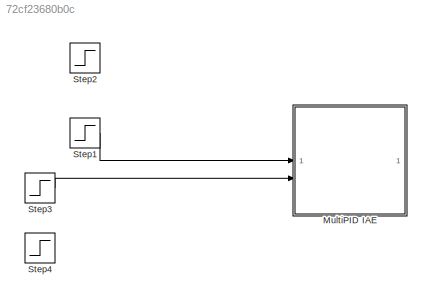
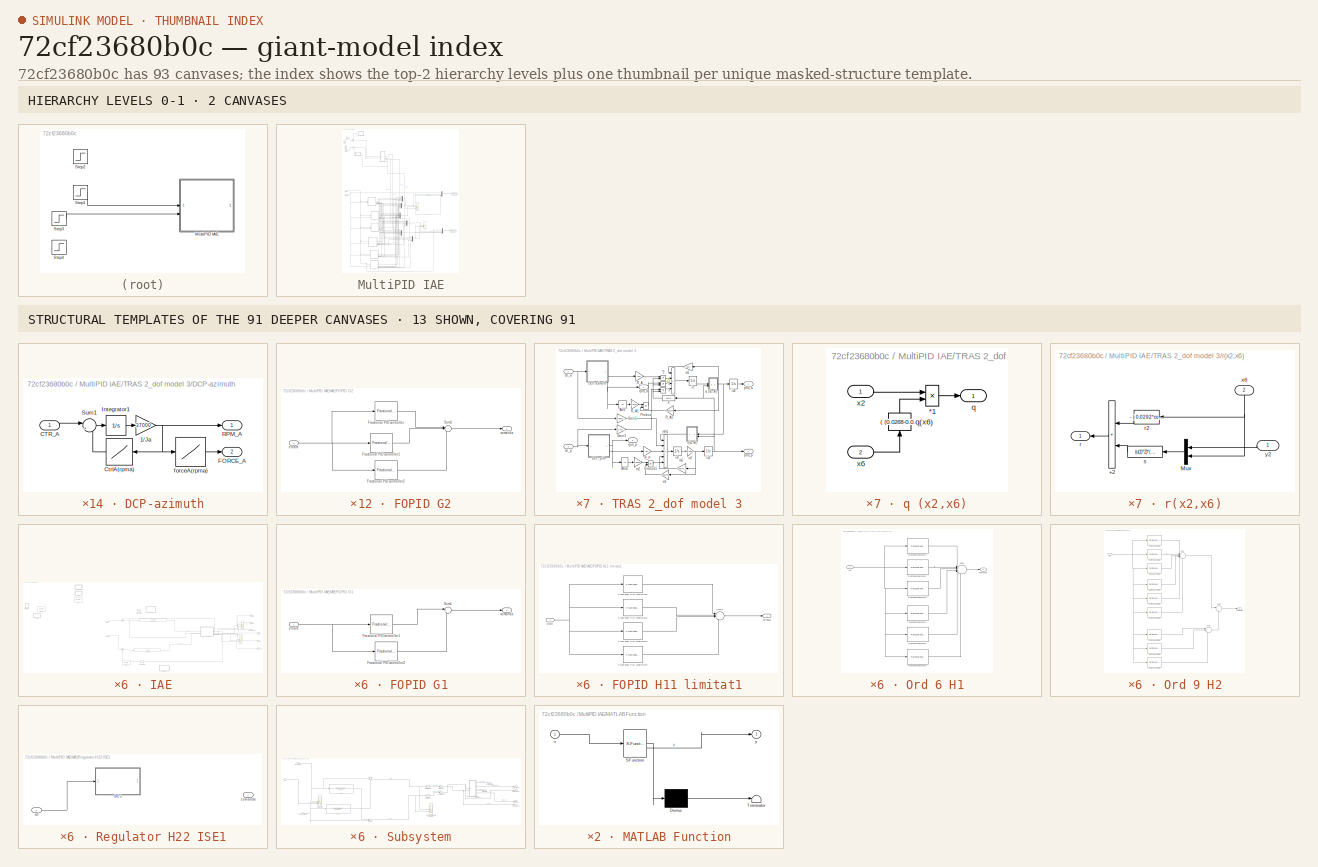
[diagram: thumbnail index - top-2 hierarchy levels (2 canvases) + 13 structural-template representatives of the remaining 91 canvases]
MODEL slx_72cf23680b0c
KIND model
CONFIG AbsTol = auto
CONFIG EnableMultiTasking = off
CONFIG FixedStep = auto
CONFIG MaxStep = auto
CONFIG MinStep = auto
CONFIG RelTol = 1e-3
CONFIG SampleTimeConstraint = Unconstrained
CONFIG SolverName = VariableStepAuto
CONFIG StartTime = 0.0
CONFIG StopTime = 0.9
BLOCK [SubSystem] MultiPID IAE
BLOCK [Scope] MultiPID IAE/AZIMUTH2
  Floating = off
  NumInputPorts = 3
  ScopeSpecificationString = Simulink.scopes.TimeScopeBlockCfg('CurrentConfiguration', extmgr.ConfigurationSet(extmgr.Configuration('Core','General UI',true),extmgr.Configuration('Core','Source UI',true),extmgr.Configuration('Sources','WiredSimulink',true,'DataLoggingSaveFormat','StructureWithTime','DataLoggingDecimation','1','DataLoggingDecimateData',true,'DataLoggingVariableName','ScopeData1'),extmgr.Configuration('Visuals'...<+3592ch>
BLOCK [SubSystem] MultiPID IAE/IAE
BLOCK [Scope] MultiPID IAE/IAE/AZIMUTH2
  Floating = off
  NumInputPorts = 3
  ScopeSpecificationString = Simulink.scopes.TimeScopeBlockCfg('CurrentConfiguration', extmgr.ConfigurationSet(extmgr.Configuration('Core','General UI',true),extmgr.Configuration('Core','Source UI',true),extmgr.Configuration('Sources','WiredSimulink',true,'DataLoggingSaveFormat','StructureWithTime','DataLoggingDecimation','1','DataLoggingDecimateData',true,'DataLoggingVariableName','ScopeData1'),extmgr.Configuration('Visuals'...<+3244ch>
BLOCK [SubSystem] MultiPID IAE/IAE/FOPID G1
  Commented = on
BLOCK [Reference] MultiPID IAE/IAE/FOPID G1/Fractional PID controller1  REF=fod/Fractional PID  (lib defined in slx_5cb2d42c7bef)
controller
  SourceBlock = fod/Fractional PID\ncontroller
  SourceProductName = FOMCON Toolbox
  SourceType = Fractional PID
BLOCK [Reference] MultiPID IAE/IAE/FOPID G1/Fractional PID controller2  REF=fod/Fractional PID  (lib defined in slx_5cb2d42c7bef)
controller
  SourceBlock = fod/Fractional PID\ncontroller
  SourceProductName = FOMCON Toolbox
  SourceType = Fractional PID
BLOCK [Sum] MultiPID IAE/IAE/FOPID G1/Sum1
  Inputs = |++
BLOCK [Outport] MultiPID IAE/IAE/FOPID G1/comanda
BLOCK [Inport] MultiPID IAE/IAE/FOPID G1/eroare
  NameLocation = left
BLOCK [SubSystem] MultiPID IAE/IAE/FOPID G2
  Commented = on
BLOCK [Reference] MultiPID IAE/IAE/FOPID G2/Fractional PID controller  REF=fod/Fractional PID  (lib defined in slx_5cb2d42c7bef)
controller
  SourceBlock = fod/Fractional PID\ncontroller
  SourceProductName = FOMCON Toolbox
  SourceType = Fractional PID
BLOCK [Reference] MultiPID IAE/IAE/FOPID G2/Fractional PID controller1  REF=fod/Fractional PID  (lib defined in slx_5cb2d42c7bef)
controller
  SourceBlock = fod/Fractional PID\ncontroller
  SourceProductName = FOMCON Toolbox
  SourceType = Fractional PID
BLOCK [Reference] MultiPID IAE/IAE/FOPID G2/Fractional PID controller2  REF=fod/Fractional PID  (lib defined in slx_5cb2d42c7bef)
controller
  SourceBlock = fod/Fractional PID\ncontroller
  SourceProductName = FOMCON Toolbox
  SourceType = Fractional PID
BLOCK [Sum] MultiPID IAE/IAE/FOPID G2/Sum1
  Inputs = |+++
BLOCK [Outport] MultiPID IAE/IAE/FOPID G2/comanda
BLOCK [Inport] MultiPID IAE/IAE/FOPID G2/eroare
  NameLocation = left
BLOCK [SubSystem] MultiPID IAE/IAE/FOPID H11 limitat1
  Commented = on
BLOCK [Reference] MultiPID IAE/IAE/FOPID H11 limitat1/Fractional PID controller1  REF=fod/Fractional PID  (lib defined in slx_5cb2d42c7bef)
controller
  SourceBlock = fod/Fractional PID\ncontroller
  SourceProductName = FOMCON Toolbox
  SourceType = Fractional PID
BLOCK [Reference] MultiPID IAE/IAE/FOPID H11 limitat1/Fractional PID controller2  REF=fod/Fractional PID  (lib defined in slx_5cb2d42c7bef)
controller
  SourceBlock = fod/Fractional PID\ncontroller
  SourceProductName = FOMCON Toolbox
  SourceType = Fractional PID
BLOCK [Reference] MultiPID IAE/IAE/FOPID H11 limitat1/Fractional PID controller3  REF=fod/Fractional PID  (lib defined in slx_5cb2d42c7bef)
controller
  SourceBlock = fod/Fractional PID\ncontroller
  SourceProductName = FOMCON Toolbox
  SourceType = Fractional PID
BLOCK [Reference] MultiPID IAE/IAE/FOPID H11 limitat1/Fractional PID controller4  REF=fod/Fractional PID  (lib defined in slx_5cb2d42c7bef)
controller
  SourceBlock = fod/Fractional PID\ncontroller
  SourceProductName = FOMCON Toolbox
  SourceType = Fractional PID
BLOCK [Sum] MultiPID IAE/IAE/FOPID H11 limitat1/Sum1
  Inputs = |++++
BLOCK [Outport] MultiPID IAE/IAE/FOPID H11 limitat1/comanda
BLOCK [Inport] MultiPID IAE/IAE/FOPID H11 limitat1/eroare
  NameLocation = left
BLOCK [Reference] MultiPID IAE/IAE/Fractional PID H1  REF=fod/Fractional PID  (lib defined in slx_5cb2d42c7bef)
controller
  SourceBlock = fod/Fractional PID\ncontroller
  SourceProductName = FOMCON Toolbox
  SourceType = Fractional PID
BLOCK [Reference] MultiPID IAE/IAE/Fractional PID H2  REF=fod/Fractional PID  (lib defined in slx_5cb2d42c7bef)
controller
  SourceBlock = fod/Fractional PID\ncontroller
  SourceProductName = FOMCON Toolbox
  SourceType = Fractional PID
BLOCK [Reference] MultiPID IAE/IAE/LTI System1  REF=cstblocks/LTI System
  SourceBlock = cstblocks/LTI System
  SourceType = LTI Block
BLOCK [Reference] MultiPID IAE/IAE/LTI System3  REF=cstblocks/LTI System
  SourceBlock = cstblocks/LTI System
  SourceType = LTI Block
BLOCK [SubSystem] MultiPID IAE/IAE/Ord 6 H1
  Commented = on
BLOCK [Reference] MultiPID IAE/IAE/Ord 6 H1/Fractional operator1  REF=fod/Fractional  (lib defined in slx_5cb2d42c7bef)
operator
  SourceBlock = fod/Fractional\noperator
  SourceProductName = FOMCON Toolbox
  SourceType = Fractional operator
  Tag = Fractional operator
BLOCK [Reference] MultiPID IAE/IAE/Ord 6 H1/Fractional operator2  REF=fod/Fractional  (lib defined in slx_5cb2d42c7bef)
operator
  SourceBlock = fod/Fractional\noperator
  SourceProductName = FOMCON Toolbox
  SourceType = Fractional operator
  Tag = Fractional operator
BLOCK [Reference] MultiPID IAE/IAE/Ord 6 H1/Fractional operator3  REF=fod/Fractional  (lib defined in slx_5cb2d42c7bef)
operator
  SourceBlock = fod/Fractional\noperator
  SourceProductName = FOMCON Toolbox
  SourceType = Fractional operator
  Tag = Fractional operator
BLOCK [Reference] MultiPID IAE/IAE/Ord 6 H1/Fractional operator4  REF=fod/Fractional  (lib defined in slx_5cb2d42c7bef)
operator
  SourceBlock = fod/Fractional\noperator
  SourceProductName = FOMCON Toolbox
  SourceType = Fractional operator
  Tag = Fractional operator
BLOCK [Reference] MultiPID IAE/IAE/Ord 6 H1/Fractional operator5  REF=fod/Fractional  (lib defined in slx_5cb2d42c7bef)
operator
  SourceBlock = fod/Fractional\noperator
  SourceProductName = FOMCON Toolbox
  SourceType = Fractional operator
  Tag = Fractional operator
BLOCK [Reference] MultiPID IAE/IAE/Ord 6 H1/Fractional operator6  REF=fod/Fractional  (lib defined in slx_5cb2d42c7bef)
operator
  SourceBlock = fod/Fractional\noperator
  SourceProductName = FOMCON Toolbox
  SourceType = Fractional operator
  Tag = Fractional operator
BLOCK [Sum] MultiPID IAE/IAE/Ord 6 H1/Sum
  Inputs = |++++++
BLOCK [Outport] MultiPID IAE/IAE/Ord 6 H1/comanda
BLOCK [Inport] MultiPID IAE/IAE/Ord 6 H1/ref
BLOCK [SubSystem] MultiPID IAE/IAE/Ord 9 H2
  Commented = on
BLOCK [Reference] MultiPID IAE/IAE/Ord 9 H2/Fractional operator1  REF=fod/Fractional  (lib defined in slx_5cb2d42c7bef)
operator
  SourceBlock = fod/Fractional\noperator
  SourceProductName = FOMCON Toolbox
  SourceType = Fractional operator
  Tag = Fractional operator
BLOCK [Reference] MultiPID IAE/IAE/Ord 9 H2/Fractional operator2  REF=fod/Fractional  (lib defined in slx_5cb2d42c7bef)
operator
  SourceBlock = fod/Fractional\noperator
  SourceProductName = FOMCON Toolbox
  SourceType = Fractional operator
  Tag = Fractional operator
BLOCK [Reference] MultiPID IAE/IAE/Ord 9 H2/Fractional operator3  REF=fod/Fractional  (lib defined in slx_5cb2d42c7bef)
operator
  SourceBlock = fod/Fractional\noperator
  SourceProductName = FOMCON Toolbox
  SourceType = Fractional operator
  Tag = Fractional operator
BLOCK [Reference] MultiPID IAE/IAE/Ord 9 H2/Fractional operator4  REF=fod/Fractional  (lib defined in slx_5cb2d42c7bef)
operator
  SourceBlock = fod/Fractional\noperator
  SourceProductName = FOMCON Toolbox
  SourceType = Fractional operator
  Tag = Fractional operator
BLOCK [Reference] MultiPID IAE/IAE/Ord 9 H2/Fractional operator5  REF=fod/Fractional  (lib defined in slx_5cb2d42c7bef)
operator
  SourceBlock = fod/Fractional\noperator
  SourceProductName = FOMCON Toolbox
  SourceType = Fractional operator
  Tag = Fractional operator
BLOCK [Reference] MultiPID IAE/IAE/Ord 9 H2/Fractional operator6  REF=fod/Fractional  (lib defined in slx_5cb2d42c7bef)
operator
  SourceBlock = fod/Fractional\noperator
  SourceProductName = FOMCON Toolbox
  SourceType = Fractional operator
  Tag = Fractional operator
BLOCK [Reference] MultiPID IAE/IAE/Ord 9 H2/Fractional operator7  REF=fod/Fractional  (lib defined in slx_5cb2d42c7bef)
operator
  SourceBlock = fod/Fractional\noperator
  SourceProductName = FOMCON Toolbox
  SourceType = Fractional operator
  Tag = Fractional operator
BLOCK [Reference] MultiPID IAE/IAE/Ord 9 H2/Fractional operator8  REF=fod/Fractional  (lib defined in slx_5cb2d42c7bef)
operator
  SourceBlock = fod/Fractional\noperator
  SourceProductName = FOMCON Toolbox
  SourceType = Fractional operator
  Tag = Fractional operator
BLOCK [Reference] MultiPID IAE/IAE/Ord 9 H2/Fractional operator9  REF=fod/Fractional  (lib defined in slx_5cb2d42c7bef)
operator
  SourceBlock = fod/Fractional\noperator
  SourceProductName = FOMCON Toolbox
  SourceType = Fractional operator
  Tag = Fractional operator
BLOCK [Sum] MultiPID IAE/IAE/Ord 9 H2/Sum
  Inputs = |++++++
BLOCK [Sum] MultiPID IAE/IAE/Ord 9 H2/Sum1
  Inputs = |+++
BLOCK [Sum] MultiPID IAE/IAE/Ord 9 H2/Sum2
  Inputs = |++
BLOCK [Outport] MultiPID IAE/IAE/Ord 9 H2/comanda
BLOCK [Inport] MultiPID IAE/IAE/Ord 9 H2/ref
BLOCK [Reference] MultiPID IAE/IAE/PID H1  REF=slpidlib/PID Controller
  Commented = on
  LibrarySourceBlock = simulink/Continuous/PID Controller
  SourceBlock = slpidlib/PID Controller
  SourceType = PID 1dof
BLOCK [Reference] MultiPID IAE/IAE/PID H2  REF=slpidlib/PID Controller
  Commented = on
  LibrarySourceBlock = simulink/Continuous/PID Controller
  SourceBlock = slpidlib/PID Controller
  SourceType = PID 1dof
BLOCK [Reference] MultiPID IAE/IAE/PID H3  REF=slpidlib/PID Controller
  Commented = on
  LibrarySourceBlock = simulink/Continuous/PID Controller
  SourceBlock = slpidlib/PID Controller
  SourceType = PID 1dof
BLOCK [Scope] MultiPID IAE/IAE/PITCH2
  Floating = off
  NumInputPorts = 3
  ScopeSpecificationString = Simulink.scopes.TimeScopeBlockCfg('CurrentConfiguration', extmgr.ConfigurationSet(extmgr.Configuration('Core','General UI',true),extmgr.Configuration('Core','Source UI',true),extmgr.Configuration('Sources','WiredSimulink',true,'DataLoggingVariableName','ScopeData2','DataLoggingSaveFormat','StructureWithTime','DataLoggingDecimation','1','DataLoggingDecimateData',true),extmgr.Configuration('Visuals'...<+3250ch>
BLOCK [SubSystem] MultiPID IAE/IAE/Regulator H22 ISE1
  Commented = on
BLOCK [SubSystem] MultiPID IAE/IAE/Regulator H22 ISE1/Ord 3
BLOCK [Reference] MultiPID IAE/IAE/Regulator H22 ISE1/Ord 3/Fractional operator1  REF=fod/Fractional  (lib defined in slx_5cb2d42c7bef)
operator
  SourceBlock = fod/Fractional\noperator
  SourceProductName = FOMCON Toolbox
  SourceType = Fractional operator
  Tag = Fractional operator
BLOCK [Reference] MultiPID IAE/IAE/Regulator H22 ISE1/Ord 3/Fractional operator2  REF=fod/Fractional  (lib defined in slx_5cb2d42c7bef)
operator
  SourceBlock = fod/Fractional\noperator
  SourceProductName = FOMCON Toolbox
  SourceType = Fractional operator
  Tag = Fractional operator
BLOCK [Reference] MultiPID IAE/IAE/Regulator H22 ISE1/Ord 3/Fractional operator3  REF=fod/Fractional  (lib defined in slx_5cb2d42c7bef)
operator
  SourceBlock = fod/Fractional\noperator
  SourceProductName = FOMCON Toolbox
  SourceType = Fractional operator
  Tag = Fractional operator
BLOCK [Sum] MultiPID IAE/IAE/Regulator H22 ISE1/Ord 3/Sum
  Inputs = +|++
BLOCK [Outport] MultiPID IAE/IAE/Regulator H22 ISE1/Ord 3/comanda
BLOCK [Inport] MultiPID IAE/IAE/Regulator H22 ISE1/Ord 3/ref
BLOCK [Outport] MultiPID IAE/IAE/Regulator H22 ISE1/comanda
BLOCK [Inport] MultiPID IAE/IAE/Regulator H22 ISE1/ref
BLOCK [SubSystem] MultiPID IAE/IAE/Subsystem
BLOCK [Gain] MultiPID IAE/IAE/Subsystem/Azimuth H22
BLOCK [Scope] MultiPID IAE/IAE/Subsystem/Comanda
  Floating = off
  NumInputPorts = 3
  ScopeSpecificationString = Simulink.scopes.TimeScopeBlockCfg('CurrentConfiguration', extmgr.ConfigurationSet(extmgr.Configuration('Core','General UI',true),extmgr.Configuration('Core','Source UI',true),extmgr.Configuration('Sources','WiredSimulink',true,'DataLoggingSaveFormat','StructureWithTime','DataLoggingLimitDataPoints',true,'DataLoggingDecimation','1','DataLoggingDecimateData',true,'DataLoggingVariableName','ScopeData...<+3394ch>  <repeated x6 — deduplicated; at blocks: Comanda>
BLOCK [Scope] MultiPID IAE/IAE/Subsystem/Comanda Iesire regulator
  Floating = off
  NumInputPorts = 2
  ScopeSpecificationString = Simulink.scopes.TimeScopeBlockCfg('CurrentConfiguration', extmgr.ConfigurationSet(extmgr.Configuration('Core','General UI',true),extmgr.Configuration('Core','Source UI',true),extmgr.Configuration('Sources','WiredSimulink',true,'DataLoggingSaveFormat','StructureWithTime','DataLoggingLimitDataPoints',true,'DataLoggingDecimation','1','DataLoggingDecimateData',true,'DataLoggingVariableName','ScopeData...<+3298ch>  <repeated x6 — deduplicated; at blocks: Comanda Iesire regulator>
BLOCK [Outport] MultiPID IAE/IAE/Subsystem/Comanda1
  Port = 4
BLOCK [Outport] MultiPID IAE/IAE/Subsystem/Comanda2
  Port = 6
BLOCK [TransferFcn] MultiPID IAE/IAE/Subsystem/D12
  Denominator = [1 1.322]
  Numerator = [0.0019343*1 0.0019343*1.287]
BLOCK [TransferFcn] MultiPID IAE/IAE/Subsystem/D21
  Denominator = [1 5.675]
  Numerator = [0.0014712*1    0.0014712*3.527]
BLOCK [Inport] MultiPID IAE/IAE/Subsystem/In2
  Port = 2
BLOCK [Gain] MultiPID IAE/IAE/Subsystem/Pitch H11
BLOCK [Inport] MultiPID IAE/IAE/Subsystem/Reg_azimuth
  Port = 3
BLOCK [Inport] MultiPID IAE/IAE/Subsystem/Reg_pitch
BLOCK [Saturate] MultiPID IAE/IAE/Subsystem/Saturation5
  LowerLimit = -1
  RndMeth = Ceiling
  UpperLimit = 1
BLOCK [Saturate] MultiPID IAE/IAE/Subsystem/Saturation6
  LowerLimit = -1
  RndMeth = Ceiling
  UpperLimit = 1
BLOCK [Sum] MultiPID IAE/IAE/Subsystem/Sum14
  Inputs = |++
BLOCK [Sum] MultiPID IAE/IAE/Subsystem/Sum16
  Inputs = |++
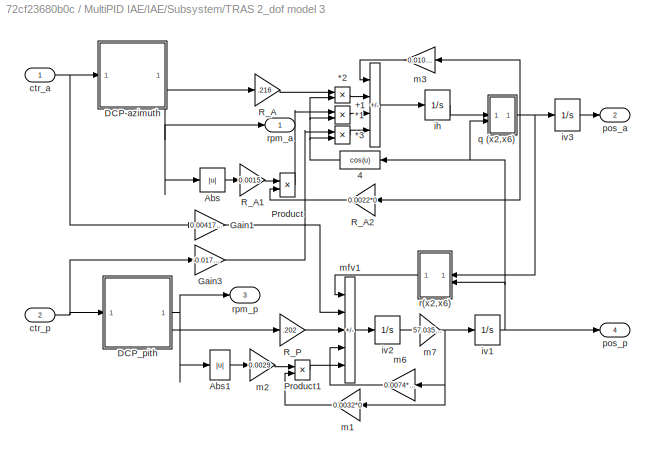
BLOCK [SubSystem] MultiPID IAE/IAE/Subsystem/TRAS 2_dof model 3
  NameLocation = top
BLOCK [Product] MultiPID IAE/IAE/Subsystem/TRAS 2_dof model 3/*1
  InputSameDT = on
  OutDataTypeStr = Inherit: Same as first input
  SaturateOnIntegerOverflow = on
BLOCK [Product] MultiPID IAE/IAE/Subsystem/TRAS 2_dof model 3/*2
  InputSameDT = on
  OutDataTypeStr = Inherit: Same as first input
  SaturateOnIntegerOverflow = on
BLOCK [Product] MultiPID IAE/IAE/Subsystem/TRAS 2_dof model 3/*3
  InputSameDT = on
  OutDataTypeStr = Inherit: Same as first input
  SaturateOnIntegerOverflow = on
BLOCK [Sum] MultiPID IAE/IAE/Subsystem/TRAS 2_dof model 3/+1
  IconShape = rectangular
  InputSameDT = on
  Inputs = -+--
  NameLocation = top
  OutDataTypeStr = Inherit: Same as first input
  SaturateOnIntegerOverflow = on
BLOCK [Fcn] MultiPID IAE/IAE/Subsystem/TRAS 2_dof model 3/4
  Expr = cos(u)
  NameLocation = top
BLOCK [Abs] MultiPID IAE/IAE/Subsystem/TRAS 2_dof model 3/Abs
BLOCK [Abs] MultiPID IAE/IAE/Subsystem/TRAS 2_dof model 3/Abs1
BLOCK [SubSystem] MultiPID IAE/IAE/Subsystem/TRAS 2_dof model 3/DCP-azimuth
  NameLocation = top
BLOCK [Gain] MultiPID IAE/IAE/Subsystem/TRAS 2_dof model 3/DCP-azimuth/1//Ja
  Gain = 37000
  OutDataTypeStr = Inherit: Same as input
  ParamDataTypeStr = Inherit: Same as input
  SaturateOnIntegerOverflow = on
BLOCK [Inport] MultiPID IAE/IAE/Subsystem/TRAS 2_dof model 3/DCP-azimuth/CTR_A
BLOCK [Lookup] MultiPID IAE/IAE/Subsystem/TRAS 2_dof model 3/DCP-azimuth/CtrlA(rpma)
  InputValues = rpm_a
  Table = control_a
BLOCK [Outport] MultiPID IAE/IAE/Subsystem/TRAS 2_dof model 3/DCP-azimuth/FORCE_A
  Port = 2
BLOCK [Integrator] MultiPID IAE/IAE/Subsystem/TRAS 2_dof model 3/DCP-azimuth/Integrator1
BLOCK [Outport] MultiPID IAE/IAE/Subsystem/TRAS 2_dof model 3/DCP-azimuth/RPM_A
BLOCK [Sum] MultiPID IAE/IAE/Subsystem/TRAS 2_dof model 3/DCP-azimuth/Sum1
  InputSameDT = on
  Inputs = |+-
  OutDataTypeStr = Inherit: Same as first input
  SaturateOnIntegerOverflow = on
BLOCK [Lookup] MultiPID IAE/IAE/Subsystem/TRAS 2_dof model 3/DCP-azimuth/forceA(rpma)
  InputValues = rpm_a
  NameLocation = top
  Table = force_a
BLOCK [SubSystem] MultiPID IAE/IAE/Subsystem/TRAS 2_dof model 3/DCP_pith
BLOCK [Gain] MultiPID IAE/IAE/Subsystem/TRAS 2_dof model 3/DCP_pith/1//Jp1
  Gain = 6100
  OutDataTypeStr = Inherit: Same as input
  ParamDataTypeStr = Inherit: Same as input
BLOCK [Inport] MultiPID IAE/IAE/Subsystem/TRAS 2_dof model 3/DCP_pith/CTR_P
BLOCK [Lookup] MultiPID IAE/IAE/Subsystem/TRAS 2_dof model 3/DCP_pith/CtrlP(rpmp)
  InputValues = rpm_p
  Table = control_p
BLOCK [Outport] MultiPID IAE/IAE/Subsystem/TRAS 2_dof model 3/DCP_pith/FORCE_P
  Port = 2
BLOCK [Integrator] MultiPID IAE/IAE/Subsystem/TRAS 2_dof model 3/DCP_pith/Integrator
BLOCK [Outport] MultiPID IAE/IAE/Subsystem/TRAS 2_dof model 3/DCP_pith/RPM_P
BLOCK [Sum] MultiPID IAE/IAE/Subsystem/TRAS 2_dof model 3/DCP_pith/Sum
  InputSameDT = on
  Inputs = |+-
  OutDataTypeStr = Inherit: Same as first input
  SaturateOnIntegerOverflow = on
BLOCK [Lookup] MultiPID IAE/IAE/Subsystem/TRAS 2_dof model 3/DCP_pith/force(rpmp)
  InputValues = rpm_p
  NameLocation = top
  Table = force_p
BLOCK [Gain] MultiPID IAE/IAE/Subsystem/TRAS 2_dof model 3/Gain1
  Gain = 0.00417495398545
  NameLocation = top
  OutDataTypeStr = Inherit: Same as input
  ParamDataTypeStr = Inherit: Same as input
  SaturateOnIntegerOverflow = on
BLOCK [Gain] MultiPID IAE/IAE/Subsystem/TRAS 2_dof model 3/Gain3
  Gain = -0.01782003784180
  NameLocation = top
  OutDataTypeStr = Inherit: Same as input
  ParamDataTypeStr = Inherit: Same as input
  SaturateOnIntegerOverflow = on
BLOCK [Product] MultiPID IAE/IAE/Subsystem/TRAS 2_dof model 3/Product
  InputSameDT = on
  OutDataTypeStr = Inherit: Same as first input
  SaturateOnIntegerOverflow = on
BLOCK [Product] MultiPID IAE/IAE/Subsystem/TRAS 2_dof model 3/Product1
  OutDataTypeStr = Inherit: Same as first input
  SaturateOnIntegerOverflow = on
BLOCK [Gain] MultiPID IAE/IAE/Subsystem/TRAS 2_dof model 3/R_A
  Gain = .216
  NameLocation = top
  OutDataTypeStr = Inherit: Same as input
  ParamDataTypeStr = Inherit: Same as input
BLOCK [Gain] MultiPID IAE/IAE/Subsystem/TRAS 2_dof model 3/R_A1
  Gain = 0.0015
  NameLocation = top
  OutDataTypeStr = Inherit: Same as input
  ParamDataTypeStr = Inherit: Same as input
BLOCK [Gain] MultiPID IAE/IAE/Subsystem/TRAS 2_dof model 3/R_A2
  Gain = 0.0022*0
  NameLocation = top
  OutDataTypeStr = Inherit: Same as input
  ParamDataTypeStr = Inherit: Same as input
BLOCK [Gain] MultiPID IAE/IAE/Subsystem/TRAS 2_dof model 3/R_P
  Gain = .202
  OutDataTypeStr = Inherit: Same as input
  ParamDataTypeStr = Inherit: Same as input
BLOCK [Inport] MultiPID IAE/IAE/Subsystem/TRAS 2_dof model 3/ctr_a
BLOCK [Inport] MultiPID IAE/IAE/Subsystem/TRAS 2_dof model 3/ctr_p
  Port = 2
BLOCK [Integrator] MultiPID IAE/IAE/Subsystem/TRAS 2_dof model 3/ih
  LowerSaturationLimit = -10
  UpperSaturationLimit = 10
BLOCK [Integrator] MultiPID IAE/IAE/Subsystem/TRAS 2_dof model 3/iv1
  LimitOutput = on
  LowerSaturationLimit = -pi/2
  NameLocation = top
  UpperSaturationLimit = pi/2
BLOCK [Integrator] MultiPID IAE/IAE/Subsystem/TRAS 2_dof model 3/iv2
  LowerSaturationLimit = -pi
  NameLocation = top
  UpperSaturationLimit = pi
BLOCK [Integrator] MultiPID IAE/IAE/Subsystem/TRAS 2_dof model 3/iv3
  LimitOutput = on
  LowerSaturationLimit = -6
  NameLocation = top
  UpperSaturationLimit = 6
BLOCK [Gain] MultiPID IAE/IAE/Subsystem/TRAS 2_dof model 3/m1
  Gain = 0.0032*0
  NameLocation = top
  OutDataTypeStr = Inherit: Same as input
  ParamDataTypeStr = Inherit: Same as input
  SaturateOnIntegerOverflow = on
BLOCK [Gain] MultiPID IAE/IAE/Subsystem/TRAS 2_dof model 3/m2
  Gain = 0.0029
  NameLocation = top
  OutDataTypeStr = Inherit: Same as input
  ParamDataTypeStr = Inherit: Same as input
  SaturateOnIntegerOverflow = on
BLOCK [Gain] MultiPID IAE/IAE/Subsystem/TRAS 2_dof model 3/m3
  Gain = 0.0108*0.4935*1.1051
  NameLocation = top
  OutDataTypeStr = Inherit: Same as input
  ParamDataTypeStr = Inherit: Same as input
BLOCK [Gain] MultiPID IAE/IAE/Subsystem/TRAS 2_dof model 3/m6
  Gain = 0.0074*1.7175
  OutDataTypeStr = Inherit: Same as input
  ParamDataTypeStr = Inherit: Same as input
BLOCK [Gain] MultiPID IAE/IAE/Subsystem/TRAS 2_dof model 3/m7
  Gain = 57.0357*0.5833
  NameLocation = top
  OutDataTypeStr = Inherit: Same as input
  ParamDataTypeStr = Inherit: Same as input
  SaturateOnIntegerOverflow = on
BLOCK [Sum] MultiPID IAE/IAE/Subsystem/TRAS 2_dof model 3/mfv1
  IconShape = rectangular
  InputSameDT = on
  Inputs = +++--
  NameLocation = top
  OutDataTypeStr = Inherit: Same as first input
  SaturateOnIntegerOverflow = on
BLOCK [Outport] MultiPID IAE/IAE/Subsystem/TRAS 2_dof model 3/pos_a
  Port = 2
BLOCK [Outport] MultiPID IAE/IAE/Subsystem/TRAS 2_dof model 3/pos_p
  Port = 4
BLOCK [SubSystem] MultiPID IAE/IAE/Subsystem/TRAS 2_dof model 3/q (x2,x6)
BLOCK [Fcn] MultiPID IAE/IAE/Subsystem/TRAS 2_dof model 3/q (x2,x6)/ q(x6)
  Expr = ( (0.0268-0.00300962066650)*cos(u)^2) +0.00300962066650
  NameLocation = left
BLOCK [Product] MultiPID IAE/IAE/Subsystem/TRAS 2_dof model 3/q (x2,x6)/*1
  InputSameDT = on
  Inputs = */
  OutDataTypeStr = Inherit: Same as first input
  SaturateOnIntegerOverflow = on
BLOCK [Outport] MultiPID IAE/IAE/Subsystem/TRAS 2_dof model 3/q (x2,x6)/q
BLOCK [Inport] MultiPID IAE/IAE/Subsystem/TRAS 2_dof model 3/q (x2,x6)/x2
BLOCK [Inport] MultiPID IAE/IAE/Subsystem/TRAS 2_dof model 3/q (x2,x6)/x6
  Port = 2
BLOCK [SubSystem] MultiPID IAE/IAE/Subsystem/TRAS 2_dof model 3/r(x2,x6)
BLOCK [Sum] MultiPID IAE/IAE/Subsystem/TRAS 2_dof model 3/r(x2,x6)/+2
  IconShape = rectangular
  InputSameDT = on
  OutDataTypeStr = Inherit: Same as first input
  SaturateOnIntegerOverflow = on
BLOCK [Mux] MultiPID IAE/IAE/Subsystem/TRAS 2_dof model 3/r(x2,x6)/Mux
  DisplayOption = bar
  Inputs = 2
  NameLocation = top
BLOCK [Outport] MultiPID IAE/IAE/Subsystem/TRAS 2_dof model 3/r(x2,x6)/r
BLOCK [Fcn] MultiPID IAE/IAE/Subsystem/TRAS 2_dof model 3/r(x2,x6)/r2
  Expr = - ( 0.0292*cos(u)+ 0.0546*sin(u))*1.7143
BLOCK [Fcn] MultiPID IAE/IAE/Subsystem/TRAS 2_dof model 3/r(x2,x6)/s
  Expr = (u(1)^2)*(     -0.07389953104162*  0.28753198180218*sin(u(2))*cos(u(2)))
BLOCK [Inport] MultiPID IAE/IAE/Subsystem/TRAS 2_dof model 3/r(x2,x6)/x6
  NameLocation = right
  Port = 2
BLOCK [Inport] MultiPID IAE/IAE/Subsystem/TRAS 2_dof model 3/r(x2,x6)/y2
BLOCK [Outport] MultiPID IAE/IAE/Subsystem/TRAS 2_dof model 3/rpm_a
BLOCK [Outport] MultiPID IAE/IAE/Subsystem/TRAS 2_dof model 3/rpm_p
  Port = 3
BLOCK [Outport] MultiPID IAE/IAE/Subsystem/azimuth pos
  Port = 2
BLOCK [Outport] MultiPID IAE/IAE/Subsystem/azimuth rpm
BLOCK [Outport] MultiPID IAE/IAE/Subsystem/pitch pos
  Port = 5
BLOCK [Outport] MultiPID IAE/IAE/Subsystem/pitch rpm
  Port = 3
BLOCK [Sum] MultiPID IAE/IAE/Sum15
  Inputs = |+-
BLOCK [Sum] MultiPID IAE/IAE/Sum17
  Inputs = -+|
BLOCK [Outport] MultiPID IAE/IAE/azimuth pos
  Port = 2
BLOCK [Outport] MultiPID IAE/IAE/azimuth rpm
BLOCK [Outport] MultiPID IAE/IAE/comanda azimuth
  Port = 3
BLOCK [Outport] MultiPID IAE/IAE/comanda pitch
  Port = 6
BLOCK [Outport] MultiPID IAE/IAE/pitch pos
  Port = 5
BLOCK [Outport] MultiPID IAE/IAE/pitch rpm
  Port = 4
BLOCK [Inport] MultiPID IAE/IAE/ref azimuth
  Port = 2
BLOCK [Inport] MultiPID IAE/IAE/ref pitch
BLOCK [SubSystem] MultiPID IAE/IAE1
BLOCK [Scope] MultiPID IAE/IAE1/AZIMUTH2
  Floating = off
  NumInputPorts = 3
  ScopeSpecificationString = Simulink.scopes.TimeScopeBlockCfg('CurrentConfiguration', extmgr.ConfigurationSet(extmgr.Configuration('Core','General UI',true),extmgr.Configuration('Core','Source UI',true),extmgr.Configuration('Sources','WiredSimulink',true,'DataLoggingSaveFormat','StructureWithTime','DataLoggingDecimation','1','DataLoggingDecimateData',true,'DataLoggingVariableName','ScopeData1'),extmgr.Configuration('Visuals'...<+3258ch>
BLOCK [SubSystem] MultiPID IAE/IAE1/FOPID G1
  Commented = on
BLOCK [Reference] MultiPID IAE/IAE1/FOPID G1/Fractional PID controller1  REF=fod/Fractional PID  (lib defined in slx_5cb2d42c7bef)
controller
  SourceBlock = fod/Fractional PID\ncontroller
  SourceProductName = FOMCON Toolbox
  SourceType = Fractional PID
BLOCK [Reference] MultiPID IAE/IAE1/FOPID G1/Fractional PID controller2  REF=fod/Fractional PID  (lib defined in slx_5cb2d42c7bef)
controller
  SourceBlock = fod/Fractional PID\ncontroller
  SourceProductName = FOMCON Toolbox
  SourceType = Fractional PID
BLOCK [Sum] MultiPID IAE/IAE1/FOPID G1/Sum1
  Inputs = |++
BLOCK [Outport] MultiPID IAE/IAE1/FOPID G1/comanda
BLOCK [Inport] MultiPID IAE/IAE1/FOPID G1/eroare
  NameLocation = left
BLOCK [SubSystem] MultiPID IAE/IAE1/FOPID G2
  Commented = on
BLOCK [Reference] MultiPID IAE/IAE1/FOPID G2/Fractional PID controller  REF=fod/Fractional PID  (lib defined in slx_5cb2d42c7bef)
controller
  SourceBlock = fod/Fractional PID\ncontroller
  SourceProductName = FOMCON Toolbox
  SourceType = Fractional PID
BLOCK [Reference] MultiPID IAE/IAE1/FOPID G2/Fractional PID controller1  REF=fod/Fractional PID  (lib defined in slx_5cb2d42c7bef)
controller
  SourceBlock = fod/Fractional PID\ncontroller
  SourceProductName = FOMCON Toolbox
  SourceType = Fractional PID
BLOCK [Reference] MultiPID IAE/IAE1/FOPID G2/Fractional PID controller2  REF=fod/Fractional PID  (lib defined in slx_5cb2d42c7bef)
controller
  SourceBlock = fod/Fractional PID\ncontroller
  SourceProductName = FOMCON Toolbox
  SourceType = Fractional PID
BLOCK [Sum] MultiPID IAE/IAE1/FOPID G2/Sum1
  Inputs = |+++
BLOCK [Outport] MultiPID IAE/IAE1/FOPID G2/comanda
BLOCK [Inport] MultiPID IAE/IAE1/FOPID G2/eroare
  NameLocation = left
BLOCK [SubSystem] MultiPID IAE/IAE1/FOPID H11 limitat1
  Commented = on
BLOCK [Reference] MultiPID IAE/IAE1/FOPID H11 limitat1/Fractional PID controller1  REF=fod/Fractional PID  (lib defined in slx_5cb2d42c7bef)
controller
  SourceBlock = fod/Fractional PID\ncontroller
  SourceProductName = FOMCON Toolbox
  SourceType = Fractional PID
BLOCK [Reference] MultiPID IAE/IAE1/FOPID H11 limitat1/Fractional PID controller2  REF=fod/Fractional PID  (lib defined in slx_5cb2d42c7bef)
controller
  SourceBlock = fod/Fractional PID\ncontroller
  SourceProductName = FOMCON Toolbox
  SourceType = Fractional PID
BLOCK [Reference] MultiPID IAE/IAE1/FOPID H11 limitat1/Fractional PID controller3  REF=fod/Fractional PID  (lib defined in slx_5cb2d42c7bef)
controller
  SourceBlock = fod/Fractional PID\ncontroller
  SourceProductName = FOMCON Toolbox
  SourceType = Fractional PID
BLOCK [Reference] MultiPID IAE/IAE1/FOPID H11 limitat1/Fractional PID controller4  REF=fod/Fractional PID  (lib defined in slx_5cb2d42c7bef)
controller
  SourceBlock = fod/Fractional PID\ncontroller
  SourceProductName = FOMCON Toolbox
  SourceType = Fractional PID
BLOCK [Sum] MultiPID IAE/IAE1/FOPID H11 limitat1/Sum1
  Inputs = |++++
BLOCK [Outport] MultiPID IAE/IAE1/FOPID H11 limitat1/comanda
BLOCK [Inport] MultiPID IAE/IAE1/FOPID H11 limitat1/eroare
  NameLocation = left
BLOCK [Reference] MultiPID IAE/IAE1/Fractional PID H1  REF=fod/Fractional PID  (lib defined in slx_5cb2d42c7bef)
controller
  SourceBlock = fod/Fractional PID\ncontroller
  SourceProductName = FOMCON Toolbox
  SourceType = Fractional PID
BLOCK [Reference] MultiPID IAE/IAE1/Fractional PID H2  REF=fod/Fractional PID  (lib defined in slx_5cb2d42c7bef)
controller
  SourceBlock = fod/Fractional PID\ncontroller
  SourceProductName = FOMCON Toolbox
  SourceType = Fractional PID
BLOCK [Reference] MultiPID IAE/IAE1/LTI System1  REF=cstblocks/LTI System
  SourceBlock = cstblocks/LTI System
  SourceType = LTI Block
BLOCK [Reference] MultiPID IAE/IAE1/LTI System3  REF=cstblocks/LTI System
  SourceBlock = cstblocks/LTI System
  SourceType = LTI Block
BLOCK [SubSystem] MultiPID IAE/IAE1/Ord 6 H1
  Commented = on
BLOCK [Reference] MultiPID IAE/IAE1/Ord 6 H1/Fractional operator1  REF=fod/Fractional  (lib defined in slx_5cb2d42c7bef)
operator
  SourceBlock = fod/Fractional\noperator
  SourceProductName = FOMCON Toolbox
  SourceType = Fractional operator
  Tag = Fractional operator
BLOCK [Reference] MultiPID IAE/IAE1/Ord 6 H1/Fractional operator2  REF=fod/Fractional  (lib defined in slx_5cb2d42c7bef)
operator
  SourceBlock = fod/Fractional\noperator
  SourceProductName = FOMCON Toolbox
  SourceType = Fractional operator
  Tag = Fractional operator
BLOCK [Reference] MultiPID IAE/IAE1/Ord 6 H1/Fractional operator3  REF=fod/Fractional  (lib defined in slx_5cb2d42c7bef)
operator
  SourceBlock = fod/Fractional\noperator
  SourceProductName = FOMCON Toolbox
  SourceType = Fractional operator
  Tag = Fractional operator
BLOCK [Reference] MultiPID IAE/IAE1/Ord 6 H1/Fractional operator4  REF=fod/Fractional  (lib defined in slx_5cb2d42c7bef)
operator
  SourceBlock = fod/Fractional\noperator
  SourceProductName = FOMCON Toolbox
  SourceType = Fractional operator
  Tag = Fractional operator
BLOCK [Reference] MultiPID IAE/IAE1/Ord 6 H1/Fractional operator5  REF=fod/Fractional  (lib defined in slx_5cb2d42c7bef)
operator
  SourceBlock = fod/Fractional\noperator
  SourceProductName = FOMCON Toolbox
  SourceType = Fractional operator
  Tag = Fractional operator
BLOCK [Reference] MultiPID IAE/IAE1/Ord 6 H1/Fractional operator6  REF=fod/Fractional  (lib defined in slx_5cb2d42c7bef)
operator
  SourceBlock = fod/Fractional\noperator
  SourceProductName = FOMCON Toolbox
  SourceType = Fractional operator
  Tag = Fractional operator
BLOCK [Sum] MultiPID IAE/IAE1/Ord 6 H1/Sum
  Inputs = |++++++
BLOCK [Outport] MultiPID IAE/IAE1/Ord 6 H1/comanda
BLOCK [Inport] MultiPID IAE/IAE1/Ord 6 H1/ref
BLOCK [SubSystem] MultiPID IAE/IAE1/Ord 9 H2
  Commented = on
BLOCK [Reference] MultiPID IAE/IAE1/Ord 9 H2/Fractional operator1  REF=fod/Fractional  (lib defined in slx_5cb2d42c7bef)
operator
  SourceBlock = fod/Fractional\noperator
  SourceProductName = FOMCON Toolbox
  SourceType = Fractional operator
  Tag = Fractional operator
BLOCK [Reference] MultiPID IAE/IAE1/Ord 9 H2/Fractional operator2  REF=fod/Fractional  (lib defined in slx_5cb2d42c7bef)
operator
  SourceBlock = fod/Fractional\noperator
  SourceProductName = FOMCON Toolbox
  SourceType = Fractional operator
  Tag = Fractional operator
BLOCK [Reference] MultiPID IAE/IAE1/Ord 9 H2/Fractional operator3  REF=fod/Fractional  (lib defined in slx_5cb2d42c7bef)
operator
  SourceBlock = fod/Fractional\noperator
  SourceProductName = FOMCON Toolbox
  SourceType = Fractional operator
  Tag = Fractional operator
BLOCK [Reference] MultiPID IAE/IAE1/Ord 9 H2/Fractional operator4  REF=fod/Fractional  (lib defined in slx_5cb2d42c7bef)
operator
  SourceBlock = fod/Fractional\noperator
  SourceProductName = FOMCON Toolbox
  SourceType = Fractional operator
  Tag = Fractional operator
BLOCK [Reference] MultiPID IAE/IAE1/Ord 9 H2/Fractional operator5  REF=fod/Fractional  (lib defined in slx_5cb2d42c7bef)
operator
  SourceBlock = fod/Fractional\noperator
  SourceProductName = FOMCON Toolbox
  SourceType = Fractional operator
  Tag = Fractional operator
BLOCK [Reference] MultiPID IAE/IAE1/Ord 9 H2/Fractional operator6  REF=fod/Fractional  (lib defined in slx_5cb2d42c7bef)
operator
  SourceBlock = fod/Fractional\noperator
  SourceProductName = FOMCON Toolbox
  SourceType = Fractional operator
  Tag = Fractional operator
BLOCK [Reference] MultiPID IAE/IAE1/Ord 9 H2/Fractional operator7  REF=fod/Fractional  (lib defined in slx_5cb2d42c7bef)
operator
  SourceBlock = fod/Fractional\noperator
  SourceProductName = FOMCON Toolbox
  SourceType = Fractional operator
  Tag = Fractional operator
BLOCK [Reference] MultiPID IAE/IAE1/Ord 9 H2/Fractional operator8  REF=fod/Fractional  (lib defined in slx_5cb2d42c7bef)
operator
  SourceBlock = fod/Fractional\noperator
  SourceProductName = FOMCON Toolbox
  SourceType = Fractional operator
  Tag = Fractional operator
BLOCK [Reference] MultiPID IAE/IAE1/Ord 9 H2/Fractional operator9  REF=fod/Fractional  (lib defined in slx_5cb2d42c7bef)
operator
  SourceBlock = fod/Fractional\noperator
  SourceProductName = FOMCON Toolbox
  SourceType = Fractional operator
  Tag = Fractional operator
BLOCK [Sum] MultiPID IAE/IAE1/Ord 9 H2/Sum
  Inputs = |++++++
BLOCK [Sum] MultiPID IAE/IAE1/Ord 9 H2/Sum1
  Inputs = |+++
BLOCK [Sum] MultiPID IAE/IAE1/Ord 9 H2/Sum2
  Inputs = |++
BLOCK [Outport] MultiPID IAE/IAE1/Ord 9 H2/comanda
BLOCK [Inport] MultiPID IAE/IAE1/Ord 9 H2/ref
BLOCK [Reference] MultiPID IAE/IAE1/PID H1  REF=slpidlib/PID Controller
  Commented = on
  LibrarySourceBlock = simulink/Continuous/PID Controller
  SourceBlock = slpidlib/PID Controller
  SourceType = PID 1dof
BLOCK [Reference] MultiPID IAE/IAE1/PID H2  REF=slpidlib/PID Controller
  Commented = on
  LibrarySourceBlock = simulink/Continuous/PID Controller
  SourceBlock = slpidlib/PID Controller
  SourceType = PID 1dof
BLOCK [Reference] MultiPID IAE/IAE1/PID H3  REF=slpidlib/PID Controller
  Commented = on
  LibrarySourceBlock = simulink/Continuous/PID Controller
  SourceBlock = slpidlib/PID Controller
  SourceType = PID 1dof
BLOCK [Scope] MultiPID IAE/IAE1/PITCH2
  Floating = off
  NumInputPorts = 3
  ScopeSpecificationString = Simulink.scopes.TimeScopeBlockCfg('CurrentConfiguration', extmgr.ConfigurationSet(extmgr.Configuration('Core','General UI',true),extmgr.Configuration('Core','Source UI',true),extmgr.Configuration('Sources','WiredSimulink',true,'DataLoggingVariableName','ScopeData2','DataLoggingSaveFormat','StructureWithTime','DataLoggingDecimation','1','DataLoggingDecimateData',true),extmgr.Configuration('Visuals'...<+3249ch>
BLOCK [SubSystem] MultiPID IAE/IAE1/Regulator H22 ISE1
  Commented = on
BLOCK [SubSystem] MultiPID IAE/IAE1/Regulator H22 ISE1/Ord 3
BLOCK [Reference] MultiPID IAE/IAE1/Regulator H22 ISE1/Ord 3/Fractional operator1  REF=fod/Fractional  (lib defined in slx_5cb2d42c7bef)
operator
  SourceBlock = fod/Fractional\noperator
  SourceProductName = FOMCON Toolbox
  SourceType = Fractional operator
  Tag = Fractional operator
BLOCK [Reference] MultiPID IAE/IAE1/Regulator H22 ISE1/Ord 3/Fractional operator2  REF=fod/Fractional  (lib defined in slx_5cb2d42c7bef)
operator
  SourceBlock = fod/Fractional\noperator
  SourceProductName = FOMCON Toolbox
  SourceType = Fractional operator
  Tag = Fractional operator
BLOCK [Reference] MultiPID IAE/IAE1/Regulator H22 ISE1/Ord 3/Fractional operator3  REF=fod/Fractional  (lib defined in slx_5cb2d42c7bef)
operator
  SourceBlock = fod/Fractional\noperator
  SourceProductName = FOMCON Toolbox
  SourceType = Fractional operator
  Tag = Fractional operator
BLOCK [Sum] MultiPID IAE/IAE1/Regulator H22 ISE1/Ord 3/Sum
  Inputs = +|++
BLOCK [Outport] MultiPID IAE/IAE1/Regulator H22 ISE1/Ord 3/comanda
BLOCK [Inport] MultiPID IAE/IAE1/Regulator H22 ISE1/Ord 3/ref
BLOCK [Outport] MultiPID IAE/IAE1/Regulator H22 ISE1/comanda
BLOCK [Inport] MultiPID IAE/IAE1/Regulator H22 ISE1/ref
BLOCK [SubSystem] MultiPID IAE/IAE1/Subsystem
BLOCK [Gain] MultiPID IAE/IAE1/Subsystem/Azimuth H22
BLOCK [Scope] MultiPID IAE/IAE1/Subsystem/Comanda
  Floating = off
  NumInputPorts = 3
BLOCK [Scope] MultiPID IAE/IAE1/Subsystem/Comanda Iesire regulator
  Floating = off
  NumInputPorts = 2
BLOCK [Outport] MultiPID IAE/IAE1/Subsystem/Comanda1
  Port = 4
BLOCK [Outport] MultiPID IAE/IAE1/Subsystem/Comanda2
  Port = 6
BLOCK [TransferFcn] MultiPID IAE/IAE1/Subsystem/D12
  Denominator = [1 1.322]
  Numerator = [0.0019343*1 0.0019343*1.287]
BLOCK [TransferFcn] MultiPID IAE/IAE1/Subsystem/D21
  Denominator = [1 5.675]
  Numerator = [0.0014712*1    0.0014712*3.527]
BLOCK [Inport] MultiPID IAE/IAE1/Subsystem/In2
  Port = 2
BLOCK [Gain] MultiPID IAE/IAE1/Subsystem/Pitch H11
BLOCK [Inport] MultiPID IAE/IAE1/Subsystem/Reg_azimuth
  Port = 3
BLOCK [Inport] MultiPID IAE/IAE1/Subsystem/Reg_pitch
BLOCK [Saturate] MultiPID IAE/IAE1/Subsystem/Saturation5
  LowerLimit = -1
  RndMeth = Ceiling
  UpperLimit = 1
BLOCK [Saturate] MultiPID IAE/IAE1/Subsystem/Saturation6
  LowerLimit = -1
  RndMeth = Ceiling
  UpperLimit = 1
BLOCK [Sum] MultiPID IAE/IAE1/Subsystem/Sum14
  Inputs = |++
BLOCK [Sum] MultiPID IAE/IAE1/Subsystem/Sum16
  Inputs = |++
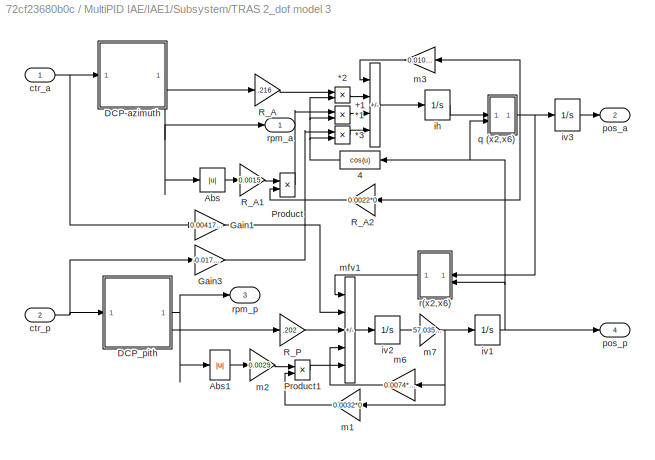
BLOCK [SubSystem] MultiPID IAE/IAE1/Subsystem/TRAS 2_dof model 3
  NameLocation = top
BLOCK [Product] MultiPID IAE/IAE1/Subsystem/TRAS 2_dof model 3/*1
  InputSameDT = on
  OutDataTypeStr = Inherit: Same as first input
  SaturateOnIntegerOverflow = on
BLOCK [Product] MultiPID IAE/IAE1/Subsystem/TRAS 2_dof model 3/*2
  InputSameDT = on
  OutDataTypeStr = Inherit: Same as first input
  SaturateOnIntegerOverflow = on
BLOCK [Product] MultiPID IAE/IAE1/Subsystem/TRAS 2_dof model 3/*3
  InputSameDT = on
  OutDataTypeStr = Inherit: Same as first input
  SaturateOnIntegerOverflow = on
BLOCK [Sum] MultiPID IAE/IAE1/Subsystem/TRAS 2_dof model 3/+1
  IconShape = rectangular
  InputSameDT = on
  Inputs = -+--
  NameLocation = top
  OutDataTypeStr = Inherit: Same as first input
  SaturateOnIntegerOverflow = on
BLOCK [Fcn] MultiPID IAE/IAE1/Subsystem/TRAS 2_dof model 3/4
  Expr = cos(u)
  NameLocation = top
BLOCK [Abs] MultiPID IAE/IAE1/Subsystem/TRAS 2_dof model 3/Abs
BLOCK [Abs] MultiPID IAE/IAE1/Subsystem/TRAS 2_dof model 3/Abs1
BLOCK [SubSystem] MultiPID IAE/IAE1/Subsystem/TRAS 2_dof model 3/DCP-azimuth
  NameLocation = top
BLOCK [Gain] MultiPID IAE/IAE1/Subsystem/TRAS 2_dof model 3/DCP-azimuth/1//Ja
  Gain = 37000
  OutDataTypeStr = Inherit: Same as input
  ParamDataTypeStr = Inherit: Same as input
  SaturateOnIntegerOverflow = on
BLOCK [Inport] MultiPID IAE/IAE1/Subsystem/TRAS 2_dof model 3/DCP-azimuth/CTR_A
BLOCK [Lookup] MultiPID IAE/IAE1/Subsystem/TRAS 2_dof model 3/DCP-azimuth/CtrlA(rpma)
  InputValues = rpm_a
  Table = control_a
BLOCK [Outport] MultiPID IAE/IAE1/Subsystem/TRAS 2_dof model 3/DCP-azimuth/FORCE_A
  Port = 2
BLOCK [Integrator] MultiPID IAE/IAE1/Subsystem/TRAS 2_dof model 3/DCP-azimuth/Integrator1
BLOCK [Outport] MultiPID IAE/IAE1/Subsystem/TRAS 2_dof model 3/DCP-azimuth/RPM_A
BLOCK [Sum] MultiPID IAE/IAE1/Subsystem/TRAS 2_dof model 3/DCP-azimuth/Sum1
  InputSameDT = on
  Inputs = |+-
  OutDataTypeStr = Inherit: Same as first input
  SaturateOnIntegerOverflow = on
BLOCK [Lookup] MultiPID IAE/IAE1/Subsystem/TRAS 2_dof model 3/DCP-azimuth/forceA(rpma)
  InputValues = rpm_a
  NameLocation = top
  Table = force_a
BLOCK [SubSystem] MultiPID IAE/IAE1/Subsystem/TRAS 2_dof model 3/DCP_pith
BLOCK [Gain] MultiPID IAE/IAE1/Subsystem/TRAS 2_dof model 3/DCP_pith/1//Jp1
  Gain = 6100
  OutDataTypeStr = Inherit: Same as input
  ParamDataTypeStr = Inherit: Same as input
BLOCK [Inport] MultiPID IAE/IAE1/Subsystem/TRAS 2_dof model 3/DCP_pith/CTR_P
BLOCK [Lookup] MultiPID IAE/IAE1/Subsystem/TRAS 2_dof model 3/DCP_pith/CtrlP(rpmp)
  InputValues = rpm_p
  Table = control_p
BLOCK [Outport] MultiPID IAE/IAE1/Subsystem/TRAS 2_dof model 3/DCP_pith/FORCE_P
  Port = 2
BLOCK [Integrator] MultiPID IAE/IAE1/Subsystem/TRAS 2_dof model 3/DCP_pith/Integrator
BLOCK [Outport] MultiPID IAE/IAE1/Subsystem/TRAS 2_dof model 3/DCP_pith/RPM_P
BLOCK [Sum] MultiPID IAE/IAE1/Subsystem/TRAS 2_dof model 3/DCP_pith/Sum
  InputSameDT = on
  Inputs = |+-
  OutDataTypeStr = Inherit: Same as first input
  SaturateOnIntegerOverflow = on
BLOCK [Lookup] MultiPID IAE/IAE1/Subsystem/TRAS 2_dof model 3/DCP_pith/force(rpmp)
  InputValues = rpm_p
  NameLocation = top
  Table = force_p
BLOCK [Gain] MultiPID IAE/IAE1/Subsystem/TRAS 2_dof model 3/Gain1
  Gain = 0.00417495398545
  NameLocation = top
  OutDataTypeStr = Inherit: Same as input
  ParamDataTypeStr = Inherit: Same as input
  SaturateOnIntegerOverflow = on
BLOCK [Gain] MultiPID IAE/IAE1/Subsystem/TRAS 2_dof model 3/Gain3
  Gain = -0.01782003784180
  NameLocation = top
  OutDataTypeStr = Inherit: Same as input
  ParamDataTypeStr = Inherit: Same as input
  SaturateOnIntegerOverflow = on
BLOCK [Product] MultiPID IAE/IAE1/Subsystem/TRAS 2_dof model 3/Product
  InputSameDT = on
  OutDataTypeStr = Inherit: Same as first input
  SaturateOnIntegerOverflow = on
BLOCK [Product] MultiPID IAE/IAE1/Subsystem/TRAS 2_dof model 3/Product1
  OutDataTypeStr = Inherit: Same as first input
  SaturateOnIntegerOverflow = on
BLOCK [Gain] MultiPID IAE/IAE1/Subsystem/TRAS 2_dof model 3/R_A
  Gain = .216
  NameLocation = top
  OutDataTypeStr = Inherit: Same as input
  ParamDataTypeStr = Inherit: Same as input
BLOCK [Gain] MultiPID IAE/IAE1/Subsystem/TRAS 2_dof model 3/R_A1
  Gain = 0.0015
  NameLocation = top
  OutDataTypeStr = Inherit: Same as input
  ParamDataTypeStr = Inherit: Same as input
BLOCK [Gain] MultiPID IAE/IAE1/Subsystem/TRAS 2_dof model 3/R_A2
  Gain = 0.0022*0
  NameLocation = top
  OutDataTypeStr = Inherit: Same as input
  ParamDataTypeStr = Inherit: Same as input
BLOCK [Gain] MultiPID IAE/IAE1/Subsystem/TRAS 2_dof model 3/R_P
  Gain = .202
  OutDataTypeStr = Inherit: Same as input
  ParamDataTypeStr = Inherit: Same as input
BLOCK [Inport] MultiPID IAE/IAE1/Subsystem/TRAS 2_dof model 3/ctr_a
BLOCK [Inport] MultiPID IAE/IAE1/Subsystem/TRAS 2_dof model 3/ctr_p
  Port = 2
BLOCK [Integrator] MultiPID IAE/IAE1/Subsystem/TRAS 2_dof model 3/ih
  LowerSaturationLimit = -10
  UpperSaturationLimit = 10
BLOCK [Integrator] MultiPID IAE/IAE1/Subsystem/TRAS 2_dof model 3/iv1
  LimitOutput = on
  LowerSaturationLimit = -pi/2
  NameLocation = top
  UpperSaturationLimit = pi/2
BLOCK [Integrator] MultiPID IAE/IAE1/Subsystem/TRAS 2_dof model 3/iv2
  LowerSaturationLimit = -pi
  NameLocation = top
  UpperSaturationLimit = pi
BLOCK [Integrator] MultiPID IAE/IAE1/Subsystem/TRAS 2_dof model 3/iv3
  LimitOutput = on
  LowerSaturationLimit = -6
  NameLocation = top
  UpperSaturationLimit = 6
BLOCK [Gain] MultiPID IAE/IAE1/Subsystem/TRAS 2_dof model 3/m1
  Gain = 0.0032*0
  NameLocation = top
  OutDataTypeStr = Inherit: Same as input
  ParamDataTypeStr = Inherit: Same as input
  SaturateOnIntegerOverflow = on
BLOCK [Gain] MultiPID IAE/IAE1/Subsystem/TRAS 2_dof model 3/m2
  Gain = 0.0029
  NameLocation = top
  OutDataTypeStr = Inherit: Same as input
  ParamDataTypeStr = Inherit: Same as input
  SaturateOnIntegerOverflow = on
BLOCK [Gain] MultiPID IAE/IAE1/Subsystem/TRAS 2_dof model 3/m3
  Gain = 0.0108*0.4935*1.1051
  NameLocation = top
  OutDataTypeStr = Inherit: Same as input
  ParamDataTypeStr = Inherit: Same as input
BLOCK [Gain] MultiPID IAE/IAE1/Subsystem/TRAS 2_dof model 3/m6
  Gain = 0.0074*1.7175
  OutDataTypeStr = Inherit: Same as input
  ParamDataTypeStr = Inherit: Same as input
BLOCK [Gain] MultiPID IAE/IAE1/Subsystem/TRAS 2_dof model 3/m7
  Gain = 57.0357*0.5833
  NameLocation = top
  OutDataTypeStr = Inherit: Same as input
  ParamDataTypeStr = Inherit: Same as input
  SaturateOnIntegerOverflow = on
BLOCK [Sum] MultiPID IAE/IAE1/Subsystem/TRAS 2_dof model 3/mfv1
  IconShape = rectangular
  InputSameDT = on
  Inputs = +++--
  NameLocation = top
  OutDataTypeStr = Inherit: Same as first input
  SaturateOnIntegerOverflow = on
BLOCK [Outport] MultiPID IAE/IAE1/Subsystem/TRAS 2_dof model 3/pos_a
  Port = 2
BLOCK [Outport] MultiPID IAE/IAE1/Subsystem/TRAS 2_dof model 3/pos_p
  Port = 4
BLOCK [SubSystem] MultiPID IAE/IAE1/Subsystem/TRAS 2_dof model 3/q (x2,x6)
BLOCK [Fcn] MultiPID IAE/IAE1/Subsystem/TRAS 2_dof model 3/q (x2,x6)/ q(x6)
  Expr = ( (0.0268-0.00300962066650)*cos(u)^2) +0.00300962066650
  NameLocation = left
BLOCK [Product] MultiPID IAE/IAE1/Subsystem/TRAS 2_dof model 3/q (x2,x6)/*1
  InputSameDT = on
  Inputs = */
  OutDataTypeStr = Inherit: Same as first input
  SaturateOnIntegerOverflow = on
BLOCK [Outport] MultiPID IAE/IAE1/Subsystem/TRAS 2_dof model 3/q (x2,x6)/q
BLOCK [Inport] MultiPID IAE/IAE1/Subsystem/TRAS 2_dof model 3/q (x2,x6)/x2
BLOCK [Inport] MultiPID IAE/IAE1/Subsystem/TRAS 2_dof model 3/q (x2,x6)/x6
  Port = 2
BLOCK [SubSystem] MultiPID IAE/IAE1/Subsystem/TRAS 2_dof model 3/r(x2,x6)
BLOCK [Sum] MultiPID IAE/IAE1/Subsystem/TRAS 2_dof model 3/r(x2,x6)/+2
  IconShape = rectangular
  InputSameDT = on
  OutDataTypeStr = Inherit: Same as first input
  SaturateOnIntegerOverflow = on
BLOCK [Mux] MultiPID IAE/IAE1/Subsystem/TRAS 2_dof model 3/r(x2,x6)/Mux
  DisplayOption = bar
  Inputs = 2
  NameLocation = top
BLOCK [Outport] MultiPID IAE/IAE1/Subsystem/TRAS 2_dof model 3/r(x2,x6)/r
BLOCK [Fcn] MultiPID IAE/IAE1/Subsystem/TRAS 2_dof model 3/r(x2,x6)/r2
  Expr = - ( 0.0292*cos(u)+ 0.0546*sin(u))*1.7143
BLOCK [Fcn] MultiPID IAE/IAE1/Subsystem/TRAS 2_dof model 3/r(x2,x6)/s
  Expr = (u(1)^2)*(     -0.07389953104162*  0.28753198180218*sin(u(2))*cos(u(2)))
BLOCK [Inport] MultiPID IAE/IAE1/Subsystem/TRAS 2_dof model 3/r(x2,x6)/x6
  NameLocation = right
  Port = 2
BLOCK [Inport] MultiPID IAE/IAE1/Subsystem/TRAS 2_dof model 3/r(x2,x6)/y2
BLOCK [Outport] MultiPID IAE/IAE1/Subsystem/TRAS 2_dof model 3/rpm_a
BLOCK [Outport] MultiPID IAE/IAE1/Subsystem/TRAS 2_dof model 3/rpm_p
  Port = 3
BLOCK [Outport] MultiPID IAE/IAE1/Subsystem/azimuth pos
  Port = 2
BLOCK [Outport] MultiPID IAE/IAE1/Subsystem/azimuth rpm
BLOCK [Outport] MultiPID IAE/IAE1/Subsystem/pitch pos
  Port = 5
BLOCK [Outport] MultiPID IAE/IAE1/Subsystem/pitch rpm
  Port = 3
BLOCK [Sum] MultiPID IAE/IAE1/Sum15
  Inputs = |+-
BLOCK [Sum] MultiPID IAE/IAE1/Sum17
  Inputs = -+|
BLOCK [Outport] MultiPID IAE/IAE1/azimuth pos
  Port = 2
BLOCK [Outport] MultiPID IAE/IAE1/azimuth rpm
BLOCK [Outport] MultiPID IAE/IAE1/comanda azimuth
  Port = 3
BLOCK [Outport] MultiPID IAE/IAE1/comanda pitch
  Port = 6
BLOCK [Outport] MultiPID IAE/IAE1/pitch pos
  Port = 5
BLOCK [Outport] MultiPID IAE/IAE1/pitch rpm
  Port = 4
BLOCK [Inport] MultiPID IAE/IAE1/ref azimuth
  Port = 2
BLOCK [Inport] MultiPID IAE/IAE1/ref pitch
BLOCK [SubSystem] MultiPID IAE/IAE2
BLOCK [Scope] MultiPID IAE/IAE2/AZIMUTH2
  Floating = off
  NumInputPorts = 3
  ScopeSpecificationString = Simulink.scopes.TimeScopeBlockCfg('CurrentConfiguration', extmgr.ConfigurationSet(extmgr.Configuration('Core','General UI',true),extmgr.Configuration('Core','Source UI',true),extmgr.Configuration('Sources','WiredSimulink',true,'DataLoggingSaveFormat','StructureWithTime','DataLoggingDecimation','1','DataLoggingDecimateData',true,'DataLoggingVariableName','ScopeData1'),extmgr.Configuration('Visuals'...<+3257ch>
BLOCK [SubSystem] MultiPID IAE/IAE2/FOPID G1
  Commented = on
BLOCK [Reference] MultiPID IAE/IAE2/FOPID G1/Fractional PID controller1  REF=fod/Fractional PID  (lib defined in slx_5cb2d42c7bef)
controller
  SourceBlock = fod/Fractional PID\ncontroller
  SourceProductName = FOMCON Toolbox
  SourceType = Fractional PID
BLOCK [Reference] MultiPID IAE/IAE2/FOPID G1/Fractional PID controller2  REF=fod/Fractional PID  (lib defined in slx_5cb2d42c7bef)
controller
  SourceBlock = fod/Fractional PID\ncontroller
  SourceProductName = FOMCON Toolbox
  SourceType = Fractional PID
BLOCK [Sum] MultiPID IAE/IAE2/FOPID G1/Sum1
  Inputs = |++
BLOCK [Outport] MultiPID IAE/IAE2/FOPID G1/comanda
BLOCK [Inport] MultiPID IAE/IAE2/FOPID G1/eroare
  NameLocation = left
BLOCK [SubSystem] MultiPID IAE/IAE2/FOPID G2
  Commented = on
BLOCK [Reference] MultiPID IAE/IAE2/FOPID G2/Fractional PID controller  REF=fod/Fractional PID  (lib defined in slx_5cb2d42c7bef)
controller
  SourceBlock = fod/Fractional PID\ncontroller
  SourceProductName = FOMCON Toolbox
  SourceType = Fractional PID
BLOCK [Reference] MultiPID IAE/IAE2/FOPID G2/Fractional PID controller1  REF=fod/Fractional PID  (lib defined in slx_5cb2d42c7bef)
controller
  SourceBlock = fod/Fractional PID\ncontroller
  SourceProductName = FOMCON Toolbox
  SourceType = Fractional PID
BLOCK [Reference] MultiPID IAE/IAE2/FOPID G2/Fractional PID controller2  REF=fod/Fractional PID  (lib defined in slx_5cb2d42c7bef)
controller
  SourceBlock = fod/Fractional PID\ncontroller
  SourceProductName = FOMCON Toolbox
  SourceType = Fractional PID
BLOCK [Sum] MultiPID IAE/IAE2/FOPID G2/Sum1
  Inputs = |+++
BLOCK [Outport] MultiPID IAE/IAE2/FOPID G2/comanda
BLOCK [Inport] MultiPID IAE/IAE2/FOPID G2/eroare
  NameLocation = left
BLOCK [SubSystem] MultiPID IAE/IAE2/FOPID H11 limitat1
  Commented = on
BLOCK [Reference] MultiPID IAE/IAE2/FOPID H11 limitat1/Fractional PID controller1  REF=fod/Fractional PID  (lib defined in slx_5cb2d42c7bef)
controller
  SourceBlock = fod/Fractional PID\ncontroller
  SourceProductName = FOMCON Toolbox
  SourceType = Fractional PID
BLOCK [Reference] MultiPID IAE/IAE2/FOPID H11 limitat1/Fractional PID controller2  REF=fod/Fractional PID  (lib defined in slx_5cb2d42c7bef)
controller
  SourceBlock = fod/Fractional PID\ncontroller
  SourceProductName = FOMCON Toolbox
  SourceType = Fractional PID
BLOCK [Reference] MultiPID IAE/IAE2/FOPID H11 limitat1/Fractional PID controller3  REF=fod/Fractional PID  (lib defined in slx_5cb2d42c7bef)
controller
  SourceBlock = fod/Fractional PID\ncontroller
  SourceProductName = FOMCON Toolbox
  SourceType = Fractional PID
BLOCK [Reference] MultiPID IAE/IAE2/FOPID H11 limitat1/Fractional PID controller4  REF=fod/Fractional PID  (lib defined in slx_5cb2d42c7bef)
controller
  SourceBlock = fod/Fractional PID\ncontroller
  SourceProductName = FOMCON Toolbox
  SourceType = Fractional PID
BLOCK [Sum] MultiPID IAE/IAE2/FOPID H11 limitat1/Sum1
  Inputs = |++++
BLOCK [Outport] MultiPID IAE/IAE2/FOPID H11 limitat1/comanda
BLOCK [Inport] MultiPID IAE/IAE2/FOPID H11 limitat1/eroare
  NameLocation = left
BLOCK [Reference] MultiPID IAE/IAE2/Fractional PID H1  REF=fod/Fractional PID  (lib defined in slx_5cb2d42c7bef)
controller
  SourceBlock = fod/Fractional PID\ncontroller
  SourceProductName = FOMCON Toolbox
  SourceType = Fractional PID
BLOCK [Reference] MultiPID IAE/IAE2/Fractional PID H2  REF=fod/Fractional PID  (lib defined in slx_5cb2d42c7bef)
controller
  SourceBlock = fod/Fractional PID\ncontroller
  SourceProductName = FOMCON Toolbox
  SourceType = Fractional PID
BLOCK [Reference] MultiPID IAE/IAE2/LTI System1  REF=cstblocks/LTI System
  SourceBlock = cstblocks/LTI System
  SourceType = LTI Block
BLOCK [Reference] MultiPID IAE/IAE2/LTI System3  REF=cstblocks/LTI System
  SourceBlock = cstblocks/LTI System
  SourceType = LTI Block
BLOCK [SubSystem] MultiPID IAE/IAE2/Ord 6 H1
  Commented = on
BLOCK [Reference] MultiPID IAE/IAE2/Ord 6 H1/Fractional operator1  REF=fod/Fractional  (lib defined in slx_5cb2d42c7bef)
operator
  SourceBlock = fod/Fractional\noperator
  SourceProductName = FOMCON Toolbox
  SourceType = Fractional operator
  Tag = Fractional operator
BLOCK [Reference] MultiPID IAE/IAE2/Ord 6 H1/Fractional operator2  REF=fod/Fractional  (lib defined in slx_5cb2d42c7bef)
operator
  SourceBlock = fod/Fractional\noperator
  SourceProductName = FOMCON Toolbox
  SourceType = Fractional operator
  Tag = Fractional operator
BLOCK [Reference] MultiPID IAE/IAE2/Ord 6 H1/Fractional operator3  REF=fod/Fractional  (lib defined in slx_5cb2d42c7bef)
operator
  SourceBlock = fod/Fractional\noperator
  SourceProductName = FOMCON Toolbox
  SourceType = Fractional operator
  Tag = Fractional operator
BLOCK [Reference] MultiPID IAE/IAE2/Ord 6 H1/Fractional operator4  REF=fod/Fractional  (lib defined in slx_5cb2d42c7bef)
operator
  SourceBlock = fod/Fractional\noperator
  SourceProductName = FOMCON Toolbox
  SourceType = Fractional operator
  Tag = Fractional operator
BLOCK [Reference] MultiPID IAE/IAE2/Ord 6 H1/Fractional operator5  REF=fod/Fractional  (lib defined in slx_5cb2d42c7bef)
operator
  SourceBlock = fod/Fractional\noperator
  SourceProductName = FOMCON Toolbox
  SourceType = Fractional operator
  Tag = Fractional operator
BLOCK [Reference] MultiPID IAE/IAE2/Ord 6 H1/Fractional operator6  REF=fod/Fractional  (lib defined in slx_5cb2d42c7bef)
operator
  SourceBlock = fod/Fractional\noperator
  SourceProductName = FOMCON Toolbox
  SourceType = Fractional operator
  Tag = Fractional operator
BLOCK [Sum] MultiPID IAE/IAE2/Ord 6 H1/Sum
  Inputs = |++++++
BLOCK [Outport] MultiPID IAE/IAE2/Ord 6 H1/comanda
BLOCK [Inport] MultiPID IAE/IAE2/Ord 6 H1/ref
BLOCK [SubSystem] MultiPID IAE/IAE2/Ord 9 H2
  Commented = on
BLOCK [Reference] MultiPID IAE/IAE2/Ord 9 H2/Fractional operator1  REF=fod/Fractional  (lib defined in slx_5cb2d42c7bef)
operator
  SourceBlock = fod/Fractional\noperator
  SourceProductName = FOMCON Toolbox
  SourceType = Fractional operator
  Tag = Fractional operator
BLOCK [Reference] MultiPID IAE/IAE2/Ord 9 H2/Fractional operator2  REF=fod/Fractional  (lib defined in slx_5cb2d42c7bef)
operator
  SourceBlock = fod/Fractional\noperator
  SourceProductName = FOMCON Toolbox
  SourceType = Fractional operator
  Tag = Fractional operator
BLOCK [Reference] MultiPID IAE/IAE2/Ord 9 H2/Fractional operator3  REF=fod/Fractional  (lib defined in slx_5cb2d42c7bef)
operator
  SourceBlock = fod/Fractional\noperator
  SourceProductName = FOMCON Toolbox
  SourceType = Fractional operator
  Tag = Fractional operator
BLOCK [Reference] MultiPID IAE/IAE2/Ord 9 H2/Fractional operator4  REF=fod/Fractional  (lib defined in slx_5cb2d42c7bef)
operator
  SourceBlock = fod/Fractional\noperator
  SourceProductName = FOMCON Toolbox
  SourceType = Fractional operator
  Tag = Fractional operator
BLOCK [Reference] MultiPID IAE/IAE2/Ord 9 H2/Fractional operator5  REF=fod/Fractional  (lib defined in slx_5cb2d42c7bef)
operator
  SourceBlock = fod/Fractional\noperator
  SourceProductName = FOMCON Toolbox
  SourceType = Fractional operator
  Tag = Fractional operator
BLOCK [Reference] MultiPID IAE/IAE2/Ord 9 H2/Fractional operator6  REF=fod/Fractional  (lib defined in slx_5cb2d42c7bef)
operator
  SourceBlock = fod/Fractional\noperator
  SourceProductName = FOMCON Toolbox
  SourceType = Fractional operator
  Tag = Fractional operator
BLOCK [Reference] MultiPID IAE/IAE2/Ord 9 H2/Fractional operator7  REF=fod/Fractional  (lib defined in slx_5cb2d42c7bef)
operator
  SourceBlock = fod/Fractional\noperator
  SourceProductName = FOMCON Toolbox
  SourceType = Fractional operator
  Tag = Fractional operator
BLOCK [Reference] MultiPID IAE/IAE2/Ord 9 H2/Fractional operator8  REF=fod/Fractional  (lib defined in slx_5cb2d42c7bef)
operator
  SourceBlock = fod/Fractional\noperator
  SourceProductName = FOMCON Toolbox
  SourceType = Fractional operator
  Tag = Fractional operator
BLOCK [Reference] MultiPID IAE/IAE2/Ord 9 H2/Fractional operator9  REF=fod/Fractional  (lib defined in slx_5cb2d42c7bef)
operator
  SourceBlock = fod/Fractional\noperator
  SourceProductName = FOMCON Toolbox
  SourceType = Fractional operator
  Tag = Fractional operator
BLOCK [Sum] MultiPID IAE/IAE2/Ord 9 H2/Sum
  Inputs = |++++++
BLOCK [Sum] MultiPID IAE/IAE2/Ord 9 H2/Sum1
  Inputs = |+++
BLOCK [Sum] MultiPID IAE/IAE2/Ord 9 H2/Sum2
  Inputs = |++
BLOCK [Outport] MultiPID IAE/IAE2/Ord 9 H2/comanda
BLOCK [Inport] MultiPID IAE/IAE2/Ord 9 H2/ref
BLOCK [Reference] MultiPID IAE/IAE2/PID H1  REF=slpidlib/PID Controller
  Commented = on
  LibrarySourceBlock = simulink/Continuous/PID Controller
  SourceBlock = slpidlib/PID Controller
  SourceType = PID 1dof
BLOCK [Reference] MultiPID IAE/IAE2/PID H2  REF=slpidlib/PID Controller
  Commented = on
  LibrarySourceBlock = simulink/Continuous/PID Controller
  SourceBlock = slpidlib/PID Controller
  SourceType = PID 1dof
BLOCK [Reference] MultiPID IAE/IAE2/PID H3  REF=slpidlib/PID Controller
  Commented = on
  LibrarySourceBlock = simulink/Continuous/PID Controller
  SourceBlock = slpidlib/PID Controller
  SourceType = PID 1dof
BLOCK [Scope] MultiPID IAE/IAE2/PITCH2
  Floating = off
  NumInputPorts = 3
  ScopeSpecificationString = Simulink.scopes.TimeScopeBlockCfg('CurrentConfiguration', extmgr.ConfigurationSet(extmgr.Configuration('Core','General UI',true),extmgr.Configuration('Core','Source UI',true),extmgr.Configuration('Sources','WiredSimulink',true,'DataLoggingVariableName','ScopeData2','DataLoggingSaveFormat','StructureWithTime','DataLoggingDecimation','1','DataLoggingDecimateData',true),extmgr.Configuration('Visuals'...<+3251ch>
BLOCK [SubSystem] MultiPID IAE/IAE2/Regulator H22 ISE1
  Commented = on
BLOCK [SubSystem] MultiPID IAE/IAE2/Regulator H22 ISE1/Ord 3
BLOCK [Reference] MultiPID IAE/IAE2/Regulator H22 ISE1/Ord 3/Fractional operator1  REF=fod/Fractional  (lib defined in slx_5cb2d42c7bef)
operator
  SourceBlock = fod/Fractional\noperator
  SourceProductName = FOMCON Toolbox
  SourceType = Fractional operator
  Tag = Fractional operator
BLOCK [Reference] MultiPID IAE/IAE2/Regulator H22 ISE1/Ord 3/Fractional operator2  REF=fod/Fractional  (lib defined in slx_5cb2d42c7bef)
operator
  SourceBlock = fod/Fractional\noperator
  SourceProductName = FOMCON Toolbox
  SourceType = Fractional operator
  Tag = Fractional operator
BLOCK [Reference] MultiPID IAE/IAE2/Regulator H22 ISE1/Ord 3/Fractional operator3  REF=fod/Fractional  (lib defined in slx_5cb2d42c7bef)
operator
  SourceBlock = fod/Fractional\noperator
  SourceProductName = FOMCON Toolbox
  SourceType = Fractional operator
  Tag = Fractional operator
BLOCK [Sum] MultiPID IAE/IAE2/Regulator H22 ISE1/Ord 3/Sum
  Inputs = +|++
BLOCK [Outport] MultiPID IAE/IAE2/Regulator H22 ISE1/Ord 3/comanda
BLOCK [Inport] MultiPID IAE/IAE2/Regulator H22 ISE1/Ord 3/ref
BLOCK [Outport] MultiPID IAE/IAE2/Regulator H22 ISE1/comanda
BLOCK [Inport] MultiPID IAE/IAE2/Regulator H22 ISE1/ref
BLOCK [SubSystem] MultiPID IAE/IAE2/Subsystem
BLOCK [Gain] MultiPID IAE/IAE2/Subsystem/Azimuth H22
BLOCK [Scope] MultiPID IAE/IAE2/Subsystem/Comanda
  Floating = off
  NumInputPorts = 3
BLOCK [Scope] MultiPID IAE/IAE2/Subsystem/Comanda Iesire regulator
  Floating = off
  NumInputPorts = 2
BLOCK [Outport] MultiPID IAE/IAE2/Subsystem/Comanda1
  Port = 4
BLOCK [Outport] MultiPID IAE/IAE2/Subsystem/Comanda2
  Port = 6
BLOCK [TransferFcn] MultiPID IAE/IAE2/Subsystem/D12
  Denominator = [1 1.322]
  Numerator = [0.0019343*1 0.0019343*1.287]
BLOCK [TransferFcn] MultiPID IAE/IAE2/Subsystem/D21
  Denominator = [1 5.675]
  Numerator = [0.0014712*1    0.0014712*3.527]
BLOCK [Inport] MultiPID IAE/IAE2/Subsystem/In2
  Port = 2
BLOCK [Gain] MultiPID IAE/IAE2/Subsystem/Pitch H11
BLOCK [Inport] MultiPID IAE/IAE2/Subsystem/Reg_azimuth
  Port = 3
BLOCK [Inport] MultiPID IAE/IAE2/Subsystem/Reg_pitch
BLOCK [Saturate] MultiPID IAE/IAE2/Subsystem/Saturation5
  LowerLimit = -1
  RndMeth = Ceiling
  UpperLimit = 1
BLOCK [Saturate] MultiPID IAE/IAE2/Subsystem/Saturation6
  LowerLimit = -1
  RndMeth = Ceiling
  UpperLimit = 1
BLOCK [Sum] MultiPID IAE/IAE2/Subsystem/Sum14
  Inputs = |++
BLOCK [Sum] MultiPID IAE/IAE2/Subsystem/Sum16
  Inputs = |++
BLOCK [SubSystem] MultiPID IAE/IAE2/Subsystem/TRAS 2_dof model 3
  NameLocation = top
BLOCK [Product] MultiPID IAE/IAE2/Subsystem/TRAS 2_dof model 3/*1
  InputSameDT = on
  OutDataTypeStr = Inherit: Same as first input
  SaturateOnIntegerOverflow = on
BLOCK [Product] MultiPID IAE/IAE2/Subsystem/TRAS 2_dof model 3/*2
  InputSameDT = on
  OutDataTypeStr = Inherit: Same as first input
  SaturateOnIntegerOverflow = on
BLOCK [Product] MultiPID IAE/IAE2/Subsystem/TRAS 2_dof model 3/*3
  InputSameDT = on
  OutDataTypeStr = Inherit: Same as first input
  SaturateOnIntegerOverflow = on
BLOCK [Sum] MultiPID IAE/IAE2/Subsystem/TRAS 2_dof model 3/+1
  IconShape = rectangular
  InputSameDT = on
  Inputs = -+--
  NameLocation = top
  OutDataTypeStr = Inherit: Same as first input
  SaturateOnIntegerOverflow = on
BLOCK [Fcn] MultiPID IAE/IAE2/Subsystem/TRAS 2_dof model 3/4
  Expr = cos(u)
  NameLocation = top
BLOCK [Abs] MultiPID IAE/IAE2/Subsystem/TRAS 2_dof model 3/Abs
BLOCK [Abs] MultiPID IAE/IAE2/Subsystem/TRAS 2_dof model 3/Abs1
BLOCK [SubSystem] MultiPID IAE/IAE2/Subsystem/TRAS 2_dof model 3/DCP-azimuth
  NameLocation = top
BLOCK [Gain] MultiPID IAE/IAE2/Subsystem/TRAS 2_dof model 3/DCP-azimuth/1//Ja
  Gain = 37000
  OutDataTypeStr = Inherit: Same as input
  ParamDataTypeStr = Inherit: Same as input
  SaturateOnIntegerOverflow = on
BLOCK [Inport] MultiPID IAE/IAE2/Subsystem/TRAS 2_dof model 3/DCP-azimuth/CTR_A
BLOCK [Lookup] MultiPID IAE/IAE2/Subsystem/TRAS 2_dof model 3/DCP-azimuth/CtrlA(rpma)
  InputValues = rpm_a
  Table = control_a
BLOCK [Outport] MultiPID IAE/IAE2/Subsystem/TRAS 2_dof model 3/DCP-azimuth/FORCE_A
  Port = 2
BLOCK [Integrator] MultiPID IAE/IAE2/Subsystem/TRAS 2_dof model 3/DCP-azimuth/Integrator1
BLOCK [Outport] MultiPID IAE/IAE2/Subsystem/TRAS 2_dof model 3/DCP-azimuth/RPM_A
BLOCK [Sum] MultiPID IAE/IAE2/Subsystem/TRAS 2_dof model 3/DCP-azimuth/Sum1
  InputSameDT = on
  Inputs = |+-
  OutDataTypeStr = Inherit: Same as first input
  SaturateOnIntegerOverflow = on
BLOCK [Lookup] MultiPID IAE/IAE2/Subsystem/TRAS 2_dof model 3/DCP-azimuth/forceA(rpma)
  InputValues = rpm_a
  NameLocation = top
  Table = force_a
BLOCK [SubSystem] MultiPID IAE/IAE2/Subsystem/TRAS 2_dof model 3/DCP_pith
BLOCK [Gain] MultiPID IAE/IAE2/Subsystem/TRAS 2_dof model 3/DCP_pith/1//Jp1
  Gain = 6100
  OutDataTypeStr = Inherit: Same as input
  ParamDataTypeStr = Inherit: Same as input
BLOCK [Inport] MultiPID IAE/IAE2/Subsystem/TRAS 2_dof model 3/DCP_pith/CTR_P
BLOCK [Lookup] MultiPID IAE/IAE2/Subsystem/TRAS 2_dof model 3/DCP_pith/CtrlP(rpmp)
  InputValues = rpm_p
  Table = control_p
BLOCK [Outport] MultiPID IAE/IAE2/Subsystem/TRAS 2_dof model 3/DCP_pith/FORCE_P
  Port = 2
BLOCK [Integrator] MultiPID IAE/IAE2/Subsystem/TRAS 2_dof model 3/DCP_pith/Integrator
BLOCK [Outport] MultiPID IAE/IAE2/Subsystem/TRAS 2_dof model 3/DCP_pith/RPM_P
BLOCK [Sum] MultiPID IAE/IAE2/Subsystem/TRAS 2_dof model 3/DCP_pith/Sum
  InputSameDT = on
  Inputs = |+-
  OutDataTypeStr = Inherit: Same as first input
  SaturateOnIntegerOverflow = on
BLOCK [Lookup] MultiPID IAE/IAE2/Subsystem/TRAS 2_dof model 3/DCP_pith/force(rpmp)
  InputValues = rpm_p
  NameLocation = top
  Table = force_p
BLOCK [Gain] MultiPID IAE/IAE2/Subsystem/TRAS 2_dof model 3/Gain1
  Gain = 0.00417495398545
  NameLocation = top
  OutDataTypeStr = Inherit: Same as input
  ParamDataTypeStr = Inherit: Same as input
  SaturateOnIntegerOverflow = on
BLOCK [Gain] MultiPID IAE/IAE2/Subsystem/TRAS 2_dof model 3/Gain3
  Gain = -0.01782003784180
  NameLocation = top
  OutDataTypeStr = Inherit: Same as input
  ParamDataTypeStr = Inherit: Same as input
  SaturateOnIntegerOverflow = on
BLOCK [Product] MultiPID IAE/IAE2/Subsystem/TRAS 2_dof model 3/Product
  InputSameDT = on
  OutDataTypeStr = Inherit: Same as first input
  SaturateOnIntegerOverflow = on
BLOCK [Product] MultiPID IAE/IAE2/Subsystem/TRAS 2_dof model 3/Product1
  OutDataTypeStr = Inherit: Same as first input
  SaturateOnIntegerOverflow = on
BLOCK [Gain] MultiPID IAE/IAE2/Subsystem/TRAS 2_dof model 3/R_A
  Gain = .216
  NameLocation = top
  OutDataTypeStr = Inherit: Same as input
  ParamDataTypeStr = Inherit: Same as input
BLOCK [Gain] MultiPID IAE/IAE2/Subsystem/TRAS 2_dof model 3/R_A1
  Gain = 0.0015
  NameLocation = top
  OutDataTypeStr = Inherit: Same as input
  ParamDataTypeStr = Inherit: Same as input
BLOCK [Gain] MultiPID IAE/IAE2/Subsystem/TRAS 2_dof model 3/R_A2
  Gain = 0.0022*0
  NameLocation = top
  OutDataTypeStr = Inherit: Same as input
  ParamDataTypeStr = Inherit: Same as input
BLOCK [Gain] MultiPID IAE/IAE2/Subsystem/TRAS 2_dof model 3/R_P
  Gain = .202
  OutDataTypeStr = Inherit: Same as input
  ParamDataTypeStr = Inherit: Same as input
BLOCK [Inport] MultiPID IAE/IAE2/Subsystem/TRAS 2_dof model 3/ctr_a
BLOCK [Inport] MultiPID IAE/IAE2/Subsystem/TRAS 2_dof model 3/ctr_p
  Port = 2
BLOCK [Integrator] MultiPID IAE/IAE2/Subsystem/TRAS 2_dof model 3/ih
  LowerSaturationLimit = -10
  UpperSaturationLimit = 10
BLOCK [Integrator] MultiPID IAE/IAE2/Subsystem/TRAS 2_dof model 3/iv1
  LimitOutput = on
  LowerSaturationLimit = -pi/2
  NameLocation = top
  UpperSaturationLimit = pi/2
BLOCK [Integrator] MultiPID IAE/IAE2/Subsystem/TRAS 2_dof model 3/iv2
  LowerSaturationLimit = -pi
  NameLocation = top
  UpperSaturationLimit = pi
BLOCK [Integrator] MultiPID IAE/IAE2/Subsystem/TRAS 2_dof model 3/iv3
  LimitOutput = on
  LowerSaturationLimit = -6
  NameLocation = top
  UpperSaturationLimit = 6
BLOCK [Gain] MultiPID IAE/IAE2/Subsystem/TRAS 2_dof model 3/m1
  Gain = 0.0032*0
  NameLocation = top
  OutDataTypeStr = Inherit: Same as input
  ParamDataTypeStr = Inherit: Same as input
  SaturateOnIntegerOverflow = on
BLOCK [Gain] MultiPID IAE/IAE2/Subsystem/TRAS 2_dof model 3/m2
  Gain = 0.0029
  NameLocation = top
  OutDataTypeStr = Inherit: Same as input
  ParamDataTypeStr = Inherit: Same as input
  SaturateOnIntegerOverflow = on
BLOCK [Gain] MultiPID IAE/IAE2/Subsystem/TRAS 2_dof model 3/m3
  Gain = 0.0108*0.4935*1.1051
  NameLocation = top
  OutDataTypeStr = Inherit: Same as input
  ParamDataTypeStr = Inherit: Same as input
BLOCK [Gain] MultiPID IAE/IAE2/Subsystem/TRAS 2_dof model 3/m6
  Gain = 0.0074*1.7175
  OutDataTypeStr = Inherit: Same as input
  ParamDataTypeStr = Inherit: Same as input
BLOCK [Gain] MultiPID IAE/IAE2/Subsystem/TRAS 2_dof model 3/m7
  Gain = 57.0357*0.5833
  NameLocation = top
  OutDataTypeStr = Inherit: Same as input
  ParamDataTypeStr = Inherit: Same as input
  SaturateOnIntegerOverflow = on
BLOCK [Sum] MultiPID IAE/IAE2/Subsystem/TRAS 2_dof model 3/mfv1
  IconShape = rectangular
  InputSameDT = on
  Inputs = +++--
  NameLocation = top
  OutDataTypeStr = Inherit: Same as first input
  SaturateOnIntegerOverflow = on
BLOCK [Outport] MultiPID IAE/IAE2/Subsystem/TRAS 2_dof model 3/pos_a
  Port = 2
BLOCK [Outport] MultiPID IAE/IAE2/Subsystem/TRAS 2_dof model 3/pos_p
  Port = 4
BLOCK [SubSystem] MultiPID IAE/IAE2/Subsystem/TRAS 2_dof model 3/q (x2,x6)
BLOCK [Fcn] MultiPID IAE/IAE2/Subsystem/TRAS 2_dof model 3/q (x2,x6)/ q(x6)
  Expr = ( (0.0268-0.00300962066650)*cos(u)^2) +0.00300962066650
  NameLocation = left
BLOCK [Product] MultiPID IAE/IAE2/Subsystem/TRAS 2_dof model 3/q (x2,x6)/*1
  InputSameDT = on
  Inputs = */
  OutDataTypeStr = Inherit: Same as first input
  SaturateOnIntegerOverflow = on
BLOCK [Outport] MultiPID IAE/IAE2/Subsystem/TRAS 2_dof model 3/q (x2,x6)/q
BLOCK [Inport] MultiPID IAE/IAE2/Subsystem/TRAS 2_dof model 3/q (x2,x6)/x2
BLOCK [Inport] MultiPID IAE/IAE2/Subsystem/TRAS 2_dof model 3/q (x2,x6)/x6
  Port = 2
BLOCK [SubSystem] MultiPID IAE/IAE2/Subsystem/TRAS 2_dof model 3/r(x2,x6)
BLOCK [Sum] MultiPID IAE/IAE2/Subsystem/TRAS 2_dof model 3/r(x2,x6)/+2
  IconShape = rectangular
  InputSameDT = on
  OutDataTypeStr = Inherit: Same as first input
  SaturateOnIntegerOverflow = on
BLOCK [Mux] MultiPID IAE/IAE2/Subsystem/TRAS 2_dof model 3/r(x2,x6)/Mux
  DisplayOption = bar
  Inputs = 2
  NameLocation = top
BLOCK [Outport] MultiPID IAE/IAE2/Subsystem/TRAS 2_dof model 3/r(x2,x6)/r
BLOCK [Fcn] MultiPID IAE/IAE2/Subsystem/TRAS 2_dof model 3/r(x2,x6)/r2
  Expr = - ( 0.0292*cos(u)+ 0.0546*sin(u))*1.7143
BLOCK [Fcn] MultiPID IAE/IAE2/Subsystem/TRAS 2_dof model 3/r(x2,x6)/s
  Expr = (u(1)^2)*(     -0.07389953104162*  0.28753198180218*sin(u(2))*cos(u(2)))
BLOCK [Inport] MultiPID IAE/IAE2/Subsystem/TRAS 2_dof model 3/r(x2,x6)/x6
  NameLocation = right
  Port = 2
BLOCK [Inport] MultiPID IAE/IAE2/Subsystem/TRAS 2_dof model 3/r(x2,x6)/y2
BLOCK [Outport] MultiPID IAE/IAE2/Subsystem/TRAS 2_dof model 3/rpm_a
BLOCK [Outport] MultiPID IAE/IAE2/Subsystem/TRAS 2_dof model 3/rpm_p
  Port = 3
BLOCK [Outport] MultiPID IAE/IAE2/Subsystem/azimuth pos
  Port = 2
BLOCK [Outport] MultiPID IAE/IAE2/Subsystem/azimuth rpm
BLOCK [Outport] MultiPID IAE/IAE2/Subsystem/pitch pos
  Port = 5
BLOCK [Outport] MultiPID IAE/IAE2/Subsystem/pitch rpm
  Port = 3
BLOCK [Sum] MultiPID IAE/IAE2/Sum15
  Inputs = |+-
BLOCK [Sum] MultiPID IAE/IAE2/Sum17
  Inputs = -+|
BLOCK [Outport] MultiPID IAE/IAE2/azimuth pos
  Port = 2
BLOCK [Outport] MultiPID IAE/IAE2/azimuth rpm
BLOCK [Outport] MultiPID IAE/IAE2/comanda azimuth
  Port = 3
BLOCK [Outport] MultiPID IAE/IAE2/comanda pitch
  Port = 6
BLOCK [Outport] MultiPID IAE/IAE2/pitch pos
  Port = 5
BLOCK [Outport] MultiPID IAE/IAE2/pitch rpm
  Port = 4
BLOCK [Inport] MultiPID IAE/IAE2/ref azimuth
  Port = 2
BLOCK [Inport] MultiPID IAE/IAE2/ref pitch
BLOCK [SubSystem] MultiPID IAE/IAE3
BLOCK [Scope] MultiPID IAE/IAE3/AZIMUTH2
  Floating = off
  NumInputPorts = 3
  ScopeSpecificationString = Simulink.scopes.TimeScopeBlockCfg('CurrentConfiguration', extmgr.ConfigurationSet(extmgr.Configuration('Core','General UI',true),extmgr.Configuration('Core','Source UI',true),extmgr.Configuration('Sources','WiredSimulink',true,'DataLoggingSaveFormat','StructureWithTime','DataLoggingDecimation','1','DataLoggingDecimateData',true,'DataLoggingVariableName','ScopeData1'),extmgr.Configuration('Visuals'...<+3259ch>
BLOCK [SubSystem] MultiPID IAE/IAE3/FOPID G1
  Commented = on
BLOCK [Reference] MultiPID IAE/IAE3/FOPID G1/Fractional PID controller1  REF=fod/Fractional PID  (lib defined in slx_5cb2d42c7bef)
controller
  SourceBlock = fod/Fractional PID\ncontroller
  SourceProductName = FOMCON Toolbox
  SourceType = Fractional PID
BLOCK [Reference] MultiPID IAE/IAE3/FOPID G1/Fractional PID controller2  REF=fod/Fractional PID  (lib defined in slx_5cb2d42c7bef)
controller
  SourceBlock = fod/Fractional PID\ncontroller
  SourceProductName = FOMCON Toolbox
  SourceType = Fractional PID
BLOCK [Sum] MultiPID IAE/IAE3/FOPID G1/Sum1
  Inputs = |++
BLOCK [Outport] MultiPID IAE/IAE3/FOPID G1/comanda
BLOCK [Inport] MultiPID IAE/IAE3/FOPID G1/eroare
  NameLocation = left
BLOCK [SubSystem] MultiPID IAE/IAE3/FOPID G2
  Commented = on
BLOCK [Reference] MultiPID IAE/IAE3/FOPID G2/Fractional PID controller  REF=fod/Fractional PID  (lib defined in slx_5cb2d42c7bef)
controller
  SourceBlock = fod/Fractional PID\ncontroller
  SourceProductName = FOMCON Toolbox
  SourceType = Fractional PID
BLOCK [Reference] MultiPID IAE/IAE3/FOPID G2/Fractional PID controller1  REF=fod/Fractional PID  (lib defined in slx_5cb2d42c7bef)
controller
  SourceBlock = fod/Fractional PID\ncontroller
  SourceProductName = FOMCON Toolbox
  SourceType = Fractional PID
BLOCK [Reference] MultiPID IAE/IAE3/FOPID G2/Fractional PID controller2  REF=fod/Fractional PID  (lib defined in slx_5cb2d42c7bef)
controller
  SourceBlock = fod/Fractional PID\ncontroller
  SourceProductName = FOMCON Toolbox
  SourceType = Fractional PID
BLOCK [Sum] MultiPID IAE/IAE3/FOPID G2/Sum1
  Inputs = |+++
BLOCK [Outport] MultiPID IAE/IAE3/FOPID G2/comanda
BLOCK [Inport] MultiPID IAE/IAE3/FOPID G2/eroare
  NameLocation = left
BLOCK [SubSystem] MultiPID IAE/IAE3/FOPID H11 limitat1
  Commented = on
BLOCK [Reference] MultiPID IAE/IAE3/FOPID H11 limitat1/Fractional PID controller1  REF=fod/Fractional PID  (lib defined in slx_5cb2d42c7bef)
controller
  SourceBlock = fod/Fractional PID\ncontroller
  SourceProductName = FOMCON Toolbox
  SourceType = Fractional PID
BLOCK [Reference] MultiPID IAE/IAE3/FOPID H11 limitat1/Fractional PID controller2  REF=fod/Fractional PID  (lib defined in slx_5cb2d42c7bef)
controller
  SourceBlock = fod/Fractional PID\ncontroller
  SourceProductName = FOMCON Toolbox
  SourceType = Fractional PID
BLOCK [Reference] MultiPID IAE/IAE3/FOPID H11 limitat1/Fractional PID controller3  REF=fod/Fractional PID  (lib defined in slx_5cb2d42c7bef)
controller
  SourceBlock = fod/Fractional PID\ncontroller
  SourceProductName = FOMCON Toolbox
  SourceType = Fractional PID
BLOCK [Reference] MultiPID IAE/IAE3/FOPID H11 limitat1/Fractional PID controller4  REF=fod/Fractional PID  (lib defined in slx_5cb2d42c7bef)
controller
  SourceBlock = fod/Fractional PID\ncontroller
  SourceProductName = FOMCON Toolbox
  SourceType = Fractional PID
BLOCK [Sum] MultiPID IAE/IAE3/FOPID H11 limitat1/Sum1
  Inputs = |++++
BLOCK [Outport] MultiPID IAE/IAE3/FOPID H11 limitat1/comanda
BLOCK [Inport] MultiPID IAE/IAE3/FOPID H11 limitat1/eroare
  NameLocation = left
BLOCK [Reference] MultiPID IAE/IAE3/Fractional PID H1  REF=fod/Fractional PID  (lib defined in slx_5cb2d42c7bef)
controller
  SourceBlock = fod/Fractional PID\ncontroller
  SourceProductName = FOMCON Toolbox
  SourceType = Fractional PID
BLOCK [Reference] MultiPID IAE/IAE3/Fractional PID H2  REF=fod/Fractional PID  (lib defined in slx_5cb2d42c7bef)
controller
  SourceBlock = fod/Fractional PID\ncontroller
  SourceProductName = FOMCON Toolbox
  SourceType = Fractional PID
BLOCK [Reference] MultiPID IAE/IAE3/LTI System1  REF=cstblocks/LTI System
  SourceBlock = cstblocks/LTI System
  SourceType = LTI Block
BLOCK [Reference] MultiPID IAE/IAE3/LTI System3  REF=cstblocks/LTI System
  SourceBlock = cstblocks/LTI System
  SourceType = LTI Block
BLOCK [SubSystem] MultiPID IAE/IAE3/Ord 6 H1
  Commented = on
BLOCK [Reference] MultiPID IAE/IAE3/Ord 6 H1/Fractional operator1  REF=fod/Fractional  (lib defined in slx_5cb2d42c7bef)
operator
  SourceBlock = fod/Fractional\noperator
  SourceProductName = FOMCON Toolbox
  SourceType = Fractional operator
  Tag = Fractional operator
BLOCK [Reference] MultiPID IAE/IAE3/Ord 6 H1/Fractional operator2  REF=fod/Fractional  (lib defined in slx_5cb2d42c7bef)
operator
  SourceBlock = fod/Fractional\noperator
  SourceProductName = FOMCON Toolbox
  SourceType = Fractional operator
  Tag = Fractional operator
BLOCK [Reference] MultiPID IAE/IAE3/Ord 6 H1/Fractional operator3  REF=fod/Fractional  (lib defined in slx_5cb2d42c7bef)
operator
  SourceBlock = fod/Fractional\noperator
  SourceProductName = FOMCON Toolbox
  SourceType = Fractional operator
  Tag = Fractional operator
BLOCK [Reference] MultiPID IAE/IAE3/Ord 6 H1/Fractional operator4  REF=fod/Fractional  (lib defined in slx_5cb2d42c7bef)
operator
  SourceBlock = fod/Fractional\noperator
  SourceProductName = FOMCON Toolbox
  SourceType = Fractional operator
  Tag = Fractional operator
BLOCK [Reference] MultiPID IAE/IAE3/Ord 6 H1/Fractional operator5  REF=fod/Fractional  (lib defined in slx_5cb2d42c7bef)
operator
  SourceBlock = fod/Fractional\noperator
  SourceProductName = FOMCON Toolbox
  SourceType = Fractional operator
  Tag = Fractional operator
BLOCK [Reference] MultiPID IAE/IAE3/Ord 6 H1/Fractional operator6  REF=fod/Fractional  (lib defined in slx_5cb2d42c7bef)
operator
  SourceBlock = fod/Fractional\noperator
  SourceProductName = FOMCON Toolbox
  SourceType = Fractional operator
  Tag = Fractional operator
BLOCK [Sum] MultiPID IAE/IAE3/Ord 6 H1/Sum
  Inputs = |++++++
BLOCK [Outport] MultiPID IAE/IAE3/Ord 6 H1/comanda
BLOCK [Inport] MultiPID IAE/IAE3/Ord 6 H1/ref
BLOCK [SubSystem] MultiPID IAE/IAE3/Ord 9 H2
  Commented = on
BLOCK [Reference] MultiPID IAE/IAE3/Ord 9 H2/Fractional operator1  REF=fod/Fractional  (lib defined in slx_5cb2d42c7bef)
operator
  SourceBlock = fod/Fractional\noperator
  SourceProductName = FOMCON Toolbox
  SourceType = Fractional operator
  Tag = Fractional operator
BLOCK [Reference] MultiPID IAE/IAE3/Ord 9 H2/Fractional operator2  REF=fod/Fractional  (lib defined in slx_5cb2d42c7bef)
operator
  SourceBlock = fod/Fractional\noperator
  SourceProductName = FOMCON Toolbox
  SourceType = Fractional operator
  Tag = Fractional operator
BLOCK [Reference] MultiPID IAE/IAE3/Ord 9 H2/Fractional operator3  REF=fod/Fractional  (lib defined in slx_5cb2d42c7bef)
operator
  SourceBlock = fod/Fractional\noperator
  SourceProductName = FOMCON Toolbox
  SourceType = Fractional operator
  Tag = Fractional operator
BLOCK [Reference] MultiPID IAE/IAE3/Ord 9 H2/Fractional operator4  REF=fod/Fractional  (lib defined in slx_5cb2d42c7bef)
operator
  SourceBlock = fod/Fractional\noperator
  SourceProductName = FOMCON Toolbox
  SourceType = Fractional operator
  Tag = Fractional operator
BLOCK [Reference] MultiPID IAE/IAE3/Ord 9 H2/Fractional operator5  REF=fod/Fractional  (lib defined in slx_5cb2d42c7bef)
operator
  SourceBlock = fod/Fractional\noperator
  SourceProductName = FOMCON Toolbox
  SourceType = Fractional operator
  Tag = Fractional operator
BLOCK [Reference] MultiPID IAE/IAE3/Ord 9 H2/Fractional operator6  REF=fod/Fractional  (lib defined in slx_5cb2d42c7bef)
operator
  SourceBlock = fod/Fractional\noperator
  SourceProductName = FOMCON Toolbox
  SourceType = Fractional operator
  Tag = Fractional operator
BLOCK [Reference] MultiPID IAE/IAE3/Ord 9 H2/Fractional operator7  REF=fod/Fractional  (lib defined in slx_5cb2d42c7bef)
operator
  SourceBlock = fod/Fractional\noperator
  SourceProductName = FOMCON Toolbox
  SourceType = Fractional operator
  Tag = Fractional operator
BLOCK [Reference] MultiPID IAE/IAE3/Ord 9 H2/Fractional operator8  REF=fod/Fractional  (lib defined in slx_5cb2d42c7bef)
operator
  SourceBlock = fod/Fractional\noperator
  SourceProductName = FOMCON Toolbox
  SourceType = Fractional operator
  Tag = Fractional operator
BLOCK [Reference] MultiPID IAE/IAE3/Ord 9 H2/Fractional operator9  REF=fod/Fractional  (lib defined in slx_5cb2d42c7bef)
operator
  SourceBlock = fod/Fractional\noperator
  SourceProductName = FOMCON Toolbox
  SourceType = Fractional operator
  Tag = Fractional operator
BLOCK [Sum] MultiPID IAE/IAE3/Ord 9 H2/Sum
  Inputs = |++++++
BLOCK [Sum] MultiPID IAE/IAE3/Ord 9 H2/Sum1
  Inputs = |+++
BLOCK [Sum] MultiPID IAE/IAE3/Ord 9 H2/Sum2
  Inputs = |++
BLOCK [Outport] MultiPID IAE/IAE3/Ord 9 H2/comanda
BLOCK [Inport] MultiPID IAE/IAE3/Ord 9 H2/ref
BLOCK [Reference] MultiPID IAE/IAE3/PID H1  REF=slpidlib/PID Controller
  Commented = on
  LibrarySourceBlock = simulink/Continuous/PID Controller
  SourceBlock = slpidlib/PID Controller
  SourceType = PID 1dof
BLOCK [Reference] MultiPID IAE/IAE3/PID H2  REF=slpidlib/PID Controller
  Commented = on
  LibrarySourceBlock = simulink/Continuous/PID Controller
  SourceBlock = slpidlib/PID Controller
  SourceType = PID 1dof
BLOCK [Reference] MultiPID IAE/IAE3/PID H3  REF=slpidlib/PID Controller
  Commented = on
  LibrarySourceBlock = simulink/Continuous/PID Controller
  SourceBlock = slpidlib/PID Controller
  SourceType = PID 1dof
BLOCK [Scope] MultiPID IAE/IAE3/PITCH2
  Floating = off
  NumInputPorts = 3
  ScopeSpecificationString = Simulink.scopes.TimeScopeBlockCfg('CurrentConfiguration', extmgr.ConfigurationSet(extmgr.Configuration('Core','General UI',true),extmgr.Configuration('Core','Source UI',true),extmgr.Configuration('Sources','WiredSimulink',true,'DataLoggingVariableName','ScopeData2','DataLoggingSaveFormat','StructureWithTime','DataLoggingDecimation','1','DataLoggingDecimateData',true),extmgr.Configuration('Visuals'...<+3251ch>
BLOCK [SubSystem] MultiPID IAE/IAE3/Regulator H22 ISE1
  Commented = on
BLOCK [SubSystem] MultiPID IAE/IAE3/Regulator H22 ISE1/Ord 3
BLOCK [Reference] MultiPID IAE/IAE3/Regulator H22 ISE1/Ord 3/Fractional operator1  REF=fod/Fractional  (lib defined in slx_5cb2d42c7bef)
operator
  SourceBlock = fod/Fractional\noperator
  SourceProductName = FOMCON Toolbox
  SourceType = Fractional operator
  Tag = Fractional operator
BLOCK [Reference] MultiPID IAE/IAE3/Regulator H22 ISE1/Ord 3/Fractional operator2  REF=fod/Fractional  (lib defined in slx_5cb2d42c7bef)
operator
  SourceBlock = fod/Fractional\noperator
  SourceProductName = FOMCON Toolbox
  SourceType = Fractional operator
  Tag = Fractional operator
BLOCK [Reference] MultiPID IAE/IAE3/Regulator H22 ISE1/Ord 3/Fractional operator3  REF=fod/Fractional  (lib defined in slx_5cb2d42c7bef)
operator
  SourceBlock = fod/Fractional\noperator
  SourceProductName = FOMCON Toolbox
  SourceType = Fractional operator
  Tag = Fractional operator
BLOCK [Sum] MultiPID IAE/IAE3/Regulator H22 ISE1/Ord 3/Sum
  Inputs = +|++
BLOCK [Outport] MultiPID IAE/IAE3/Regulator H22 ISE1/Ord 3/comanda
BLOCK [Inport] MultiPID IAE/IAE3/Regulator H22 ISE1/Ord 3/ref
BLOCK [Outport] MultiPID IAE/IAE3/Regulator H22 ISE1/comanda
BLOCK [Inport] MultiPID IAE/IAE3/Regulator H22 ISE1/ref
BLOCK [SubSystem] MultiPID IAE/IAE3/Subsystem
BLOCK [Gain] MultiPID IAE/IAE3/Subsystem/Azimuth H22
BLOCK [Scope] MultiPID IAE/IAE3/Subsystem/Comanda
  Floating = off
  NumInputPorts = 3
BLOCK [Scope] MultiPID IAE/IAE3/Subsystem/Comanda Iesire regulator
  Floating = off
  NumInputPorts = 2
BLOCK [Outport] MultiPID IAE/IAE3/Subsystem/Comanda1
  Port = 4
BLOCK [Outport] MultiPID IAE/IAE3/Subsystem/Comanda2
  Port = 6
BLOCK [TransferFcn] MultiPID IAE/IAE3/Subsystem/D12
  Denominator = [1 1.322]
  Numerator = [0.0019343*1 0.0019343*1.287]
BLOCK [TransferFcn] MultiPID IAE/IAE3/Subsystem/D21
  Denominator = [1 5.675]
  Numerator = [0.0014712*1    0.0014712*3.527]
BLOCK [Inport] MultiPID IAE/IAE3/Subsystem/In2
  Port = 2
BLOCK [Gain] MultiPID IAE/IAE3/Subsystem/Pitch H11
BLOCK [Inport] MultiPID IAE/IAE3/Subsystem/Reg_azimuth
  Port = 3
BLOCK [Inport] MultiPID IAE/IAE3/Subsystem/Reg_pitch
BLOCK [Saturate] MultiPID IAE/IAE3/Subsystem/Saturation5
  LowerLimit = -1
  RndMeth = Ceiling
  UpperLimit = 1
BLOCK [Saturate] MultiPID IAE/IAE3/Subsystem/Saturation6
  LowerLimit = -1
  RndMeth = Ceiling
  UpperLimit = 1
BLOCK [Sum] MultiPID IAE/IAE3/Subsystem/Sum14
  Inputs = |++
BLOCK [Sum] MultiPID IAE/IAE3/Subsystem/Sum16
  Inputs = |++
BLOCK [SubSystem] MultiPID IAE/IAE3/Subsystem/TRAS 2_dof model 3
  NameLocation = top
BLOCK [Product] MultiPID IAE/IAE3/Subsystem/TRAS 2_dof model 3/*1
  InputSameDT = on
  OutDataTypeStr = Inherit: Same as first input
  SaturateOnIntegerOverflow = on
BLOCK [Product] MultiPID IAE/IAE3/Subsystem/TRAS 2_dof model 3/*2
  InputSameDT = on
  OutDataTypeStr = Inherit: Same as first input
  SaturateOnIntegerOverflow = on
BLOCK [Product] MultiPID IAE/IAE3/Subsystem/TRAS 2_dof model 3/*3
  InputSameDT = on
  OutDataTypeStr = Inherit: Same as first input
  SaturateOnIntegerOverflow = on
BLOCK [Sum] MultiPID IAE/IAE3/Subsystem/TRAS 2_dof model 3/+1
  IconShape = rectangular
  InputSameDT = on
  Inputs = -+--
  NameLocation = top
  OutDataTypeStr = Inherit: Same as first input
  SaturateOnIntegerOverflow = on
BLOCK [Fcn] MultiPID IAE/IAE3/Subsystem/TRAS 2_dof model 3/4
  Expr = cos(u)
  NameLocation = top
BLOCK [Abs] MultiPID IAE/IAE3/Subsystem/TRAS 2_dof model 3/Abs
BLOCK [Abs] MultiPID IAE/IAE3/Subsystem/TRAS 2_dof model 3/Abs1
BLOCK [SubSystem] MultiPID IAE/IAE3/Subsystem/TRAS 2_dof model 3/DCP-azimuth
  NameLocation = top
BLOCK [Gain] MultiPID IAE/IAE3/Subsystem/TRAS 2_dof model 3/DCP-azimuth/1//Ja
  Gain = 37000
  OutDataTypeStr = Inherit: Same as input
  ParamDataTypeStr = Inherit: Same as input
  SaturateOnIntegerOverflow = on
BLOCK [Inport] MultiPID IAE/IAE3/Subsystem/TRAS 2_dof model 3/DCP-azimuth/CTR_A
BLOCK [Lookup] MultiPID IAE/IAE3/Subsystem/TRAS 2_dof model 3/DCP-azimuth/CtrlA(rpma)
  InputValues = rpm_a
  Table = control_a
BLOCK [Outport] MultiPID IAE/IAE3/Subsystem/TRAS 2_dof model 3/DCP-azimuth/FORCE_A
  Port = 2
BLOCK [Integrator] MultiPID IAE/IAE3/Subsystem/TRAS 2_dof model 3/DCP-azimuth/Integrator1
BLOCK [Outport] MultiPID IAE/IAE3/Subsystem/TRAS 2_dof model 3/DCP-azimuth/RPM_A
BLOCK [Sum] MultiPID IAE/IAE3/Subsystem/TRAS 2_dof model 3/DCP-azimuth/Sum1
  InputSameDT = on
  Inputs = |+-
  OutDataTypeStr = Inherit: Same as first input
  SaturateOnIntegerOverflow = on
BLOCK [Lookup] MultiPID IAE/IAE3/Subsystem/TRAS 2_dof model 3/DCP-azimuth/forceA(rpma)
  InputValues = rpm_a
  NameLocation = top
  Table = force_a
BLOCK [SubSystem] MultiPID IAE/IAE3/Subsystem/TRAS 2_dof model 3/DCP_pith
BLOCK [Gain] MultiPID IAE/IAE3/Subsystem/TRAS 2_dof model 3/DCP_pith/1//Jp1
  Gain = 6100
  OutDataTypeStr = Inherit: Same as input
  ParamDataTypeStr = Inherit: Same as input
BLOCK [Inport] MultiPID IAE/IAE3/Subsystem/TRAS 2_dof model 3/DCP_pith/CTR_P
BLOCK [Lookup] MultiPID IAE/IAE3/Subsystem/TRAS 2_dof model 3/DCP_pith/CtrlP(rpmp)
  InputValues = rpm_p
  Table = control_p
BLOCK [Outport] MultiPID IAE/IAE3/Subsystem/TRAS 2_dof model 3/DCP_pith/FORCE_P
  Port = 2
BLOCK [Integrator] MultiPID IAE/IAE3/Subsystem/TRAS 2_dof model 3/DCP_pith/Integrator
BLOCK [Outport] MultiPID IAE/IAE3/Subsystem/TRAS 2_dof model 3/DCP_pith/RPM_P
BLOCK [Sum] MultiPID IAE/IAE3/Subsystem/TRAS 2_dof model 3/DCP_pith/Sum
  InputSameDT = on
  Inputs = |+-
  OutDataTypeStr = Inherit: Same as first input
  SaturateOnIntegerOverflow = on
BLOCK [Lookup] MultiPID IAE/IAE3/Subsystem/TRAS 2_dof model 3/DCP_pith/force(rpmp)
  InputValues = rpm_p
  NameLocation = top
  Table = force_p
BLOCK [Gain] MultiPID IAE/IAE3/Subsystem/TRAS 2_dof model 3/Gain1
  Gain = 0.00417495398545
  NameLocation = top
  OutDataTypeStr = Inherit: Same as input
  ParamDataTypeStr = Inherit: Same as input
  SaturateOnIntegerOverflow = on
BLOCK [Gain] MultiPID IAE/IAE3/Subsystem/TRAS 2_dof model 3/Gain3
  Gain = -0.01782003784180
  NameLocation = top
  OutDataTypeStr = Inherit: Same as input
  ParamDataTypeStr = Inherit: Same as input
  SaturateOnIntegerOverflow = on
BLOCK [Product] MultiPID IAE/IAE3/Subsystem/TRAS 2_dof model 3/Product
  InputSameDT = on
  OutDataTypeStr = Inherit: Same as first input
  SaturateOnIntegerOverflow = on
BLOCK [Product] MultiPID IAE/IAE3/Subsystem/TRAS 2_dof model 3/Product1
  OutDataTypeStr = Inherit: Same as first input
  SaturateOnIntegerOverflow = on
BLOCK [Gain] MultiPID IAE/IAE3/Subsystem/TRAS 2_dof model 3/R_A
  Gain = .216
  NameLocation = top
  OutDataTypeStr = Inherit: Same as input
  ParamDataTypeStr = Inherit: Same as input
BLOCK [Gain] MultiPID IAE/IAE3/Subsystem/TRAS 2_dof model 3/R_A1
  Gain = 0.0015
  NameLocation = top
  OutDataTypeStr = Inherit: Same as input
  ParamDataTypeStr = Inherit: Same as input
BLOCK [Gain] MultiPID IAE/IAE3/Subsystem/TRAS 2_dof model 3/R_A2
  Gain = 0.0022*0
  NameLocation = top
  OutDataTypeStr = Inherit: Same as input
  ParamDataTypeStr = Inherit: Same as input
BLOCK [Gain] MultiPID IAE/IAE3/Subsystem/TRAS 2_dof model 3/R_P
  Gain = .202
  OutDataTypeStr = Inherit: Same as input
  ParamDataTypeStr = Inherit: Same as input
BLOCK [Inport] MultiPID IAE/IAE3/Subsystem/TRAS 2_dof model 3/ctr_a
BLOCK [Inport] MultiPID IAE/IAE3/Subsystem/TRAS 2_dof model 3/ctr_p
  Port = 2
BLOCK [Integrator] MultiPID IAE/IAE3/Subsystem/TRAS 2_dof model 3/ih
  LowerSaturationLimit = -10
  UpperSaturationLimit = 10
BLOCK [Integrator] MultiPID IAE/IAE3/Subsystem/TRAS 2_dof model 3/iv1
  LimitOutput = on
  LowerSaturationLimit = -pi/2
  NameLocation = top
  UpperSaturationLimit = pi/2
BLOCK [Integrator] MultiPID IAE/IAE3/Subsystem/TRAS 2_dof model 3/iv2
  LowerSaturationLimit = -pi
  NameLocation = top
  UpperSaturationLimit = pi
BLOCK [Integrator] MultiPID IAE/IAE3/Subsystem/TRAS 2_dof model 3/iv3
  LimitOutput = on
  LowerSaturationLimit = -6
  NameLocation = top
  UpperSaturationLimit = 6
BLOCK [Gain] MultiPID IAE/IAE3/Subsystem/TRAS 2_dof model 3/m1
  Gain = 0.0032*0
  NameLocation = top
  OutDataTypeStr = Inherit: Same as input
  ParamDataTypeStr = Inherit: Same as input
  SaturateOnIntegerOverflow = on
BLOCK [Gain] MultiPID IAE/IAE3/Subsystem/TRAS 2_dof model 3/m2
  Gain = 0.0029
  NameLocation = top
  OutDataTypeStr = Inherit: Same as input
  ParamDataTypeStr = Inherit: Same as input
  SaturateOnIntegerOverflow = on
BLOCK [Gain] MultiPID IAE/IAE3/Subsystem/TRAS 2_dof model 3/m3
  Gain = 0.0108*0.4935*1.1051
  NameLocation = top
  OutDataTypeStr = Inherit: Same as input
  ParamDataTypeStr = Inherit: Same as input
BLOCK [Gain] MultiPID IAE/IAE3/Subsystem/TRAS 2_dof model 3/m6
  Gain = 0.0074*1.7175
  OutDataTypeStr = Inherit: Same as input
  ParamDataTypeStr = Inherit: Same as input
BLOCK [Gain] MultiPID IAE/IAE3/Subsystem/TRAS 2_dof model 3/m7
  Gain = 57.0357*0.5833
  NameLocation = top
  OutDataTypeStr = Inherit: Same as input
  ParamDataTypeStr = Inherit: Same as input
  SaturateOnIntegerOverflow = on
BLOCK [Sum] MultiPID IAE/IAE3/Subsystem/TRAS 2_dof model 3/mfv1
  IconShape = rectangular
  InputSameDT = on
  Inputs = +++--
  NameLocation = top
  OutDataTypeStr = Inherit: Same as first input
  SaturateOnIntegerOverflow = on
BLOCK [Outport] MultiPID IAE/IAE3/Subsystem/TRAS 2_dof model 3/pos_a
  Port = 2
BLOCK [Outport] MultiPID IAE/IAE3/Subsystem/TRAS 2_dof model 3/pos_p
  Port = 4
BLOCK [SubSystem] MultiPID IAE/IAE3/Subsystem/TRAS 2_dof model 3/q (x2,x6)
BLOCK [Fcn] MultiPID IAE/IAE3/Subsystem/TRAS 2_dof model 3/q (x2,x6)/ q(x6)
  Expr = ( (0.0268-0.00300962066650)*cos(u)^2) +0.00300962066650
  NameLocation = left
BLOCK [Product] MultiPID IAE/IAE3/Subsystem/TRAS 2_dof model 3/q (x2,x6)/*1
  InputSameDT = on
  Inputs = */
  OutDataTypeStr = Inherit: Same as first input
  SaturateOnIntegerOverflow = on
BLOCK [Outport] MultiPID IAE/IAE3/Subsystem/TRAS 2_dof model 3/q (x2,x6)/q
BLOCK [Inport] MultiPID IAE/IAE3/Subsystem/TRAS 2_dof model 3/q (x2,x6)/x2
BLOCK [Inport] MultiPID IAE/IAE3/Subsystem/TRAS 2_dof model 3/q (x2,x6)/x6
  Port = 2
BLOCK [SubSystem] MultiPID IAE/IAE3/Subsystem/TRAS 2_dof model 3/r(x2,x6)
BLOCK [Sum] MultiPID IAE/IAE3/Subsystem/TRAS 2_dof model 3/r(x2,x6)/+2
  IconShape = rectangular
  InputSameDT = on
  OutDataTypeStr = Inherit: Same as first input
  SaturateOnIntegerOverflow = on
BLOCK [Mux] MultiPID IAE/IAE3/Subsystem/TRAS 2_dof model 3/r(x2,x6)/Mux
  DisplayOption = bar
  Inputs = 2
  NameLocation = top
BLOCK [Outport] MultiPID IAE/IAE3/Subsystem/TRAS 2_dof model 3/r(x2,x6)/r
BLOCK [Fcn] MultiPID IAE/IAE3/Subsystem/TRAS 2_dof model 3/r(x2,x6)/r2
  Expr = - ( 0.0292*cos(u)+ 0.0546*sin(u))*1.7143
BLOCK [Fcn] MultiPID IAE/IAE3/Subsystem/TRAS 2_dof model 3/r(x2,x6)/s
  Expr = (u(1)^2)*(     -0.07389953104162*  0.28753198180218*sin(u(2))*cos(u(2)))
BLOCK [Inport] MultiPID IAE/IAE3/Subsystem/TRAS 2_dof model 3/r(x2,x6)/x6
  NameLocation = right
  Port = 2
BLOCK [Inport] MultiPID IAE/IAE3/Subsystem/TRAS 2_dof model 3/r(x2,x6)/y2
BLOCK [Outport] MultiPID IAE/IAE3/Subsystem/TRAS 2_dof model 3/rpm_a
BLOCK [Outport] MultiPID IAE/IAE3/Subsystem/TRAS 2_dof model 3/rpm_p
  Port = 3
BLOCK [Outport] MultiPID IAE/IAE3/Subsystem/azimuth pos
  Port = 2
BLOCK [Outport] MultiPID IAE/IAE3/Subsystem/azimuth rpm
BLOCK [Outport] MultiPID IAE/IAE3/Subsystem/pitch pos
  Port = 5
BLOCK [Outport] MultiPID IAE/IAE3/Subsystem/pitch rpm
  Port = 3
BLOCK [Sum] MultiPID IAE/IAE3/Sum15
  Inputs = |+-
BLOCK [Sum] MultiPID IAE/IAE3/Sum17
  Inputs = -+|
BLOCK [Outport] MultiPID IAE/IAE3/azimuth pos
  Port = 2
BLOCK [Outport] MultiPID IAE/IAE3/azimuth rpm
BLOCK [Outport] MultiPID IAE/IAE3/comanda azimuth
  Port = 3
BLOCK [Outport] MultiPID IAE/IAE3/comanda pitch
  Port = 6
BLOCK [Outport] MultiPID IAE/IAE3/pitch pos
  Port = 5
BLOCK [Outport] MultiPID IAE/IAE3/pitch rpm
  Port = 4
BLOCK [Inport] MultiPID IAE/IAE3/ref azimuth
  Port = 2
BLOCK [Inport] MultiPID IAE/IAE3/ref pitch
BLOCK [SubSystem] MultiPID IAE/IAE4
BLOCK [Scope] MultiPID IAE/IAE4/AZIMUTH2
  Floating = off
  NumInputPorts = 3
  ScopeSpecificationString = Simulink.scopes.TimeScopeBlockCfg('CurrentConfiguration', extmgr.ConfigurationSet(extmgr.Configuration('Core','General UI',true),extmgr.Configuration('Core','Source UI',true),extmgr.Configuration('Sources','WiredSimulink',true,'DataLoggingSaveFormat','StructureWithTime','DataLoggingDecimation','1','DataLoggingDecimateData',true,'DataLoggingVariableName','ScopeData1'),extmgr.Configuration('Visuals'...<+3256ch>
BLOCK [SubSystem] MultiPID IAE/IAE4/FOPID G1
  Commented = on
BLOCK [Reference] MultiPID IAE/IAE4/FOPID G1/Fractional PID controller1  REF=fod/Fractional PID  (lib defined in slx_5cb2d42c7bef)
controller
  SourceBlock = fod/Fractional PID\ncontroller
  SourceProductName = FOMCON Toolbox
  SourceType = Fractional PID
BLOCK [Reference] MultiPID IAE/IAE4/FOPID G1/Fractional PID controller2  REF=fod/Fractional PID  (lib defined in slx_5cb2d42c7bef)
controller
  SourceBlock = fod/Fractional PID\ncontroller
  SourceProductName = FOMCON Toolbox
  SourceType = Fractional PID
BLOCK [Sum] MultiPID IAE/IAE4/FOPID G1/Sum1
  Inputs = |++
BLOCK [Outport] MultiPID IAE/IAE4/FOPID G1/comanda
BLOCK [Inport] MultiPID IAE/IAE4/FOPID G1/eroare
  NameLocation = left
BLOCK [SubSystem] MultiPID IAE/IAE4/FOPID G2
  Commented = on
BLOCK [Reference] MultiPID IAE/IAE4/FOPID G2/Fractional PID controller  REF=fod/Fractional PID  (lib defined in slx_5cb2d42c7bef)
controller
  SourceBlock = fod/Fractional PID\ncontroller
  SourceProductName = FOMCON Toolbox
  SourceType = Fractional PID
BLOCK [Reference] MultiPID IAE/IAE4/FOPID G2/Fractional PID controller1  REF=fod/Fractional PID  (lib defined in slx_5cb2d42c7bef)
controller
  SourceBlock = fod/Fractional PID\ncontroller
  SourceProductName = FOMCON Toolbox
  SourceType = Fractional PID
BLOCK [Reference] MultiPID IAE/IAE4/FOPID G2/Fractional PID controller2  REF=fod/Fractional PID  (lib defined in slx_5cb2d42c7bef)
controller
  SourceBlock = fod/Fractional PID\ncontroller
  SourceProductName = FOMCON Toolbox
  SourceType = Fractional PID
BLOCK [Sum] MultiPID IAE/IAE4/FOPID G2/Sum1
  Inputs = |+++
BLOCK [Outport] MultiPID IAE/IAE4/FOPID G2/comanda
BLOCK [Inport] MultiPID IAE/IAE4/FOPID G2/eroare
  NameLocation = left
BLOCK [SubSystem] MultiPID IAE/IAE4/FOPID H11 limitat1
  Commented = on
BLOCK [Reference] MultiPID IAE/IAE4/FOPID H11 limitat1/Fractional PID controller1  REF=fod/Fractional PID  (lib defined in slx_5cb2d42c7bef)
controller
  SourceBlock = fod/Fractional PID\ncontroller
  SourceProductName = FOMCON Toolbox
  SourceType = Fractional PID
BLOCK [Reference] MultiPID IAE/IAE4/FOPID H11 limitat1/Fractional PID controller2  REF=fod/Fractional PID  (lib defined in slx_5cb2d42c7bef)
controller
  SourceBlock = fod/Fractional PID\ncontroller
  SourceProductName = FOMCON Toolbox
  SourceType = Fractional PID
BLOCK [Reference] MultiPID IAE/IAE4/FOPID H11 limitat1/Fractional PID controller3  REF=fod/Fractional PID  (lib defined in slx_5cb2d42c7bef)
controller
  SourceBlock = fod/Fractional PID\ncontroller
  SourceProductName = FOMCON Toolbox
  SourceType = Fractional PID
BLOCK [Reference] MultiPID IAE/IAE4/FOPID H11 limitat1/Fractional PID controller4  REF=fod/Fractional PID  (lib defined in slx_5cb2d42c7bef)
controller
  SourceBlock = fod/Fractional PID\ncontroller
  SourceProductName = FOMCON Toolbox
  SourceType = Fractional PID
BLOCK [Sum] MultiPID IAE/IAE4/FOPID H11 limitat1/Sum1
  Inputs = |++++
BLOCK [Outport] MultiPID IAE/IAE4/FOPID H11 limitat1/comanda
BLOCK [Inport] MultiPID IAE/IAE4/FOPID H11 limitat1/eroare
  NameLocation = left
BLOCK [Reference] MultiPID IAE/IAE4/Fractional PID H1  REF=fod/Fractional PID  (lib defined in slx_5cb2d42c7bef)
controller
  SourceBlock = fod/Fractional PID\ncontroller
  SourceProductName = FOMCON Toolbox
  SourceType = Fractional PID
BLOCK [Reference] MultiPID IAE/IAE4/Fractional PID H2  REF=fod/Fractional PID  (lib defined in slx_5cb2d42c7bef)
controller
  SourceBlock = fod/Fractional PID\ncontroller
  SourceProductName = FOMCON Toolbox
  SourceType = Fractional PID
BLOCK [Reference] MultiPID IAE/IAE4/LTI System1  REF=cstblocks/LTI System
  SourceBlock = cstblocks/LTI System
  SourceType = LTI Block
BLOCK [Reference] MultiPID IAE/IAE4/LTI System3  REF=cstblocks/LTI System
  SourceBlock = cstblocks/LTI System
  SourceType = LTI Block
BLOCK [SubSystem] MultiPID IAE/IAE4/Ord 6 H1
  Commented = on
BLOCK [Reference] MultiPID IAE/IAE4/Ord 6 H1/Fractional operator1  REF=fod/Fractional  (lib defined in slx_5cb2d42c7bef)
operator
  SourceBlock = fod/Fractional\noperator
  SourceProductName = FOMCON Toolbox
  SourceType = Fractional operator
  Tag = Fractional operator
BLOCK [Reference] MultiPID IAE/IAE4/Ord 6 H1/Fractional operator2  REF=fod/Fractional  (lib defined in slx_5cb2d42c7bef)
operator
  SourceBlock = fod/Fractional\noperator
  SourceProductName = FOMCON Toolbox
  SourceType = Fractional operator
  Tag = Fractional operator
BLOCK [Reference] MultiPID IAE/IAE4/Ord 6 H1/Fractional operator3  REF=fod/Fractional  (lib defined in slx_5cb2d42c7bef)
operator
  SourceBlock = fod/Fractional\noperator
  SourceProductName = FOMCON Toolbox
  SourceType = Fractional operator
  Tag = Fractional operator
BLOCK [Reference] MultiPID IAE/IAE4/Ord 6 H1/Fractional operator4  REF=fod/Fractional  (lib defined in slx_5cb2d42c7bef)
operator
  SourceBlock = fod/Fractional\noperator
  SourceProductName = FOMCON Toolbox
  SourceType = Fractional operator
  Tag = Fractional operator
BLOCK [Reference] MultiPID IAE/IAE4/Ord 6 H1/Fractional operator5  REF=fod/Fractional  (lib defined in slx_5cb2d42c7bef)
operator
  SourceBlock = fod/Fractional\noperator
  SourceProductName = FOMCON Toolbox
  SourceType = Fractional operator
  Tag = Fractional operator
BLOCK [Reference] MultiPID IAE/IAE4/Ord 6 H1/Fractional operator6  REF=fod/Fractional  (lib defined in slx_5cb2d42c7bef)
operator
  SourceBlock = fod/Fractional\noperator
  SourceProductName = FOMCON Toolbox
  SourceType = Fractional operator
  Tag = Fractional operator
BLOCK [Sum] MultiPID IAE/IAE4/Ord 6 H1/Sum
  Inputs = |++++++
BLOCK [Outport] MultiPID IAE/IAE4/Ord 6 H1/comanda
BLOCK [Inport] MultiPID IAE/IAE4/Ord 6 H1/ref
BLOCK [SubSystem] MultiPID IAE/IAE4/Ord 9 H2
  Commented = on
BLOCK [Reference] MultiPID IAE/IAE4/Ord 9 H2/Fractional operator1  REF=fod/Fractional  (lib defined in slx_5cb2d42c7bef)
operator
  SourceBlock = fod/Fractional\noperator
  SourceProductName = FOMCON Toolbox
  SourceType = Fractional operator
  Tag = Fractional operator
BLOCK [Reference] MultiPID IAE/IAE4/Ord 9 H2/Fractional operator2  REF=fod/Fractional  (lib defined in slx_5cb2d42c7bef)
operator
  SourceBlock = fod/Fractional\noperator
  SourceProductName = FOMCON Toolbox
  SourceType = Fractional operator
  Tag = Fractional operator
BLOCK [Reference] MultiPID IAE/IAE4/Ord 9 H2/Fractional operator3  REF=fod/Fractional  (lib defined in slx_5cb2d42c7bef)
operator
  SourceBlock = fod/Fractional\noperator
  SourceProductName = FOMCON Toolbox
  SourceType = Fractional operator
  Tag = Fractional operator
BLOCK [Reference] MultiPID IAE/IAE4/Ord 9 H2/Fractional operator4  REF=fod/Fractional  (lib defined in slx_5cb2d42c7bef)
operator
  SourceBlock = fod/Fractional\noperator
  SourceProductName = FOMCON Toolbox
  SourceType = Fractional operator
  Tag = Fractional operator
BLOCK [Reference] MultiPID IAE/IAE4/Ord 9 H2/Fractional operator5  REF=fod/Fractional  (lib defined in slx_5cb2d42c7bef)
operator
  SourceBlock = fod/Fractional\noperator
  SourceProductName = FOMCON Toolbox
  SourceType = Fractional operator
  Tag = Fractional operator
BLOCK [Reference] MultiPID IAE/IAE4/Ord 9 H2/Fractional operator6  REF=fod/Fractional  (lib defined in slx_5cb2d42c7bef)
operator
  SourceBlock = fod/Fractional\noperator
  SourceProductName = FOMCON Toolbox
  SourceType = Fractional operator
  Tag = Fractional operator
BLOCK [Reference] MultiPID IAE/IAE4/Ord 9 H2/Fractional operator7  REF=fod/Fractional  (lib defined in slx_5cb2d42c7bef)
operator
  SourceBlock = fod/Fractional\noperator
  SourceProductName = FOMCON Toolbox
  SourceType = Fractional operator
  Tag = Fractional operator
BLOCK [Reference] MultiPID IAE/IAE4/Ord 9 H2/Fractional operator8  REF=fod/Fractional  (lib defined in slx_5cb2d42c7bef)
operator
  SourceBlock = fod/Fractional\noperator
  SourceProductName = FOMCON Toolbox
  SourceType = Fractional operator
  Tag = Fractional operator
BLOCK [Reference] MultiPID IAE/IAE4/Ord 9 H2/Fractional operator9  REF=fod/Fractional  (lib defined in slx_5cb2d42c7bef)
operator
  SourceBlock = fod/Fractional\noperator
  SourceProductName = FOMCON Toolbox
  SourceType = Fractional operator
  Tag = Fractional operator
BLOCK [Sum] MultiPID IAE/IAE4/Ord 9 H2/Sum
  Inputs = |++++++
BLOCK [Sum] MultiPID IAE/IAE4/Ord 9 H2/Sum1
  Inputs = |+++
BLOCK [Sum] MultiPID IAE/IAE4/Ord 9 H2/Sum2
  Inputs = |++
BLOCK [Outport] MultiPID IAE/IAE4/Ord 9 H2/comanda
BLOCK [Inport] MultiPID IAE/IAE4/Ord 9 H2/ref
BLOCK [Reference] MultiPID IAE/IAE4/PID H1  REF=slpidlib/PID Controller
  Commented = on
  LibrarySourceBlock = simulink/Continuous/PID Controller
  SourceBlock = slpidlib/PID Controller
  SourceType = PID 1dof
BLOCK [Reference] MultiPID IAE/IAE4/PID H2  REF=slpidlib/PID Controller
  Commented = on
  LibrarySourceBlock = simulink/Continuous/PID Controller
  SourceBlock = slpidlib/PID Controller
  SourceType = PID 1dof
BLOCK [Reference] MultiPID IAE/IAE4/PID H3  REF=slpidlib/PID Controller
  Commented = on
  LibrarySourceBlock = simulink/Continuous/PID Controller
  SourceBlock = slpidlib/PID Controller
  SourceType = PID 1dof
BLOCK [Scope] MultiPID IAE/IAE4/PITCH2
  Floating = off
  NumInputPorts = 3
  ScopeSpecificationString = Simulink.scopes.TimeScopeBlockCfg('CurrentConfiguration', extmgr.ConfigurationSet(extmgr.Configuration('Core','General UI',true),extmgr.Configuration('Core','Source UI',true),extmgr.Configuration('Sources','WiredSimulink',true,'DataLoggingVariableName','ScopeData2','DataLoggingSaveFormat','StructureWithTime','DataLoggingDecimation','1','DataLoggingDecimateData',true),extmgr.Configuration('Visuals'...<+3254ch>
BLOCK [SubSystem] MultiPID IAE/IAE4/Regulator H22 ISE1
  Commented = on
BLOCK [SubSystem] MultiPID IAE/IAE4/Regulator H22 ISE1/Ord 3
BLOCK [Reference] MultiPID IAE/IAE4/Regulator H22 ISE1/Ord 3/Fractional operator1  REF=fod/Fractional  (lib defined in slx_5cb2d42c7bef)
operator
  SourceBlock = fod/Fractional\noperator
  SourceProductName = FOMCON Toolbox
  SourceType = Fractional operator
  Tag = Fractional operator
BLOCK [Reference] MultiPID IAE/IAE4/Regulator H22 ISE1/Ord 3/Fractional operator2  REF=fod/Fractional  (lib defined in slx_5cb2d42c7bef)
operator
  SourceBlock = fod/Fractional\noperator
  SourceProductName = FOMCON Toolbox
  SourceType = Fractional operator
  Tag = Fractional operator
BLOCK [Reference] MultiPID IAE/IAE4/Regulator H22 ISE1/Ord 3/Fractional operator3  REF=fod/Fractional  (lib defined in slx_5cb2d42c7bef)
operator
  SourceBlock = fod/Fractional\noperator
  SourceProductName = FOMCON Toolbox
  SourceType = Fractional operator
  Tag = Fractional operator
BLOCK [Sum] MultiPID IAE/IAE4/Regulator H22 ISE1/Ord 3/Sum
  Inputs = +|++
BLOCK [Outport] MultiPID IAE/IAE4/Regulator H22 ISE1/Ord 3/comanda
BLOCK [Inport] MultiPID IAE/IAE4/Regulator H22 ISE1/Ord 3/ref
BLOCK [Outport] MultiPID IAE/IAE4/Regulator H22 ISE1/comanda
BLOCK [Inport] MultiPID IAE/IAE4/Regulator H22 ISE1/ref
BLOCK [SubSystem] MultiPID IAE/IAE4/Subsystem
BLOCK [Gain] MultiPID IAE/IAE4/Subsystem/Azimuth H22
BLOCK [Scope] MultiPID IAE/IAE4/Subsystem/Comanda
  Floating = off
  NumInputPorts = 3
BLOCK [Scope] MultiPID IAE/IAE4/Subsystem/Comanda Iesire regulator
  Floating = off
  NumInputPorts = 2
BLOCK [Outport] MultiPID IAE/IAE4/Subsystem/Comanda1
  Port = 4
BLOCK [Outport] MultiPID IAE/IAE4/Subsystem/Comanda2
  Port = 6
BLOCK [TransferFcn] MultiPID IAE/IAE4/Subsystem/D12
  Denominator = [1 1.322]
  Numerator = [0.0019343*1 0.0019343*1.287]
BLOCK [TransferFcn] MultiPID IAE/IAE4/Subsystem/D21
  Denominator = [1 5.675]
  Numerator = [0.0014712*1    0.0014712*3.527]
BLOCK [Inport] MultiPID IAE/IAE4/Subsystem/In2
  Port = 2
BLOCK [Gain] MultiPID IAE/IAE4/Subsystem/Pitch H11
BLOCK [Inport] MultiPID IAE/IAE4/Subsystem/Reg_azimuth
  Port = 3
BLOCK [Inport] MultiPID IAE/IAE4/Subsystem/Reg_pitch
BLOCK [Saturate] MultiPID IAE/IAE4/Subsystem/Saturation5
  LowerLimit = -1
  RndMeth = Ceiling
  UpperLimit = 1
BLOCK [Saturate] MultiPID IAE/IAE4/Subsystem/Saturation6
  LowerLimit = -1
  RndMeth = Ceiling
  UpperLimit = 1
BLOCK [Sum] MultiPID IAE/IAE4/Subsystem/Sum14
  Inputs = |++
BLOCK [Sum] MultiPID IAE/IAE4/Subsystem/Sum16
  Inputs = |++
BLOCK [SubSystem] MultiPID IAE/IAE4/Subsystem/TRAS 2_dof model 3
  NameLocation = top
BLOCK [Product] MultiPID IAE/IAE4/Subsystem/TRAS 2_dof model 3/*1
  InputSameDT = on
  OutDataTypeStr = Inherit: Same as first input
  SaturateOnIntegerOverflow = on
BLOCK [Product] MultiPID IAE/IAE4/Subsystem/TRAS 2_dof model 3/*2
  InputSameDT = on
  OutDataTypeStr = Inherit: Same as first input
  SaturateOnIntegerOverflow = on
BLOCK [Product] MultiPID IAE/IAE4/Subsystem/TRAS 2_dof model 3/*3
  InputSameDT = on
  OutDataTypeStr = Inherit: Same as first input
  SaturateOnIntegerOverflow = on
BLOCK [Sum] MultiPID IAE/IAE4/Subsystem/TRAS 2_dof model 3/+1
  IconShape = rectangular
  InputSameDT = on
  Inputs = -+--
  NameLocation = top
  OutDataTypeStr = Inherit: Same as first input
  SaturateOnIntegerOverflow = on
BLOCK [Fcn] MultiPID IAE/IAE4/Subsystem/TRAS 2_dof model 3/4
  Expr = cos(u)
  NameLocation = top
BLOCK [Abs] MultiPID IAE/IAE4/Subsystem/TRAS 2_dof model 3/Abs
BLOCK [Abs] MultiPID IAE/IAE4/Subsystem/TRAS 2_dof model 3/Abs1
BLOCK [SubSystem] MultiPID IAE/IAE4/Subsystem/TRAS 2_dof model 3/DCP-azimuth
  NameLocation = top
BLOCK [Gain] MultiPID IAE/IAE4/Subsystem/TRAS 2_dof model 3/DCP-azimuth/1//Ja
  Gain = 37000
  OutDataTypeStr = Inherit: Same as input
  ParamDataTypeStr = Inherit: Same as input
  SaturateOnIntegerOverflow = on
BLOCK [Inport] MultiPID IAE/IAE4/Subsystem/TRAS 2_dof model 3/DCP-azimuth/CTR_A
BLOCK [Lookup] MultiPID IAE/IAE4/Subsystem/TRAS 2_dof model 3/DCP-azimuth/CtrlA(rpma)
  InputValues = rpm_a
  Table = control_a
BLOCK [Outport] MultiPID IAE/IAE4/Subsystem/TRAS 2_dof model 3/DCP-azimuth/FORCE_A
  Port = 2
BLOCK [Integrator] MultiPID IAE/IAE4/Subsystem/TRAS 2_dof model 3/DCP-azimuth/Integrator1
BLOCK [Outport] MultiPID IAE/IAE4/Subsystem/TRAS 2_dof model 3/DCP-azimuth/RPM_A
BLOCK [Sum] MultiPID IAE/IAE4/Subsystem/TRAS 2_dof model 3/DCP-azimuth/Sum1
  InputSameDT = on
  Inputs = |+-
  OutDataTypeStr = Inherit: Same as first input
  SaturateOnIntegerOverflow = on
BLOCK [Lookup] MultiPID IAE/IAE4/Subsystem/TRAS 2_dof model 3/DCP-azimuth/forceA(rpma)
  InputValues = rpm_a
  NameLocation = top
  Table = force_a
BLOCK [SubSystem] MultiPID IAE/IAE4/Subsystem/TRAS 2_dof model 3/DCP_pith
BLOCK [Gain] MultiPID IAE/IAE4/Subsystem/TRAS 2_dof model 3/DCP_pith/1//Jp1
  Gain = 6100
  OutDataTypeStr = Inherit: Same as input
  ParamDataTypeStr = Inherit: Same as input
BLOCK [Inport] MultiPID IAE/IAE4/Subsystem/TRAS 2_dof model 3/DCP_pith/CTR_P
BLOCK [Lookup] MultiPID IAE/IAE4/Subsystem/TRAS 2_dof model 3/DCP_pith/CtrlP(rpmp)
  InputValues = rpm_p
  Table = control_p
BLOCK [Outport] MultiPID IAE/IAE4/Subsystem/TRAS 2_dof model 3/DCP_pith/FORCE_P
  Port = 2
BLOCK [Integrator] MultiPID IAE/IAE4/Subsystem/TRAS 2_dof model 3/DCP_pith/Integrator
BLOCK [Outport] MultiPID IAE/IAE4/Subsystem/TRAS 2_dof model 3/DCP_pith/RPM_P
BLOCK [Sum] MultiPID IAE/IAE4/Subsystem/TRAS 2_dof model 3/DCP_pith/Sum
  InputSameDT = on
  Inputs = |+-
  OutDataTypeStr = Inherit: Same as first input
  SaturateOnIntegerOverflow = on
BLOCK [Lookup] MultiPID IAE/IAE4/Subsystem/TRAS 2_dof model 3/DCP_pith/force(rpmp)
  InputValues = rpm_p
  NameLocation = top
  Table = force_p
BLOCK [Gain] MultiPID IAE/IAE4/Subsystem/TRAS 2_dof model 3/Gain1
  Gain = 0.00417495398545
  NameLocation = top
  OutDataTypeStr = Inherit: Same as input
  ParamDataTypeStr = Inherit: Same as input
  SaturateOnIntegerOverflow = on
BLOCK [Gain] MultiPID IAE/IAE4/Subsystem/TRAS 2_dof model 3/Gain3
  Gain = -0.01782003784180
  NameLocation = top
  OutDataTypeStr = Inherit: Same as input
  ParamDataTypeStr = Inherit: Same as input
  SaturateOnIntegerOverflow = on
BLOCK [Product] MultiPID IAE/IAE4/Subsystem/TRAS 2_dof model 3/Product
  InputSameDT = on
  OutDataTypeStr = Inherit: Same as first input
  SaturateOnIntegerOverflow = on
BLOCK [Product] MultiPID IAE/IAE4/Subsystem/TRAS 2_dof model 3/Product1
  OutDataTypeStr = Inherit: Same as first input
  SaturateOnIntegerOverflow = on
BLOCK [Gain] MultiPID IAE/IAE4/Subsystem/TRAS 2_dof model 3/R_A
  Gain = .216
  NameLocation = top
  OutDataTypeStr = Inherit: Same as input
  ParamDataTypeStr = Inherit: Same as input
BLOCK [Gain] MultiPID IAE/IAE4/Subsystem/TRAS 2_dof model 3/R_A1
  Gain = 0.0015
  NameLocation = top
  OutDataTypeStr = Inherit: Same as input
  ParamDataTypeStr = Inherit: Same as input
BLOCK [Gain] MultiPID IAE/IAE4/Subsystem/TRAS 2_dof model 3/R_A2
  Gain = 0.0022*0
  NameLocation = top
  OutDataTypeStr = Inherit: Same as input
  ParamDataTypeStr = Inherit: Same as input
BLOCK [Gain] MultiPID IAE/IAE4/Subsystem/TRAS 2_dof model 3/R_P
  Gain = .202
  OutDataTypeStr = Inherit: Same as input
  ParamDataTypeStr = Inherit: Same as input
BLOCK [Inport] MultiPID IAE/IAE4/Subsystem/TRAS 2_dof model 3/ctr_a
BLOCK [Inport] MultiPID IAE/IAE4/Subsystem/TRAS 2_dof model 3/ctr_p
  Port = 2
BLOCK [Integrator] MultiPID IAE/IAE4/Subsystem/TRAS 2_dof model 3/ih
  LowerSaturationLimit = -10
  UpperSaturationLimit = 10
BLOCK [Integrator] MultiPID IAE/IAE4/Subsystem/TRAS 2_dof model 3/iv1
  LimitOutput = on
  LowerSaturationLimit = -pi/2
  NameLocation = top
  UpperSaturationLimit = pi/2
BLOCK [Integrator] MultiPID IAE/IAE4/Subsystem/TRAS 2_dof model 3/iv2
  LowerSaturationLimit = -pi
  NameLocation = top
  UpperSaturationLimit = pi
BLOCK [Integrator] MultiPID IAE/IAE4/Subsystem/TRAS 2_dof model 3/iv3
  LimitOutput = on
  LowerSaturationLimit = -6
  NameLocation = top
  UpperSaturationLimit = 6
BLOCK [Gain] MultiPID IAE/IAE4/Subsystem/TRAS 2_dof model 3/m1
  Gain = 0.0032*0
  NameLocation = top
  OutDataTypeStr = Inherit: Same as input
  ParamDataTypeStr = Inherit: Same as input
  SaturateOnIntegerOverflow = on
BLOCK [Gain] MultiPID IAE/IAE4/Subsystem/TRAS 2_dof model 3/m2
  Gain = 0.0029
  NameLocation = top
  OutDataTypeStr = Inherit: Same as input
  ParamDataTypeStr = Inherit: Same as input
  SaturateOnIntegerOverflow = on
BLOCK [Gain] MultiPID IAE/IAE4/Subsystem/TRAS 2_dof model 3/m3
  Gain = 0.0108*0.4935*1.1051
  NameLocation = top
  OutDataTypeStr = Inherit: Same as input
  ParamDataTypeStr = Inherit: Same as input
BLOCK [Gain] MultiPID IAE/IAE4/Subsystem/TRAS 2_dof model 3/m6
  Gain = 0.0074*1.7175
  OutDataTypeStr = Inherit: Same as input
  ParamDataTypeStr = Inherit: Same as input
BLOCK [Gain] MultiPID IAE/IAE4/Subsystem/TRAS 2_dof model 3/m7
  Gain = 57.0357*0.5833
  NameLocation = top
  OutDataTypeStr = Inherit: Same as input
  ParamDataTypeStr = Inherit: Same as input
  SaturateOnIntegerOverflow = on
BLOCK [Sum] MultiPID IAE/IAE4/Subsystem/TRAS 2_dof model 3/mfv1
  IconShape = rectangular
  InputSameDT = on
  Inputs = +++--
  NameLocation = top
  OutDataTypeStr = Inherit: Same as first input
  SaturateOnIntegerOverflow = on
BLOCK [Outport] MultiPID IAE/IAE4/Subsystem/TRAS 2_dof model 3/pos_a
  Port = 2
BLOCK [Outport] MultiPID IAE/IAE4/Subsystem/TRAS 2_dof model 3/pos_p
  Port = 4
BLOCK [SubSystem] MultiPID IAE/IAE4/Subsystem/TRAS 2_dof model 3/q (x2,x6)
BLOCK [Fcn] MultiPID IAE/IAE4/Subsystem/TRAS 2_dof model 3/q (x2,x6)/ q(x6)
  Expr = ( (0.0268-0.00300962066650)*cos(u)^2) +0.00300962066650
  NameLocation = left
BLOCK [Product] MultiPID IAE/IAE4/Subsystem/TRAS 2_dof model 3/q (x2,x6)/*1
  InputSameDT = on
  Inputs = */
  OutDataTypeStr = Inherit: Same as first input
  SaturateOnIntegerOverflow = on
BLOCK [Outport] MultiPID IAE/IAE4/Subsystem/TRAS 2_dof model 3/q (x2,x6)/q
BLOCK [Inport] MultiPID IAE/IAE4/Subsystem/TRAS 2_dof model 3/q (x2,x6)/x2
BLOCK [Inport] MultiPID IAE/IAE4/Subsystem/TRAS 2_dof model 3/q (x2,x6)/x6
  Port = 2
BLOCK [SubSystem] MultiPID IAE/IAE4/Subsystem/TRAS 2_dof model 3/r(x2,x6)
BLOCK [Sum] MultiPID IAE/IAE4/Subsystem/TRAS 2_dof model 3/r(x2,x6)/+2
  IconShape = rectangular
  InputSameDT = on
  OutDataTypeStr = Inherit: Same as first input
  SaturateOnIntegerOverflow = on
BLOCK [Mux] MultiPID IAE/IAE4/Subsystem/TRAS 2_dof model 3/r(x2,x6)/Mux
  DisplayOption = bar
  Inputs = 2
  NameLocation = top
BLOCK [Outport] MultiPID IAE/IAE4/Subsystem/TRAS 2_dof model 3/r(x2,x6)/r
BLOCK [Fcn] MultiPID IAE/IAE4/Subsystem/TRAS 2_dof model 3/r(x2,x6)/r2
  Expr = - ( 0.0292*cos(u)+ 0.0546*sin(u))*1.7143
BLOCK [Fcn] MultiPID IAE/IAE4/Subsystem/TRAS 2_dof model 3/r(x2,x6)/s
  Expr = (u(1)^2)*(     -0.07389953104162*  0.28753198180218*sin(u(2))*cos(u(2)))
BLOCK [Inport] MultiPID IAE/IAE4/Subsystem/TRAS 2_dof model 3/r(x2,x6)/x6
  NameLocation = right
  Port = 2
BLOCK [Inport] MultiPID IAE/IAE4/Subsystem/TRAS 2_dof model 3/r(x2,x6)/y2
BLOCK [Outport] MultiPID IAE/IAE4/Subsystem/TRAS 2_dof model 3/rpm_a
BLOCK [Outport] MultiPID IAE/IAE4/Subsystem/TRAS 2_dof model 3/rpm_p
  Port = 3
BLOCK [Outport] MultiPID IAE/IAE4/Subsystem/azimuth pos
  Port = 2
BLOCK [Outport] MultiPID IAE/IAE4/Subsystem/azimuth rpm
BLOCK [Outport] MultiPID IAE/IAE4/Subsystem/pitch pos
  Port = 5
BLOCK [Outport] MultiPID IAE/IAE4/Subsystem/pitch rpm
  Port = 3
BLOCK [Sum] MultiPID IAE/IAE4/Sum15
  Inputs = |+-
BLOCK [Sum] MultiPID IAE/IAE4/Sum17
  Inputs = -+|
BLOCK [Outport] MultiPID IAE/IAE4/azimuth pos
  Port = 2
BLOCK [Outport] MultiPID IAE/IAE4/azimuth rpm
BLOCK [Outport] MultiPID IAE/IAE4/comanda azimuth
  Port = 3
BLOCK [Outport] MultiPID IAE/IAE4/comanda pitch
  Port = 6
BLOCK [Outport] MultiPID IAE/IAE4/pitch pos
  Port = 5
BLOCK [Outport] MultiPID IAE/IAE4/pitch rpm
  Port = 4
BLOCK [Inport] MultiPID IAE/IAE4/ref azimuth
  Port = 2
BLOCK [Inport] MultiPID IAE/IAE4/ref pitch
BLOCK [SubSystem] MultiPID IAE/IAE5
BLOCK [Scope] MultiPID IAE/IAE5/AZIMUTH2
  Floating = off
  NumInputPorts = 3
  ScopeSpecificationString = Simulink.scopes.TimeScopeBlockCfg('CurrentConfiguration', extmgr.ConfigurationSet(extmgr.Configuration('Core','General UI',true),extmgr.Configuration('Core','Source UI',true),extmgr.Configuration('Sources','WiredSimulink',true,'DataLoggingSaveFormat','StructureWithTime','DataLoggingDecimation','1','DataLoggingDecimateData',true,'DataLoggingVariableName','ScopeData1'),extmgr.Configuration('Visuals'...<+3265ch>
BLOCK [SubSystem] MultiPID IAE/IAE5/FOPID G1
  Commented = on
BLOCK [Reference] MultiPID IAE/IAE5/FOPID G1/Fractional PID controller1  REF=fod/Fractional PID  (lib defined in slx_5cb2d42c7bef)
controller
  SourceBlock = fod/Fractional PID\ncontroller
  SourceProductName = FOMCON Toolbox
  SourceType = Fractional PID
BLOCK [Reference] MultiPID IAE/IAE5/FOPID G1/Fractional PID controller2  REF=fod/Fractional PID  (lib defined in slx_5cb2d42c7bef)
controller
  SourceBlock = fod/Fractional PID\ncontroller
  SourceProductName = FOMCON Toolbox
  SourceType = Fractional PID
BLOCK [Sum] MultiPID IAE/IAE5/FOPID G1/Sum1
  Inputs = |++
BLOCK [Outport] MultiPID IAE/IAE5/FOPID G1/comanda
BLOCK [Inport] MultiPID IAE/IAE5/FOPID G1/eroare
  NameLocation = left
BLOCK [SubSystem] MultiPID IAE/IAE5/FOPID G2
  Commented = on
BLOCK [Reference] MultiPID IAE/IAE5/FOPID G2/Fractional PID controller  REF=fod/Fractional PID  (lib defined in slx_5cb2d42c7bef)
controller
  SourceBlock = fod/Fractional PID\ncontroller
  SourceProductName = FOMCON Toolbox
  SourceType = Fractional PID
BLOCK [Reference] MultiPID IAE/IAE5/FOPID G2/Fractional PID controller1  REF=fod/Fractional PID  (lib defined in slx_5cb2d42c7bef)
controller
  SourceBlock = fod/Fractional PID\ncontroller
  SourceProductName = FOMCON Toolbox
  SourceType = Fractional PID
BLOCK [Reference] MultiPID IAE/IAE5/FOPID G2/Fractional PID controller2  REF=fod/Fractional PID  (lib defined in slx_5cb2d42c7bef)
controller
  SourceBlock = fod/Fractional PID\ncontroller
  SourceProductName = FOMCON Toolbox
  SourceType = Fractional PID
BLOCK [Sum] MultiPID IAE/IAE5/FOPID G2/Sum1
  Inputs = |+++
BLOCK [Outport] MultiPID IAE/IAE5/FOPID G2/comanda
BLOCK [Inport] MultiPID IAE/IAE5/FOPID G2/eroare
  NameLocation = left
BLOCK [SubSystem] MultiPID IAE/IAE5/FOPID H11 limitat1
  Commented = on
BLOCK [Reference] MultiPID IAE/IAE5/FOPID H11 limitat1/Fractional PID controller1  REF=fod/Fractional PID  (lib defined in slx_5cb2d42c7bef)
controller
  SourceBlock = fod/Fractional PID\ncontroller
  SourceProductName = FOMCON Toolbox
  SourceType = Fractional PID
BLOCK [Reference] MultiPID IAE/IAE5/FOPID H11 limitat1/Fractional PID controller2  REF=fod/Fractional PID  (lib defined in slx_5cb2d42c7bef)
controller
  SourceBlock = fod/Fractional PID\ncontroller
  SourceProductName = FOMCON Toolbox
  SourceType = Fractional PID
BLOCK [Reference] MultiPID IAE/IAE5/FOPID H11 limitat1/Fractional PID controller3  REF=fod/Fractional PID  (lib defined in slx_5cb2d42c7bef)
controller
  SourceBlock = fod/Fractional PID\ncontroller
  SourceProductName = FOMCON Toolbox
  SourceType = Fractional PID
BLOCK [Reference] MultiPID IAE/IAE5/FOPID H11 limitat1/Fractional PID controller4  REF=fod/Fractional PID  (lib defined in slx_5cb2d42c7bef)
controller
  SourceBlock = fod/Fractional PID\ncontroller
  SourceProductName = FOMCON Toolbox
  SourceType = Fractional PID
BLOCK [Sum] MultiPID IAE/IAE5/FOPID H11 limitat1/Sum1
  Inputs = |++++
BLOCK [Outport] MultiPID IAE/IAE5/FOPID H11 limitat1/comanda
BLOCK [Inport] MultiPID IAE/IAE5/FOPID H11 limitat1/eroare
  NameLocation = left
BLOCK [Reference] MultiPID IAE/IAE5/Fractional PID H1  REF=fod/Fractional PID  (lib defined in slx_5cb2d42c7bef)
controller
  SourceBlock = fod/Fractional PID\ncontroller
  SourceProductName = FOMCON Toolbox
  SourceType = Fractional PID
BLOCK [Reference] MultiPID IAE/IAE5/Fractional PID H2  REF=fod/Fractional PID  (lib defined in slx_5cb2d42c7bef)
controller
  SourceBlock = fod/Fractional PID\ncontroller
  SourceProductName = FOMCON Toolbox
  SourceType = Fractional PID
BLOCK [Reference] MultiPID IAE/IAE5/LTI System1  REF=cstblocks/LTI System
  SourceBlock = cstblocks/LTI System
  SourceType = LTI Block
BLOCK [Reference] MultiPID IAE/IAE5/LTI System3  REF=cstblocks/LTI System
  SourceBlock = cstblocks/LTI System
  SourceType = LTI Block
BLOCK [SubSystem] MultiPID IAE/IAE5/Ord 6 H1
  Commented = on
BLOCK [Reference] MultiPID IAE/IAE5/Ord 6 H1/Fractional operator1  REF=fod/Fractional  (lib defined in slx_5cb2d42c7bef)
operator
  SourceBlock = fod/Fractional\noperator
  SourceProductName = FOMCON Toolbox
  SourceType = Fractional operator
  Tag = Fractional operator
BLOCK [Reference] MultiPID IAE/IAE5/Ord 6 H1/Fractional operator2  REF=fod/Fractional  (lib defined in slx_5cb2d42c7bef)
operator
  SourceBlock = fod/Fractional\noperator
  SourceProductName = FOMCON Toolbox
  SourceType = Fractional operator
  Tag = Fractional operator
BLOCK [Reference] MultiPID IAE/IAE5/Ord 6 H1/Fractional operator3  REF=fod/Fractional  (lib defined in slx_5cb2d42c7bef)
operator
  SourceBlock = fod/Fractional\noperator
  SourceProductName = FOMCON Toolbox
  SourceType = Fractional operator
  Tag = Fractional operator
BLOCK [Reference] MultiPID IAE/IAE5/Ord 6 H1/Fractional operator4  REF=fod/Fractional  (lib defined in slx_5cb2d42c7bef)
operator
  SourceBlock = fod/Fractional\noperator
  SourceProductName = FOMCON Toolbox
  SourceType = Fractional operator
  Tag = Fractional operator
BLOCK [Reference] MultiPID IAE/IAE5/Ord 6 H1/Fractional operator5  REF=fod/Fractional  (lib defined in slx_5cb2d42c7bef)
operator
  SourceBlock = fod/Fractional\noperator
  SourceProductName = FOMCON Toolbox
  SourceType = Fractional operator
  Tag = Fractional operator
BLOCK [Reference] MultiPID IAE/IAE5/Ord 6 H1/Fractional operator6  REF=fod/Fractional  (lib defined in slx_5cb2d42c7bef)
operator
  SourceBlock = fod/Fractional\noperator
  SourceProductName = FOMCON Toolbox
  SourceType = Fractional operator
  Tag = Fractional operator
BLOCK [Sum] MultiPID IAE/IAE5/Ord 6 H1/Sum
  Inputs = |++++++
BLOCK [Outport] MultiPID IAE/IAE5/Ord 6 H1/comanda
BLOCK [Inport] MultiPID IAE/IAE5/Ord 6 H1/ref
BLOCK [SubSystem] MultiPID IAE/IAE5/Ord 9 H2
  Commented = on
BLOCK [Reference] MultiPID IAE/IAE5/Ord 9 H2/Fractional operator1  REF=fod/Fractional  (lib defined in slx_5cb2d42c7bef)
operator
  SourceBlock = fod/Fractional\noperator
  SourceProductName = FOMCON Toolbox
  SourceType = Fractional operator
  Tag = Fractional operator
BLOCK [Reference] MultiPID IAE/IAE5/Ord 9 H2/Fractional operator2  REF=fod/Fractional  (lib defined in slx_5cb2d42c7bef)
operator
  SourceBlock = fod/Fractional\noperator
  SourceProductName = FOMCON Toolbox
  SourceType = Fractional operator
  Tag = Fractional operator
BLOCK [Reference] MultiPID IAE/IAE5/Ord 9 H2/Fractional operator3  REF=fod/Fractional  (lib defined in slx_5cb2d42c7bef)
operator
  SourceBlock = fod/Fractional\noperator
  SourceProductName = FOMCON Toolbox
  SourceType = Fractional operator
  Tag = Fractional operator
BLOCK [Reference] MultiPID IAE/IAE5/Ord 9 H2/Fractional operator4  REF=fod/Fractional  (lib defined in slx_5cb2d42c7bef)
operator
  SourceBlock = fod/Fractional\noperator
  SourceProductName = FOMCON Toolbox
  SourceType = Fractional operator
  Tag = Fractional operator
BLOCK [Reference] MultiPID IAE/IAE5/Ord 9 H2/Fractional operator5  REF=fod/Fractional  (lib defined in slx_5cb2d42c7bef)
operator
  SourceBlock = fod/Fractional\noperator
  SourceProductName = FOMCON Toolbox
  SourceType = Fractional operator
  Tag = Fractional operator
BLOCK [Reference] MultiPID IAE/IAE5/Ord 9 H2/Fractional operator6  REF=fod/Fractional  (lib defined in slx_5cb2d42c7bef)
operator
  SourceBlock = fod/Fractional\noperator
  SourceProductName = FOMCON Toolbox
  SourceType = Fractional operator
  Tag = Fractional operator
BLOCK [Reference] MultiPID IAE/IAE5/Ord 9 H2/Fractional operator7  REF=fod/Fractional  (lib defined in slx_5cb2d42c7bef)
operator
  SourceBlock = fod/Fractional\noperator
  SourceProductName = FOMCON Toolbox
  SourceType = Fractional operator
  Tag = Fractional operator
BLOCK [Reference] MultiPID IAE/IAE5/Ord 9 H2/Fractional operator8  REF=fod/Fractional  (lib defined in slx_5cb2d42c7bef)
operator
  SourceBlock = fod/Fractional\noperator
  SourceProductName = FOMCON Toolbox
  SourceType = Fractional operator
  Tag = Fractional operator
BLOCK [Reference] MultiPID IAE/IAE5/Ord 9 H2/Fractional operator9  REF=fod/Fractional  (lib defined in slx_5cb2d42c7bef)
operator
  SourceBlock = fod/Fractional\noperator
  SourceProductName = FOMCON Toolbox
  SourceType = Fractional operator
  Tag = Fractional operator
BLOCK [Sum] MultiPID IAE/IAE5/Ord 9 H2/Sum
  Inputs = |++++++
BLOCK [Sum] MultiPID IAE/IAE5/Ord 9 H2/Sum1
  Inputs = |+++
BLOCK [Sum] MultiPID IAE/IAE5/Ord 9 H2/Sum2
  Inputs = |++
BLOCK [Outport] MultiPID IAE/IAE5/Ord 9 H2/comanda
BLOCK [Inport] MultiPID IAE/IAE5/Ord 9 H2/ref
BLOCK [Reference] MultiPID IAE/IAE5/PID H1  REF=slpidlib/PID Controller
  Commented = on
  LibrarySourceBlock = simulink/Continuous/PID Controller
  SourceBlock = slpidlib/PID Controller
  SourceType = PID 1dof
BLOCK [Reference] MultiPID IAE/IAE5/PID H2  REF=slpidlib/PID Controller
  Commented = on
  LibrarySourceBlock = simulink/Continuous/PID Controller
  SourceBlock = slpidlib/PID Controller
  SourceType = PID 1dof
BLOCK [Reference] MultiPID IAE/IAE5/PID H3  REF=slpidlib/PID Controller
  Commented = on
  LibrarySourceBlock = simulink/Continuous/PID Controller
  SourceBlock = slpidlib/PID Controller
  SourceType = PID 1dof
BLOCK [Scope] MultiPID IAE/IAE5/PITCH2
  Floating = off
  NumInputPorts = 3
  ScopeSpecificationString = Simulink.scopes.TimeScopeBlockCfg('CurrentConfiguration', extmgr.ConfigurationSet(extmgr.Configuration('Core','General UI',true),extmgr.Configuration('Core','Source UI',true),extmgr.Configuration('Sources','WiredSimulink',true,'DataLoggingVariableName','ScopeData2','DataLoggingSaveFormat','StructureWithTime','DataLoggingDecimation','1','DataLoggingDecimateData',true),extmgr.Configuration('Visuals'...<+3255ch>
BLOCK [SubSystem] MultiPID IAE/IAE5/Regulator H22 ISE1
  Commented = on
BLOCK [SubSystem] MultiPID IAE/IAE5/Regulator H22 ISE1/Ord 3
BLOCK [Reference] MultiPID IAE/IAE5/Regulator H22 ISE1/Ord 3/Fractional operator1  REF=fod/Fractional  (lib defined in slx_5cb2d42c7bef)
operator
  SourceBlock = fod/Fractional\noperator
  SourceProductName = FOMCON Toolbox
  SourceType = Fractional operator
  Tag = Fractional operator
BLOCK [Reference] MultiPID IAE/IAE5/Regulator H22 ISE1/Ord 3/Fractional operator2  REF=fod/Fractional  (lib defined in slx_5cb2d42c7bef)
operator
  SourceBlock = fod/Fractional\noperator
  SourceProductName = FOMCON Toolbox
  SourceType = Fractional operator
  Tag = Fractional operator
BLOCK [Reference] MultiPID IAE/IAE5/Regulator H22 ISE1/Ord 3/Fractional operator3  REF=fod/Fractional  (lib defined in slx_5cb2d42c7bef)
operator
  SourceBlock = fod/Fractional\noperator
  SourceProductName = FOMCON Toolbox
  SourceType = Fractional operator
  Tag = Fractional operator
BLOCK [Sum] MultiPID IAE/IAE5/Regulator H22 ISE1/Ord 3/Sum
  Inputs = +|++
BLOCK [Outport] MultiPID IAE/IAE5/Regulator H22 ISE1/Ord 3/comanda
BLOCK [Inport] MultiPID IAE/IAE5/Regulator H22 ISE1/Ord 3/ref
BLOCK [Outport] MultiPID IAE/IAE5/Regulator H22 ISE1/comanda
BLOCK [Inport] MultiPID IAE/IAE5/Regulator H22 ISE1/ref
BLOCK [SubSystem] MultiPID IAE/IAE5/Subsystem
BLOCK [Gain] MultiPID IAE/IAE5/Subsystem/Azimuth H22
BLOCK [Scope] MultiPID IAE/IAE5/Subsystem/Comanda
  Floating = off
  NumInputPorts = 3
BLOCK [Scope] MultiPID IAE/IAE5/Subsystem/Comanda Iesire regulator
  Floating = off
  NumInputPorts = 2
BLOCK [Outport] MultiPID IAE/IAE5/Subsystem/Comanda1
  Port = 4
BLOCK [Outport] MultiPID IAE/IAE5/Subsystem/Comanda2
  Port = 6
BLOCK [TransferFcn] MultiPID IAE/IAE5/Subsystem/D12
  Denominator = [1 1.322]
  Numerator = [0.0019343*1 0.0019343*1.287]
BLOCK [TransferFcn] MultiPID IAE/IAE5/Subsystem/D21
  Denominator = [1 5.675]
  Numerator = [0.0014712*1    0.0014712*3.527]
BLOCK [Inport] MultiPID IAE/IAE5/Subsystem/In2
  Port = 2
BLOCK [Gain] MultiPID IAE/IAE5/Subsystem/Pitch H11
BLOCK [Inport] MultiPID IAE/IAE5/Subsystem/Reg_azimuth
  Port = 3
BLOCK [Inport] MultiPID IAE/IAE5/Subsystem/Reg_pitch
BLOCK [Saturate] MultiPID IAE/IAE5/Subsystem/Saturation5
  LowerLimit = -1
  RndMeth = Ceiling
  UpperLimit = 1
BLOCK [Saturate] MultiPID IAE/IAE5/Subsystem/Saturation6
  LowerLimit = -1
  RndMeth = Ceiling
  UpperLimit = 1
BLOCK [Sum] MultiPID IAE/IAE5/Subsystem/Sum14
  Inputs = |++
BLOCK [Sum] MultiPID IAE/IAE5/Subsystem/Sum16
  Inputs = |++
BLOCK [SubSystem] MultiPID IAE/IAE5/Subsystem/TRAS 2_dof model 3
  NameLocation = top
BLOCK [Product] MultiPID IAE/IAE5/Subsystem/TRAS 2_dof model 3/*1
  InputSameDT = on
  OutDataTypeStr = Inherit: Same as first input
  SaturateOnIntegerOverflow = on
BLOCK [Product] MultiPID IAE/IAE5/Subsystem/TRAS 2_dof model 3/*2
  InputSameDT = on
  OutDataTypeStr = Inherit: Same as first input
  SaturateOnIntegerOverflow = on
BLOCK [Product] MultiPID IAE/IAE5/Subsystem/TRAS 2_dof model 3/*3
  InputSameDT = on
  OutDataTypeStr = Inherit: Same as first input
  SaturateOnIntegerOverflow = on
BLOCK [Sum] MultiPID IAE/IAE5/Subsystem/TRAS 2_dof model 3/+1
  IconShape = rectangular
  InputSameDT = on
  Inputs = -+--
  NameLocation = top
  OutDataTypeStr = Inherit: Same as first input
  SaturateOnIntegerOverflow = on
BLOCK [Fcn] MultiPID IAE/IAE5/Subsystem/TRAS 2_dof model 3/4
  Expr = cos(u)
  NameLocation = top
BLOCK [Abs] MultiPID IAE/IAE5/Subsystem/TRAS 2_dof model 3/Abs
BLOCK [Abs] MultiPID IAE/IAE5/Subsystem/TRAS 2_dof model 3/Abs1
BLOCK [SubSystem] MultiPID IAE/IAE5/Subsystem/TRAS 2_dof model 3/DCP-azimuth
  NameLocation = top
BLOCK [Gain] MultiPID IAE/IAE5/Subsystem/TRAS 2_dof model 3/DCP-azimuth/1//Ja
  Gain = 37000
  OutDataTypeStr = Inherit: Same as input
  ParamDataTypeStr = Inherit: Same as input
  SaturateOnIntegerOverflow = on
BLOCK [Inport] MultiPID IAE/IAE5/Subsystem/TRAS 2_dof model 3/DCP-azimuth/CTR_A
BLOCK [Lookup] MultiPID IAE/IAE5/Subsystem/TRAS 2_dof model 3/DCP-azimuth/CtrlA(rpma)
  InputValues = rpm_a
  Table = control_a
BLOCK [Outport] MultiPID IAE/IAE5/Subsystem/TRAS 2_dof model 3/DCP-azimuth/FORCE_A
  Port = 2
BLOCK [Integrator] MultiPID IAE/IAE5/Subsystem/TRAS 2_dof model 3/DCP-azimuth/Integrator1
BLOCK [Outport] MultiPID IAE/IAE5/Subsystem/TRAS 2_dof model 3/DCP-azimuth/RPM_A
BLOCK [Sum] MultiPID IAE/IAE5/Subsystem/TRAS 2_dof model 3/DCP-azimuth/Sum1
  InputSameDT = on
  Inputs = |+-
  OutDataTypeStr = Inherit: Same as first input
  SaturateOnIntegerOverflow = on
BLOCK [Lookup] MultiPID IAE/IAE5/Subsystem/TRAS 2_dof model 3/DCP-azimuth/forceA(rpma)
  InputValues = rpm_a
  NameLocation = top
  Table = force_a
BLOCK [SubSystem] MultiPID IAE/IAE5/Subsystem/TRAS 2_dof model 3/DCP_pith
BLOCK [Gain] MultiPID IAE/IAE5/Subsystem/TRAS 2_dof model 3/DCP_pith/1//Jp1
  Gain = 6100
  OutDataTypeStr = Inherit: Same as input
  ParamDataTypeStr = Inherit: Same as input
BLOCK [Inport] MultiPID IAE/IAE5/Subsystem/TRAS 2_dof model 3/DCP_pith/CTR_P
BLOCK [Lookup] MultiPID IAE/IAE5/Subsystem/TRAS 2_dof model 3/DCP_pith/CtrlP(rpmp)
  InputValues = rpm_p
  Table = control_p
BLOCK [Outport] MultiPID IAE/IAE5/Subsystem/TRAS 2_dof model 3/DCP_pith/FORCE_P
  Port = 2
BLOCK [Integrator] MultiPID IAE/IAE5/Subsystem/TRAS 2_dof model 3/DCP_pith/Integrator
BLOCK [Outport] MultiPID IAE/IAE5/Subsystem/TRAS 2_dof model 3/DCP_pith/RPM_P
BLOCK [Sum] MultiPID IAE/IAE5/Subsystem/TRAS 2_dof model 3/DCP_pith/Sum
  InputSameDT = on
  Inputs = |+-
  OutDataTypeStr = Inherit: Same as first input
  SaturateOnIntegerOverflow = on
BLOCK [Lookup] MultiPID IAE/IAE5/Subsystem/TRAS 2_dof model 3/DCP_pith/force(rpmp)
  InputValues = rpm_p
  NameLocation = top
  Table = force_p
BLOCK [Gain] MultiPID IAE/IAE5/Subsystem/TRAS 2_dof model 3/Gain1
  Gain = 0.00417495398545
  NameLocation = top
  OutDataTypeStr = Inherit: Same as input
  ParamDataTypeStr = Inherit: Same as input
  SaturateOnIntegerOverflow = on
BLOCK [Gain] MultiPID IAE/IAE5/Subsystem/TRAS 2_dof model 3/Gain3
  Gain = -0.01782003784180
  NameLocation = top
  OutDataTypeStr = Inherit: Same as input
  ParamDataTypeStr = Inherit: Same as input
  SaturateOnIntegerOverflow = on
BLOCK [Product] MultiPID IAE/IAE5/Subsystem/TRAS 2_dof model 3/Product
  InputSameDT = on
  OutDataTypeStr = Inherit: Same as first input
  SaturateOnIntegerOverflow = on
BLOCK [Product] MultiPID IAE/IAE5/Subsystem/TRAS 2_dof model 3/Product1
  OutDataTypeStr = Inherit: Same as first input
  SaturateOnIntegerOverflow = on
BLOCK [Gain] MultiPID IAE/IAE5/Subsystem/TRAS 2_dof model 3/R_A
  Gain = .216
  NameLocation = top
  OutDataTypeStr = Inherit: Same as input
  ParamDataTypeStr = Inherit: Same as input
BLOCK [Gain] MultiPID IAE/IAE5/Subsystem/TRAS 2_dof model 3/R_A1
  Gain = 0.0015
  NameLocation = top
  OutDataTypeStr = Inherit: Same as input
  ParamDataTypeStr = Inherit: Same as input
BLOCK [Gain] MultiPID IAE/IAE5/Subsystem/TRAS 2_dof model 3/R_A2
  Gain = 0.0022*0
  NameLocation = top
  OutDataTypeStr = Inherit: Same as input
  ParamDataTypeStr = Inherit: Same as input
BLOCK [Gain] MultiPID IAE/IAE5/Subsystem/TRAS 2_dof model 3/R_P
  Gain = .202
  OutDataTypeStr = Inherit: Same as input
  ParamDataTypeStr = Inherit: Same as input
BLOCK [Inport] MultiPID IAE/IAE5/Subsystem/TRAS 2_dof model 3/ctr_a
BLOCK [Inport] MultiPID IAE/IAE5/Subsystem/TRAS 2_dof model 3/ctr_p
  Port = 2
BLOCK [Integrator] MultiPID IAE/IAE5/Subsystem/TRAS 2_dof model 3/ih
  LowerSaturationLimit = -10
  UpperSaturationLimit = 10
BLOCK [Integrator] MultiPID IAE/IAE5/Subsystem/TRAS 2_dof model 3/iv1
  LimitOutput = on
  LowerSaturationLimit = -pi/2
  NameLocation = top
  UpperSaturationLimit = pi/2
BLOCK [Integrator] MultiPID IAE/IAE5/Subsystem/TRAS 2_dof model 3/iv2
  LowerSaturationLimit = -pi
  NameLocation = top
  UpperSaturationLimit = pi
BLOCK [Integrator] MultiPID IAE/IAE5/Subsystem/TRAS 2_dof model 3/iv3
  LimitOutput = on
  LowerSaturationLimit = -6
  NameLocation = top
  UpperSaturationLimit = 6
BLOCK [Gain] MultiPID IAE/IAE5/Subsystem/TRAS 2_dof model 3/m1
  Gain = 0.0032*0
  NameLocation = top
  OutDataTypeStr = Inherit: Same as input
  ParamDataTypeStr = Inherit: Same as input
  SaturateOnIntegerOverflow = on
BLOCK [Gain] MultiPID IAE/IAE5/Subsystem/TRAS 2_dof model 3/m2
  Gain = 0.0029
  NameLocation = top
  OutDataTypeStr = Inherit: Same as input
  ParamDataTypeStr = Inherit: Same as input
  SaturateOnIntegerOverflow = on
BLOCK [Gain] MultiPID IAE/IAE5/Subsystem/TRAS 2_dof model 3/m3
  Gain = 0.0108*0.4935*1.1051
  NameLocation = top
  OutDataTypeStr = Inherit: Same as input
  ParamDataTypeStr = Inherit: Same as input
BLOCK [Gain] MultiPID IAE/IAE5/Subsystem/TRAS 2_dof model 3/m6
  Gain = 0.0074*1.7175
  OutDataTypeStr = Inherit: Same as input
  ParamDataTypeStr = Inherit: Same as input
BLOCK [Gain] MultiPID IAE/IAE5/Subsystem/TRAS 2_dof model 3/m7
  Gain = 57.0357*0.5833
  NameLocation = top
  OutDataTypeStr = Inherit: Same as input
  ParamDataTypeStr = Inherit: Same as input
  SaturateOnIntegerOverflow = on
BLOCK [Sum] MultiPID IAE/IAE5/Subsystem/TRAS 2_dof model 3/mfv1
  IconShape = rectangular
  InputSameDT = on
  Inputs = +++--
  NameLocation = top
  OutDataTypeStr = Inherit: Same as first input
  SaturateOnIntegerOverflow = on
BLOCK [Outport] MultiPID IAE/IAE5/Subsystem/TRAS 2_dof model 3/pos_a
  Port = 2
BLOCK [Outport] MultiPID IAE/IAE5/Subsystem/TRAS 2_dof model 3/pos_p
  Port = 4
BLOCK [SubSystem] MultiPID IAE/IAE5/Subsystem/TRAS 2_dof model 3/q (x2,x6)
BLOCK [Fcn] MultiPID IAE/IAE5/Subsystem/TRAS 2_dof model 3/q (x2,x6)/ q(x6)
  Expr = ( (0.0268-0.00300962066650)*cos(u)^2) +0.00300962066650
  NameLocation = left
BLOCK [Product] MultiPID IAE/IAE5/Subsystem/TRAS 2_dof model 3/q (x2,x6)/*1
  InputSameDT = on
  Inputs = */
  OutDataTypeStr = Inherit: Same as first input
  SaturateOnIntegerOverflow = on
BLOCK [Outport] MultiPID IAE/IAE5/Subsystem/TRAS 2_dof model 3/q (x2,x6)/q
BLOCK [Inport] MultiPID IAE/IAE5/Subsystem/TRAS 2_dof model 3/q (x2,x6)/x2
BLOCK [Inport] MultiPID IAE/IAE5/Subsystem/TRAS 2_dof model 3/q (x2,x6)/x6
  Port = 2
BLOCK [SubSystem] MultiPID IAE/IAE5/Subsystem/TRAS 2_dof model 3/r(x2,x6)
BLOCK [Sum] MultiPID IAE/IAE5/Subsystem/TRAS 2_dof model 3/r(x2,x6)/+2
  IconShape = rectangular
  InputSameDT = on
  OutDataTypeStr = Inherit: Same as first input
  SaturateOnIntegerOverflow = on
BLOCK [Mux] MultiPID IAE/IAE5/Subsystem/TRAS 2_dof model 3/r(x2,x6)/Mux
  DisplayOption = bar
  Inputs = 2
  NameLocation = top
BLOCK [Outport] MultiPID IAE/IAE5/Subsystem/TRAS 2_dof model 3/r(x2,x6)/r
BLOCK [Fcn] MultiPID IAE/IAE5/Subsystem/TRAS 2_dof model 3/r(x2,x6)/r2
  Expr = - ( 0.0292*cos(u)+ 0.0546*sin(u))*1.7143
BLOCK [Fcn] MultiPID IAE/IAE5/Subsystem/TRAS 2_dof model 3/r(x2,x6)/s
  Expr = (u(1)^2)*(     -0.07389953104162*  0.28753198180218*sin(u(2))*cos(u(2)))
BLOCK [Inport] MultiPID IAE/IAE5/Subsystem/TRAS 2_dof model 3/r(x2,x6)/x6
  NameLocation = right
  Port = 2
BLOCK [Inport] MultiPID IAE/IAE5/Subsystem/TRAS 2_dof model 3/r(x2,x6)/y2
BLOCK [Outport] MultiPID IAE/IAE5/Subsystem/TRAS 2_dof model 3/rpm_a
BLOCK [Outport] MultiPID IAE/IAE5/Subsystem/TRAS 2_dof model 3/rpm_p
  Port = 3
BLOCK [Outport] MultiPID IAE/IAE5/Subsystem/azimuth pos
  Port = 2
BLOCK [Outport] MultiPID IAE/IAE5/Subsystem/azimuth rpm
BLOCK [Outport] MultiPID IAE/IAE5/Subsystem/pitch pos
  Port = 5
BLOCK [Outport] MultiPID IAE/IAE5/Subsystem/pitch rpm
  Port = 3
BLOCK [Sum] MultiPID IAE/IAE5/Sum15
  Inputs = |+-
BLOCK [Sum] MultiPID IAE/IAE5/Sum17
  Inputs = -+|
BLOCK [Outport] MultiPID IAE/IAE5/azimuth pos
  Port = 2
BLOCK [Outport] MultiPID IAE/IAE5/azimuth rpm
BLOCK [Outport] MultiPID IAE/IAE5/comanda azimuth
  Port = 3
BLOCK [Outport] MultiPID IAE/IAE5/comanda pitch
  Port = 6
BLOCK [Outport] MultiPID IAE/IAE5/pitch pos
  Port = 5
BLOCK [Outport] MultiPID IAE/IAE5/pitch rpm
  Port = 4
BLOCK [Inport] MultiPID IAE/IAE5/ref azimuth
  Port = 2
BLOCK [Inport] MultiPID IAE/IAE5/ref pitch
BLOCK [SubSystem] MultiPID IAE/MATLAB Function
  ErrorFcn = Stateflow.Translate.translate
  NameLocation = top
  PermitHierarchicalResolution = ExplicitOnly
  SFBlockType = MATLAB Function
  TreatAsAtomicUnit = on
BLOCK [Demux] MultiPID IAE/MATLAB Function/ Demux 
  Outputs = 1
BLOCK [S-Function] MultiPID IAE/MATLAB Function/ SFunction 
  EnableBusSupport = on
  FunctionName = sf_sfun
  PortCounts = [1 2]
  SFcnIsStateOwnerBlock = off
  SFunctionDeploymentMode = off
  Tag = Stateflow S-Function 2
BLOCK [Terminator] MultiPID IAE/MATLAB Function/ Terminator 
BLOCK [Inport] MultiPID IAE/MATLAB Function/u
BLOCK [Outport] MultiPID IAE/MATLAB Function/y
BLOCK [SubSystem] MultiPID IAE/MATLAB Function1
  ErrorFcn = Stateflow.Translate.translate
  NameLocation = top
  PermitHierarchicalResolution = ExplicitOnly
  SFBlockType = MATLAB Function
  TreatAsAtomicUnit = on
BLOCK [Demux] MultiPID IAE/MATLAB Function1/ Demux 
  Outputs = 1
BLOCK [S-Function] MultiPID IAE/MATLAB Function1/ SFunction 
  EnableBusSupport = on
  FunctionName = sf_sfun
  PortCounts = [1 2]
  SFcnIsStateOwnerBlock = off
  SFunctionDeploymentMode = off
  Tag = Stateflow S-Function 1
BLOCK [Terminator] MultiPID IAE/MATLAB Function1/ Terminator 
BLOCK [Inport] MultiPID IAE/MATLAB Function1/u
BLOCK [Outport] MultiPID IAE/MATLAB Function1/y
BLOCK [Mux] MultiPID IAE/Mux
  DisplayOption = bar
  Inputs = 7
BLOCK [Mux] MultiPID IAE/Mux1
  DisplayOption = bar
  Inputs = 7
BLOCK [Mux] MultiPID IAE/Mux2
  DisplayOption = bar
  Inputs = 7
BLOCK [Mux] MultiPID IAE/Mux3
  DisplayOption = bar
  Inputs = 7
BLOCK [Mux] MultiPID IAE/Mux4
  DisplayOption = bar
  Inputs = 6
BLOCK [Mux] MultiPID IAE/Mux5
  DisplayOption = bar
  Inputs = 6
BLOCK [Mux] MultiPID IAE/Mux6
  DisplayOption = bar
BLOCK [Mux] MultiPID IAE/Mux7
  DisplayOption = bar
BLOCK [Scope] MultiPID IAE/PITCH2
  Floating = off
  NumInputPorts = 3
  ScopeSpecificationString = Simulink.scopes.TimeScopeBlockCfg('CurrentConfiguration', extmgr.ConfigurationSet(extmgr.Configuration('Core','General UI',true),extmgr.Configuration('Core','Source UI',true),extmgr.Configuration('Sources','WiredSimulink',true,'DataLoggingVariableName','ScopeData2','DataLoggingSaveFormat','StructureWithTime','DataLoggingDecimation','1','DataLoggingDecimateData',true),extmgr.Configuration('Visuals'...<+3528ch>
BLOCK [Step] MultiPID IAE/Step
  After = 0
  SampleTime = 0
  Time = 0
BLOCK [Step] MultiPID IAE/Step1
  After = 0
  SampleTime = 0
  Time = 0
BLOCK [Step] MultiPID IAE/Step4
  After = 0.01
  SampleTime = 0
  Time = 0
BLOCK [Step] MultiPID IAE/Step5
  After = 0.006
  SampleTime = 0
  Time = 0
BLOCK [Sum] MultiPID IAE/Sum2
  Inputs = |+-
BLOCK [Sum] MultiPID IAE/Sum3
  Inputs = -+|
BLOCK [SubSystem] MultiPID IAE/TRAS 2_dof model 3
  NameLocation = top
BLOCK [Product] MultiPID IAE/TRAS 2_dof model 3/*1
  InputSameDT = on
  OutDataTypeStr = Inherit: Same as first input
  SaturateOnIntegerOverflow = on
BLOCK [Product] MultiPID IAE/TRAS 2_dof model 3/*2
  InputSameDT = on
  OutDataTypeStr = Inherit: Same as first input
  SaturateOnIntegerOverflow = on
BLOCK [Product] MultiPID IAE/TRAS 2_dof model 3/*3
  InputSameDT = on
  OutDataTypeStr = Inherit: Same as first input
  SaturateOnIntegerOverflow = on
BLOCK [Sum] MultiPID IAE/TRAS 2_dof model 3/+1
  IconShape = rectangular
  InputSameDT = on
  Inputs = -+--
  NameLocation = top
  OutDataTypeStr = Inherit: Same as first input
  SaturateOnIntegerOverflow = on
BLOCK [Fcn] MultiPID IAE/TRAS 2_dof model 3/4
  Expr = cos(u)
  NameLocation = top
BLOCK [Abs] MultiPID IAE/TRAS 2_dof model 3/Abs
BLOCK [Abs] MultiPID IAE/TRAS 2_dof model 3/Abs1
BLOCK [SubSystem] MultiPID IAE/TRAS 2_dof model 3/DCP-azimuth
  NameLocation = top
BLOCK [Gain] MultiPID IAE/TRAS 2_dof model 3/DCP-azimuth/1//Ja
  Gain = 37000
  OutDataTypeStr = Inherit: Same as input
  ParamDataTypeStr = Inherit: Same as input
  SaturateOnIntegerOverflow = on
BLOCK [Inport] MultiPID IAE/TRAS 2_dof model 3/DCP-azimuth/CTR_A
BLOCK [Lookup] MultiPID IAE/TRAS 2_dof model 3/DCP-azimuth/CtrlA(rpma)
  InputValues = rpm_a
  Table = control_a
BLOCK [Outport] MultiPID IAE/TRAS 2_dof model 3/DCP-azimuth/FORCE_A
  Port = 2
BLOCK [Integrator] MultiPID IAE/TRAS 2_dof model 3/DCP-azimuth/Integrator1
BLOCK [Outport] MultiPID IAE/TRAS 2_dof model 3/DCP-azimuth/RPM_A
BLOCK [Sum] MultiPID IAE/TRAS 2_dof model 3/DCP-azimuth/Sum1
  InputSameDT = on
  Inputs = |+-
  OutDataTypeStr = Inherit: Same as first input
  SaturateOnIntegerOverflow = on
BLOCK [Lookup] MultiPID IAE/TRAS 2_dof model 3/DCP-azimuth/forceA(rpma)
  InputValues = rpm_a
  NameLocation = top
  Table = force_a
BLOCK [SubSystem] MultiPID IAE/TRAS 2_dof model 3/DCP_pith
BLOCK [Gain] MultiPID IAE/TRAS 2_dof model 3/DCP_pith/1//Jp1
  Gain = 6100
  OutDataTypeStr = Inherit: Same as input
  ParamDataTypeStr = Inherit: Same as input
BLOCK [Inport] MultiPID IAE/TRAS 2_dof model 3/DCP_pith/CTR_P
BLOCK [Lookup] MultiPID IAE/TRAS 2_dof model 3/DCP_pith/CtrlP(rpmp)
  InputValues = rpm_p
  Table = control_p
BLOCK [Outport] MultiPID IAE/TRAS 2_dof model 3/DCP_pith/FORCE_P
  Port = 2
BLOCK [Integrator] MultiPID IAE/TRAS 2_dof model 3/DCP_pith/Integrator
BLOCK [Outport] MultiPID IAE/TRAS 2_dof model 3/DCP_pith/RPM_P
BLOCK [Sum] MultiPID IAE/TRAS 2_dof model 3/DCP_pith/Sum
  InputSameDT = on
  Inputs = |+-
  OutDataTypeStr = Inherit: Same as first input
  SaturateOnIntegerOverflow = on
BLOCK [Lookup] MultiPID IAE/TRAS 2_dof model 3/DCP_pith/force(rpmp)
  InputValues = rpm_p
  NameLocation = top
  Table = force_p
BLOCK [Gain] MultiPID IAE/TRAS 2_dof model 3/Gain1
  Gain = 0.00417495398545
  NameLocation = top
  OutDataTypeStr = Inherit: Same as input
  ParamDataTypeStr = Inherit: Same as input
  SaturateOnIntegerOverflow = on
BLOCK [Gain] MultiPID IAE/TRAS 2_dof model 3/Gain3
  Gain = -0.01782003784180
  NameLocation = top
  OutDataTypeStr = Inherit: Same as input
  ParamDataTypeStr = Inherit: Same as input
  SaturateOnIntegerOverflow = on
BLOCK [Product] MultiPID IAE/TRAS 2_dof model 3/Product
  InputSameDT = on
  OutDataTypeStr = Inherit: Same as first input
  SaturateOnIntegerOverflow = on
BLOCK [Product] MultiPID IAE/TRAS 2_dof model 3/Product1
  OutDataTypeStr = Inherit: Same as first input
  SaturateOnIntegerOverflow = on
BLOCK [Gain] MultiPID IAE/TRAS 2_dof model 3/R_A
  Gain = .216
  NameLocation = top
  OutDataTypeStr = Inherit: Same as input
  ParamDataTypeStr = Inherit: Same as input
BLOCK [Gain] MultiPID IAE/TRAS 2_dof model 3/R_A1
  Gain = 0.0015
  NameLocation = top
  OutDataTypeStr = Inherit: Same as input
  ParamDataTypeStr = Inherit: Same as input
BLOCK [Gain] MultiPID IAE/TRAS 2_dof model 3/R_A2
  Gain = 0.0022*0
  NameLocation = top
  OutDataTypeStr = Inherit: Same as input
  ParamDataTypeStr = Inherit: Same as input
BLOCK [Gain] MultiPID IAE/TRAS 2_dof model 3/R_P
  Gain = .202
  OutDataTypeStr = Inherit: Same as input
  ParamDataTypeStr = Inherit: Same as input
BLOCK [Inport] MultiPID IAE/TRAS 2_dof model 3/ctr_a
BLOCK [Inport] MultiPID IAE/TRAS 2_dof model 3/ctr_p
  Port = 2
BLOCK [Integrator] MultiPID IAE/TRAS 2_dof model 3/ih
  LowerSaturationLimit = -10
  UpperSaturationLimit = 10
BLOCK [Integrator] MultiPID IAE/TRAS 2_dof model 3/iv1
  LimitOutput = on
  LowerSaturationLimit = -pi/2
  NameLocation = top
  UpperSaturationLimit = pi/2
BLOCK [Integrator] MultiPID IAE/TRAS 2_dof model 3/iv2
  LowerSaturationLimit = -pi
  NameLocation = top
  UpperSaturationLimit = pi
BLOCK [Integrator] MultiPID IAE/TRAS 2_dof model 3/iv3
  LimitOutput = on
  LowerSaturationLimit = -6
  NameLocation = top
  UpperSaturationLimit = 6
BLOCK [Gain] MultiPID IAE/TRAS 2_dof model 3/m1
  Gain = 0.0032*0
  NameLocation = top
  OutDataTypeStr = Inherit: Same as input
  ParamDataTypeStr = Inherit: Same as input
  SaturateOnIntegerOverflow = on
BLOCK [Gain] MultiPID IAE/TRAS 2_dof model 3/m2
  Gain = 0.0029
  NameLocation = top
  OutDataTypeStr = Inherit: Same as input
  ParamDataTypeStr = Inherit: Same as input
  SaturateOnIntegerOverflow = on
BLOCK [Gain] MultiPID IAE/TRAS 2_dof model 3/m3
  Gain = 0.0108*0.4935*1.1051
  NameLocation = top
  OutDataTypeStr = Inherit: Same as input
  ParamDataTypeStr = Inherit: Same as input
BLOCK [Gain] MultiPID IAE/TRAS 2_dof model 3/m6
  Gain = 0.0074*1.7175
  OutDataTypeStr = Inherit: Same as input
  ParamDataTypeStr = Inherit: Same as input
BLOCK [Gain] MultiPID IAE/TRAS 2_dof model 3/m7
  Gain = 57.0357*0.5833
  NameLocation = top
  OutDataTypeStr = Inherit: Same as input
  ParamDataTypeStr = Inherit: Same as input
  SaturateOnIntegerOverflow = on
BLOCK [Sum] MultiPID IAE/TRAS 2_dof model 3/mfv1
  IconShape = rectangular
  InputSameDT = on
  Inputs = +++--
  NameLocation = top
  OutDataTypeStr = Inherit: Same as first input
  SaturateOnIntegerOverflow = on
BLOCK [Outport] MultiPID IAE/TRAS 2_dof model 3/pos_a
  Port = 2
BLOCK [Outport] MultiPID IAE/TRAS 2_dof model 3/pos_p
  Port = 4
BLOCK [SubSystem] MultiPID IAE/TRAS 2_dof model 3/q (x2,x6)
BLOCK [Fcn] MultiPID IAE/TRAS 2_dof model 3/q (x2,x6)/ q(x6)
  Expr = ( (0.0268-0.00300962066650)*cos(u)^2) +0.00300962066650
  NameLocation = left
BLOCK [Product] MultiPID IAE/TRAS 2_dof model 3/q (x2,x6)/*1
  InputSameDT = on
  Inputs = */
  OutDataTypeStr = Inherit: Same as first input
  SaturateOnIntegerOverflow = on
BLOCK [Outport] MultiPID IAE/TRAS 2_dof model 3/q (x2,x6)/q
BLOCK [Inport] MultiPID IAE/TRAS 2_dof model 3/q (x2,x6)/x2
BLOCK [Inport] MultiPID IAE/TRAS 2_dof model 3/q (x2,x6)/x6
  Port = 2
BLOCK [SubSystem] MultiPID IAE/TRAS 2_dof model 3/r(x2,x6)
BLOCK [Sum] MultiPID IAE/TRAS 2_dof model 3/r(x2,x6)/+2
  IconShape = rectangular
  InputSameDT = on
  OutDataTypeStr = Inherit: Same as first input
  SaturateOnIntegerOverflow = on
BLOCK [Mux] MultiPID IAE/TRAS 2_dof model 3/r(x2,x6)/Mux
  DisplayOption = bar
  Inputs = 2
  NameLocation = top
BLOCK [Outport] MultiPID IAE/TRAS 2_dof model 3/r(x2,x6)/r
BLOCK [Fcn] MultiPID IAE/TRAS 2_dof model 3/r(x2,x6)/r2
  Expr = - ( 0.0292*cos(u)+ 0.0546*sin(u))*1.7143
BLOCK [Fcn] MultiPID IAE/TRAS 2_dof model 3/r(x2,x6)/s
  Expr = (u(1)^2)*(     -0.07389953104162*  0.28753198180218*sin(u(2))*cos(u(2)))
BLOCK [Inport] MultiPID IAE/TRAS 2_dof model 3/r(x2,x6)/x6
  NameLocation = right
  Port = 2
BLOCK [Inport] MultiPID IAE/TRAS 2_dof model 3/r(x2,x6)/y2
BLOCK [Outport] MultiPID IAE/TRAS 2_dof model 3/rpm_a
BLOCK [Outport] MultiPID IAE/TRAS 2_dof model 3/rpm_p
  Port = 3
BLOCK [ToWorkspace] MultiPID IAE/To Workspace
  FixptAsFi = on
  MaxDataPoints = inf
  SampleTime = -1
  SaveFormat = Timeseries
  VariableName = azimuth_regulator_step_pitch
BLOCK [ToWorkspace] MultiPID IAE/To Workspace1
  FixptAsFi = on
  MaxDataPoints = inf
  SampleTime = -1
  SaveFormat = Timeseries
  VariableName = pitch_regulator_step_pitch
BLOCK [Inport] MultiPID IAE/ref azimuth
  Port = 2
BLOCK [Inport] MultiPID IAE/ref pitch
BLOCK [Step] Step1
  After = 11.23
  SampleTime = 0
  Time = 0
BLOCK [Step] Step2
  After = 0
  SampleTime = 0
  Time = 0
BLOCK [Step] Step3
  After = 0
  SampleTime = 0
  Time = 0
BLOCK [Step] Step4
  After = 10.95
  SampleTime = 0
  Time = 0
LINE MultiPID IAE/IAE/FOPID G1/Fractional PID controller1:1 -> MultiPID IAE/IAE/FOPID G1/Sum1:1
LINE MultiPID IAE/IAE/FOPID G1/Fractional PID controller2:1 -> MultiPID IAE/IAE/FOPID G1/Sum1:2
LINE MultiPID IAE/IAE/FOPID G1/Sum1:1 -> MultiPID IAE/IAE/FOPID G1/comanda:1
NET MultiPID IAE/IAE/FOPID G1/eroare:1 -> MultiPID IAE/IAE/FOPID G1/Fractional PID controller1:1, MultiPID IAE/IAE/FOPID G1/Fractional PID controller2:1
LINE MultiPID IAE/IAE/FOPID G2/Fractional PID controller1:1 -> MultiPID IAE/IAE/FOPID G2/Sum1:2
LINE MultiPID IAE/IAE/FOPID G2/Fractional PID controller2:1 -> MultiPID IAE/IAE/FOPID G2/Sum1:3
LINE MultiPID IAE/IAE/FOPID G2/Fractional PID controller:1 -> MultiPID IAE/IAE/FOPID G2/Sum1:1
LINE MultiPID IAE/IAE/FOPID G2/Sum1:1 -> MultiPID IAE/IAE/FOPID G2/comanda:1
NET MultiPID IAE/IAE/FOPID G2/eroare:1 -> MultiPID IAE/IAE/FOPID G2/Fractional PID controller1:1, MultiPID IAE/IAE/FOPID G2/Fractional PID controller2:1, MultiPID IAE/IAE/FOPID G2/Fractional PID controller:1
LINE MultiPID IAE/IAE/FOPID H11 limitat1/Fractional PID controller1:1 -> MultiPID IAE/IAE/FOPID H11 limitat1/Sum1:1
LINE MultiPID IAE/IAE/FOPID H11 limitat1/Fractional PID controller2:1 -> MultiPID IAE/IAE/FOPID H11 limitat1/Sum1:2
LINE MultiPID IAE/IAE/FOPID H11 limitat1/Fractional PID controller3:1 -> MultiPID IAE/IAE/FOPID H11 limitat1/Sum1:3
LINE MultiPID IAE/IAE/FOPID H11 limitat1/Fractional PID controller4:1 -> MultiPID IAE/IAE/FOPID H11 limitat1/Sum1:4
LINE MultiPID IAE/IAE/FOPID H11 limitat1/Sum1:1 -> MultiPID IAE/IAE/FOPID H11 limitat1/comanda:1
NET MultiPID IAE/IAE/FOPID H11 limitat1/eroare:1 -> MultiPID IAE/IAE/FOPID H11 limitat1/Fractional PID controller1:1, MultiPID IAE/IAE/FOPID H11 limitat1/Fractional PID controller2:1, MultiPID IAE/IAE/FOPID H11 limitat1/Fractional PID controller3:1, MultiPID IAE/IAE/FOPID H11 limitat1/Fractional PID controller4:1
LINE MultiPID IAE/IAE/LTI System1:1 -> MultiPID IAE/IAE/Subsystem:1
LINE MultiPID IAE/IAE/LTI System3:1 -> MultiPID IAE/IAE/Subsystem:3
LINE MultiPID IAE/IAE/Ord 6 H1/Fractional operator1:1 -> MultiPID IAE/IAE/Ord 6 H1/Sum:1
LINE MultiPID IAE/IAE/Ord 6 H1/Fractional operator2:1 -> MultiPID IAE/IAE/Ord 6 H1/Sum:2
LINE MultiPID IAE/IAE/Ord 6 H1/Fractional operator3:1 -> MultiPID IAE/IAE/Ord 6 H1/Sum:3
LINE MultiPID IAE/IAE/Ord 6 H1/Fractional operator4:1 -> MultiPID IAE/IAE/Ord 6 H1/Sum:4
LINE MultiPID IAE/IAE/Ord 6 H1/Fractional operator5:1 -> MultiPID IAE/IAE/Ord 6 H1/Sum:5
LINE MultiPID IAE/IAE/Ord 6 H1/Fractional operator6:1 -> MultiPID IAE/IAE/Ord 6 H1/Sum:6
LINE MultiPID IAE/IAE/Ord 6 H1/Sum:1 -> MultiPID IAE/IAE/Ord 6 H1/comanda:1
NET MultiPID IAE/IAE/Ord 6 H1/ref:1 -> MultiPID IAE/IAE/Ord 6 H1/Fractional operator1:1, MultiPID IAE/IAE/Ord 6 H1/Fractional operator2:1, MultiPID IAE/IAE/Ord 6 H1/Fractional operator3:1, MultiPID IAE/IAE/Ord 6 H1/Fractional operator4:1, MultiPID IAE/IAE/Ord 6 H1/Fractional operator5:1, MultiPID IAE/IAE/Ord 6 H1/Fractional operator6:1
LINE MultiPID IAE/IAE/Ord 9 H2/Fractional operator1:1 -> MultiPID IAE/IAE/Ord 9 H2/Sum:1
LINE MultiPID IAE/IAE/Ord 9 H2/Fractional operator2:1 -> MultiPID IAE/IAE/Ord 9 H2/Sum:2
LINE MultiPID IAE/IAE/Ord 9 H2/Fractional operator3:1 -> MultiPID IAE/IAE/Ord 9 H2/Sum:3
LINE MultiPID IAE/IAE/Ord 9 H2/Fractional operator4:1 -> MultiPID IAE/IAE/Ord 9 H2/Sum:4
LINE MultiPID IAE/IAE/Ord 9 H2/Fractional operator5:1 -> MultiPID IAE/IAE/Ord 9 H2/Sum:5
LINE MultiPID IAE/IAE/Ord 9 H2/Fractional operator6:1 -> MultiPID IAE/IAE/Ord 9 H2/Sum:6
LINE MultiPID IAE/IAE/Ord 9 H2/Fractional operator7:1 -> MultiPID IAE/IAE/Ord 9 H2/Sum1:1
LINE MultiPID IAE/IAE/Ord 9 H2/Fractional operator8:1 -> MultiPID IAE/IAE/Ord 9 H2/Sum1:2
LINE MultiPID IAE/IAE/Ord 9 H2/Fractional operator9:1 -> MultiPID IAE/IAE/Ord 9 H2/Sum1:3
LINE MultiPID IAE/IAE/Ord 9 H2/Sum1:1 -> MultiPID IAE/IAE/Ord 9 H2/Sum2:2
LINE MultiPID IAE/IAE/Ord 9 H2/Sum2:1 -> MultiPID IAE/IAE/Ord 9 H2/comanda:1
LINE MultiPID IAE/IAE/Ord 9 H2/Sum:1 -> MultiPID IAE/IAE/Ord 9 H2/Sum2:1
NET MultiPID IAE/IAE/Ord 9 H2/ref:1 -> MultiPID IAE/IAE/Ord 9 H2/Fractional operator1:1, MultiPID IAE/IAE/Ord 9 H2/Fractional operator2:1, MultiPID IAE/IAE/Ord 9 H2/Fractional operator3:1, MultiPID IAE/IAE/Ord 9 H2/Fractional operator4:1, MultiPID IAE/IAE/Ord 9 H2/Fractional operator5:1, MultiPID IAE/IAE/Ord 9 H2/Fractional operator6:1, MultiPID IAE/IAE/Ord 9 H2/Fractional operator7:1, MultiPID IAE/IAE/Ord 9 H2/Fractional operator8:1, MultiPID IAE/IAE/Ord 9 H2/Fractional operator9:1
LINE MultiPID IAE/IAE/Regulator H22 ISE1/Ord 3/Fractional operator1:1 -> MultiPID IAE/IAE/Regulator H22 ISE1/Ord 3/Sum:1
LINE MultiPID IAE/IAE/Regulator H22 ISE1/Ord 3/Fractional operator2:1 -> MultiPID IAE/IAE/Regulator H22 ISE1/Ord 3/Sum:2
LINE MultiPID IAE/IAE/Regulator H22 ISE1/Ord 3/Fractional operator3:1 -> MultiPID IAE/IAE/Regulator H22 ISE1/Ord 3/Sum:3
LINE MultiPID IAE/IAE/Regulator H22 ISE1/Ord 3/Sum:1 -> MultiPID IAE/IAE/Regulator H22 ISE1/Ord 3/comanda:1
NET MultiPID IAE/IAE/Regulator H22 ISE1/Ord 3/ref:1 -> MultiPID IAE/IAE/Regulator H22 ISE1/Ord 3/Fractional operator1:1, MultiPID IAE/IAE/Regulator H22 ISE1/Ord 3/Fractional operator2:1, MultiPID IAE/IAE/Regulator H22 ISE1/Ord 3/Fractional operator3:1
LINE MultiPID IAE/IAE/Regulator H22 ISE1/ref:1 -> MultiPID IAE/IAE/Regulator H22 ISE1/Ord 3:1
NET MultiPID IAE/IAE/Subsystem/Azimuth H22:1 -> MultiPID IAE/IAE/Subsystem/Comanda1:1, MultiPID IAE/IAE/Subsystem/TRAS 2_dof model 3:1
LINE MultiPID IAE/IAE/Subsystem/D12:1 -> MultiPID IAE/IAE/Subsystem/Sum14:2
LINE MultiPID IAE/IAE/Subsystem/D21:1 -> MultiPID IAE/IAE/Subsystem/Sum16:1
LINE MultiPID IAE/IAE/Subsystem/In2:1 -> MultiPID IAE/IAE/Subsystem/Comanda:3
NET MultiPID IAE/IAE/Subsystem/Pitch H11:1 -> MultiPID IAE/IAE/Subsystem/Comanda2:1, MultiPID IAE/IAE/Subsystem/TRAS 2_dof model 3:2
NET MultiPID IAE/IAE/Subsystem/Reg_azimuth:1 -> MultiPID IAE/IAE/Subsystem/Comanda:2, MultiPID IAE/IAE/Subsystem/D12:1, MultiPID IAE/IAE/Subsystem/Sum16:2
NET MultiPID IAE/IAE/Subsystem/Reg_pitch:1 -> MultiPID IAE/IAE/Subsystem/Comanda:1, MultiPID IAE/IAE/Subsystem/D21:1, MultiPID IAE/IAE/Subsystem/Sum14:1
LINE MultiPID IAE/IAE/Subsystem/Saturation5:1 -> MultiPID IAE/IAE/Subsystem/Pitch H11:1
LINE MultiPID IAE/IAE/Subsystem/Saturation6:1 -> MultiPID IAE/IAE/Subsystem/Azimuth H22:1
NET MultiPID IAE/IAE/Subsystem/Sum14:1 -> MultiPID IAE/IAE/Subsystem/Comanda Iesire regulator:1, MultiPID IAE/IAE/Subsystem/Saturation5:1
NET MultiPID IAE/IAE/Subsystem/Sum16:1 -> MultiPID IAE/IAE/Subsystem/Comanda Iesire regulator:2, MultiPID IAE/IAE/Subsystem/Saturation6:1
LINE MultiPID IAE/IAE/Subsystem/TRAS 2_dof model 3/*1:1 -> MultiPID IAE/IAE/Subsystem/TRAS 2_dof model 3/+1:3
LINE MultiPID IAE/IAE/Subsystem/TRAS 2_dof model 3/*2:1 -> MultiPID IAE/IAE/Subsystem/TRAS 2_dof model 3/+1:2
LINE MultiPID IAE/IAE/Subsystem/TRAS 2_dof model 3/*3:1 -> MultiPID IAE/IAE/Subsystem/TRAS 2_dof model 3/+1:4
LINE MultiPID IAE/IAE/Subsystem/TRAS 2_dof model 3/+1:1 -> MultiPID IAE/IAE/Subsystem/TRAS 2_dof model 3/ih:1
NET MultiPID IAE/IAE/Subsystem/TRAS 2_dof model 3/4:1 -> MultiPID IAE/IAE/Subsystem/TRAS 2_dof model 3/*1:2, MultiPID IAE/IAE/Subsystem/TRAS 2_dof model 3/*2:2, MultiPID IAE/IAE/Subsystem/TRAS 2_dof model 3/*3:2
LINE MultiPID IAE/IAE/Subsystem/TRAS 2_dof model 3/Abs1:1 -> MultiPID IAE/IAE/Subsystem/TRAS 2_dof model 3/m2:1
LINE MultiPID IAE/IAE/Subsystem/TRAS 2_dof model 3/Abs:1 -> MultiPID IAE/IAE/Subsystem/TRAS 2_dof model 3/R_A1:1
NET MultiPID IAE/IAE/Subsystem/TRAS 2_dof model 3/DCP-azimuth/1//Ja:1 -> MultiPID IAE/IAE/Subsystem/TRAS 2_dof model 3/DCP-azimuth/CtrlA(rpma):1, MultiPID IAE/IAE/Subsystem/TRAS 2_dof model 3/DCP-azimuth/RPM_A:1, MultiPID IAE/IAE/Subsystem/TRAS 2_dof model 3/DCP-azimuth/forceA(rpma):1
LINE MultiPID IAE/IAE/Subsystem/TRAS 2_dof model 3/DCP-azimuth/CTR_A:1 -> MultiPID IAE/IAE/Subsystem/TRAS 2_dof model 3/DCP-azimuth/Sum1:1
LINE MultiPID IAE/IAE/Subsystem/TRAS 2_dof model 3/DCP-azimuth/CtrlA(rpma):1 -> MultiPID IAE/IAE/Subsystem/TRAS 2_dof model 3/DCP-azimuth/Sum1:2
LINE MultiPID IAE/IAE/Subsystem/TRAS 2_dof model 3/DCP-azimuth/Integrator1:1 -> MultiPID IAE/IAE/Subsystem/TRAS 2_dof model 3/DCP-azimuth/1//Ja:1
LINE MultiPID IAE/IAE/Subsystem/TRAS 2_dof model 3/DCP-azimuth/Sum1:1 -> MultiPID IAE/IAE/Subsystem/TRAS 2_dof model 3/DCP-azimuth/Integrator1:1
LINE MultiPID IAE/IAE/Subsystem/TRAS 2_dof model 3/DCP-azimuth/forceA(rpma):1 -> MultiPID IAE/IAE/Subsystem/TRAS 2_dof model 3/DCP-azimuth/FORCE_A:1
NET MultiPID IAE/IAE/Subsystem/TRAS 2_dof model 3/DCP-azimuth:1 -> MultiPID IAE/IAE/Subsystem/TRAS 2_dof model 3/Abs:1, MultiPID IAE/IAE/Subsystem/TRAS 2_dof model 3/rpm_a:1
LINE MultiPID IAE/IAE/Subsystem/TRAS 2_dof model 3/DCP-azimuth:2 -> MultiPID IAE/IAE/Subsystem/TRAS 2_dof model 3/R_A:1
NET MultiPID IAE/IAE/Subsystem/TRAS 2_dof model 3/DCP_pith/1//Jp1:1 -> MultiPID IAE/IAE/Subsystem/TRAS 2_dof model 3/DCP_pith/CtrlP(rpmp):1, MultiPID IAE/IAE/Subsystem/TRAS 2_dof model 3/DCP_pith/RPM_P:1, MultiPID IAE/IAE/Subsystem/TRAS 2_dof model 3/DCP_pith/force(rpmp):1
LINE MultiPID IAE/IAE/Subsystem/TRAS 2_dof model 3/DCP_pith/CTR_P:1 -> MultiPID IAE/IAE/Subsystem/TRAS 2_dof model 3/DCP_pith/Sum:1
LINE MultiPID IAE/IAE/Subsystem/TRAS 2_dof model 3/DCP_pith/CtrlP(rpmp):1 -> MultiPID IAE/IAE/Subsystem/TRAS 2_dof model 3/DCP_pith/Sum:2
LINE MultiPID IAE/IAE/Subsystem/TRAS 2_dof model 3/DCP_pith/Integrator:1 -> MultiPID IAE/IAE/Subsystem/TRAS 2_dof model 3/DCP_pith/1//Jp1:1
LINE MultiPID IAE/IAE/Subsystem/TRAS 2_dof model 3/DCP_pith/Sum:1 -> MultiPID IAE/IAE/Subsystem/TRAS 2_dof model 3/DCP_pith/Integrator:1
LINE MultiPID IAE/IAE/Subsystem/TRAS 2_dof model 3/DCP_pith/force(rpmp):1 -> MultiPID IAE/IAE/Subsystem/TRAS 2_dof model 3/DCP_pith/FORCE_P:1
NET MultiPID IAE/IAE/Subsystem/TRAS 2_dof model 3/DCP_pith:1 -> MultiPID IAE/IAE/Subsystem/TRAS 2_dof model 3/Abs1:1, MultiPID IAE/IAE/Subsystem/TRAS 2_dof model 3/rpm_p:1
LINE MultiPID IAE/IAE/Subsystem/TRAS 2_dof model 3/DCP_pith:2 -> MultiPID IAE/IAE/Subsystem/TRAS 2_dof model 3/R_P:1
LINE MultiPID IAE/IAE/Subsystem/TRAS 2_dof model 3/Gain1:1 -> MultiPID IAE/IAE/Subsystem/TRAS 2_dof model 3/mfv1:2
LINE MultiPID IAE/IAE/Subsystem/TRAS 2_dof model 3/Gain3:1 -> MultiPID IAE/IAE/Subsystem/TRAS 2_dof model 3/*3:1
LINE MultiPID IAE/IAE/Subsystem/TRAS 2_dof model 3/Product1:1 -> MultiPID IAE/IAE/Subsystem/TRAS 2_dof model 3/mfv1:5
LINE MultiPID IAE/IAE/Subsystem/TRAS 2_dof model 3/Product:1 -> MultiPID IAE/IAE/Subsystem/TRAS 2_dof model 3/*1:1
LINE MultiPID IAE/IAE/Subsystem/TRAS 2_dof model 3/R_A1:1 -> MultiPID IAE/IAE/Subsystem/TRAS 2_dof model 3/Product:1
LINE MultiPID IAE/IAE/Subsystem/TRAS 2_dof model 3/R_A2:1 -> MultiPID IAE/IAE/Subsystem/TRAS 2_dof model 3/Product:2
LINE MultiPID IAE/IAE/Subsystem/TRAS 2_dof model 3/R_A:1 -> MultiPID IAE/IAE/Subsystem/TRAS 2_dof model 3/*2:1
LINE MultiPID IAE/IAE/Subsystem/TRAS 2_dof model 3/R_P:1 -> MultiPID IAE/IAE/Subsystem/TRAS 2_dof model 3/mfv1:3
NET MultiPID IAE/IAE/Subsystem/TRAS 2_dof model 3/ctr_a:1 -> MultiPID IAE/IAE/Subsystem/TRAS 2_dof model 3/DCP-azimuth:1, MultiPID IAE/IAE/Subsystem/TRAS 2_dof model 3/Gain1:1
NET MultiPID IAE/IAE/Subsystem/TRAS 2_dof model 3/ctr_p:1 -> MultiPID IAE/IAE/Subsystem/TRAS 2_dof model 3/DCP_pith:1, MultiPID IAE/IAE/Subsystem/TRAS 2_dof model 3/Gain3:1
LINE MultiPID IAE/IAE/Subsystem/TRAS 2_dof model 3/ih:1 -> MultiPID IAE/IAE/Subsystem/TRAS 2_dof model 3/q (x2,x6):1
NET MultiPID IAE/IAE/Subsystem/TRAS 2_dof model 3/iv1:1 -> MultiPID IAE/IAE/Subsystem/TRAS 2_dof model 3/4:1, MultiPID IAE/IAE/Subsystem/TRAS 2_dof model 3/pos_p:1, MultiPID IAE/IAE/Subsystem/TRAS 2_dof model 3/q (x2,x6):2, MultiPID IAE/IAE/Subsystem/TRAS 2_dof model 3/r(x2,x6):2
LINE MultiPID IAE/IAE/Subsystem/TRAS 2_dof model 3/iv2:1 -> MultiPID IAE/IAE/Subsystem/TRAS 2_dof model 3/m7:1
LINE MultiPID IAE/IAE/Subsystem/TRAS 2_dof model 3/iv3:1 -> MultiPID IAE/IAE/Subsystem/TRAS 2_dof model 3/pos_a:1
LINE MultiPID IAE/IAE/Subsystem/TRAS 2_dof model 3/m1:1 -> MultiPID IAE/IAE/Subsystem/TRAS 2_dof model 3/Product1:2
LINE MultiPID IAE/IAE/Subsystem/TRAS 2_dof model 3/m2:1 -> MultiPID IAE/IAE/Subsystem/TRAS 2_dof model 3/Product1:1
LINE MultiPID IAE/IAE/Subsystem/TRAS 2_dof model 3/m3:1 -> MultiPID IAE/IAE/Subsystem/TRAS 2_dof model 3/+1:1
LINE MultiPID IAE/IAE/Subsystem/TRAS 2_dof model 3/m6:1 -> MultiPID IAE/IAE/Subsystem/TRAS 2_dof model 3/mfv1:4
NET MultiPID IAE/IAE/Subsystem/TRAS 2_dof model 3/m7:1 -> MultiPID IAE/IAE/Subsystem/TRAS 2_dof model 3/iv1:1, MultiPID IAE/IAE/Subsystem/TRAS 2_dof model 3/m1:1, MultiPID IAE/IAE/Subsystem/TRAS 2_dof model 3/m6:1
LINE MultiPID IAE/IAE/Subsystem/TRAS 2_dof model 3/mfv1:1 -> MultiPID IAE/IAE/Subsystem/TRAS 2_dof model 3/iv2:1
LINE MultiPID IAE/IAE/Subsystem/TRAS 2_dof model 3/q (x2,x6)/ q(x6):1 -> MultiPID IAE/IAE/Subsystem/TRAS 2_dof model 3/q (x2,x6)/*1:2
LINE MultiPID IAE/IAE/Subsystem/TRAS 2_dof model 3/q (x2,x6)/*1:1 -> MultiPID IAE/IAE/Subsystem/TRAS 2_dof model 3/q (x2,x6)/q:1
LINE MultiPID IAE/IAE/Subsystem/TRAS 2_dof model 3/q (x2,x6)/x2:1 -> MultiPID IAE/IAE/Subsystem/TRAS 2_dof model 3/q (x2,x6)/*1:1
LINE MultiPID IAE/IAE/Subsystem/TRAS 2_dof model 3/q (x2,x6)/x6:1 -> MultiPID IAE/IAE/Subsystem/TRAS 2_dof model 3/q (x2,x6)/ q(x6):1
NET MultiPID IAE/IAE/Subsystem/TRAS 2_dof model 3/q (x2,x6):1 -> MultiPID IAE/IAE/Subsystem/TRAS 2_dof model 3/R_A2:1, MultiPID IAE/IAE/Subsystem/TRAS 2_dof model 3/iv3:1, MultiPID IAE/IAE/Subsystem/TRAS 2_dof model 3/m3:1, MultiPID IAE/IAE/Subsystem/TRAS 2_dof model 3/r(x2,x6):1
LINE MultiPID IAE/IAE/Subsystem/TRAS 2_dof model 3/r(x2,x6)/+2:1 -> MultiPID IAE/IAE/Subsystem/TRAS 2_dof model 3/r(x2,x6)/r:1
LINE MultiPID IAE/IAE/Subsystem/TRAS 2_dof model 3/r(x2,x6)/Mux:1 -> MultiPID IAE/IAE/Subsystem/TRAS 2_dof model 3/r(x2,x6)/s:1
LINE MultiPID IAE/IAE/Subsystem/TRAS 2_dof model 3/r(x2,x6)/r2:1 -> MultiPID IAE/IAE/Subsystem/TRAS 2_dof model 3/r(x2,x6)/+2:1
LINE MultiPID IAE/IAE/Subsystem/TRAS 2_dof model 3/r(x2,x6)/s:1 -> MultiPID IAE/IAE/Subsystem/TRAS 2_dof model 3/r(x2,x6)/+2:2
NET MultiPID IAE/IAE/Subsystem/TRAS 2_dof model 3/r(x2,x6)/x6:1 -> MultiPID IAE/IAE/Subsystem/TRAS 2_dof model 3/r(x2,x6)/Mux:2, MultiPID IAE/IAE/Subsystem/TRAS 2_dof model 3/r(x2,x6)/r2:1
LINE MultiPID IAE/IAE/Subsystem/TRAS 2_dof model 3/r(x2,x6)/y2:1 -> MultiPID IAE/IAE/Subsystem/TRAS 2_dof model 3/r(x2,x6)/Mux:1
LINE MultiPID IAE/IAE/Subsystem/TRAS 2_dof model 3/r(x2,x6):1 -> MultiPID IAE/IAE/Subsystem/TRAS 2_dof model 3/mfv1:1
LINE MultiPID IAE/IAE/Subsystem/TRAS 2_dof model 3:1 -> MultiPID IAE/IAE/Subsystem/azimuth rpm:1
LINE MultiPID IAE/IAE/Subsystem/TRAS 2_dof model 3:2 -> MultiPID IAE/IAE/Subsystem/azimuth pos:1
LINE MultiPID IAE/IAE/Subsystem/TRAS 2_dof model 3:3 -> MultiPID IAE/IAE/Subsystem/pitch rpm:1
LINE MultiPID IAE/IAE/Subsystem/TRAS 2_dof model 3:4 -> MultiPID IAE/IAE/Subsystem/pitch pos:1
NET MultiPID IAE/IAE/Subsystem:1 -> MultiPID IAE/IAE/AZIMUTH2:1, MultiPID IAE/IAE/Sum15:2, MultiPID IAE/IAE/azimuth rpm:1
NET MultiPID IAE/IAE/Subsystem:2 -> MultiPID IAE/IAE/AZIMUTH2:2, MultiPID IAE/IAE/azimuth pos:1
NET MultiPID IAE/IAE/Subsystem:3 -> MultiPID IAE/IAE/PITCH2:1, MultiPID IAE/IAE/Sum17:1, MultiPID IAE/IAE/pitch rpm:1
NET MultiPID IAE/IAE/Subsystem:4 -> MultiPID IAE/IAE/AZIMUTH2:3, MultiPID IAE/IAE/comanda azimuth:1
NET MultiPID IAE/IAE/Subsystem:5 -> MultiPID IAE/IAE/PITCH2:2, MultiPID IAE/IAE/pitch pos:1
NET MultiPID IAE/IAE/Subsystem:6 -> MultiPID IAE/IAE/PITCH2:3, MultiPID IAE/IAE/comanda pitch:1
LINE MultiPID IAE/IAE/Sum15:1 -> MultiPID IAE/IAE/LTI System3:1
NET MultiPID IAE/IAE/Sum17:1 -> MultiPID IAE/IAE/LTI System1:1, MultiPID IAE/IAE/Subsystem:2
LINE MultiPID IAE/IAE/ref azimuth:1 -> MultiPID IAE/IAE/Sum15:1
LINE MultiPID IAE/IAE/ref pitch:1 -> MultiPID IAE/IAE/Sum17:2
LINE MultiPID IAE/IAE1/FOPID G1/Fractional PID controller1:1 -> MultiPID IAE/IAE1/FOPID G1/Sum1:1
LINE MultiPID IAE/IAE1/FOPID G1/Fractional PID controller2:1 -> MultiPID IAE/IAE1/FOPID G1/Sum1:2
LINE MultiPID IAE/IAE1/FOPID G1/Sum1:1 -> MultiPID IAE/IAE1/FOPID G1/comanda:1
NET MultiPID IAE/IAE1/FOPID G1/eroare:1 -> MultiPID IAE/IAE1/FOPID G1/Fractional PID controller1:1, MultiPID IAE/IAE1/FOPID G1/Fractional PID controller2:1
LINE MultiPID IAE/IAE1/FOPID G2/Fractional PID controller1:1 -> MultiPID IAE/IAE1/FOPID G2/Sum1:2
LINE MultiPID IAE/IAE1/FOPID G2/Fractional PID controller2:1 -> MultiPID IAE/IAE1/FOPID G2/Sum1:3
LINE MultiPID IAE/IAE1/FOPID G2/Fractional PID controller:1 -> MultiPID IAE/IAE1/FOPID G2/Sum1:1
LINE MultiPID IAE/IAE1/FOPID G2/Sum1:1 -> MultiPID IAE/IAE1/FOPID G2/comanda:1
NET MultiPID IAE/IAE1/FOPID G2/eroare:1 -> MultiPID IAE/IAE1/FOPID G2/Fractional PID controller1:1, MultiPID IAE/IAE1/FOPID G2/Fractional PID controller2:1, MultiPID IAE/IAE1/FOPID G2/Fractional PID controller:1
LINE MultiPID IAE/IAE1/FOPID H11 limitat1/Fractional PID controller1:1 -> MultiPID IAE/IAE1/FOPID H11 limitat1/Sum1:1
LINE MultiPID IAE/IAE1/FOPID H11 limitat1/Fractional PID controller2:1 -> MultiPID IAE/IAE1/FOPID H11 limitat1/Sum1:2
LINE MultiPID IAE/IAE1/FOPID H11 limitat1/Fractional PID controller3:1 -> MultiPID IAE/IAE1/FOPID H11 limitat1/Sum1:3
LINE MultiPID IAE/IAE1/FOPID H11 limitat1/Fractional PID controller4:1 -> MultiPID IAE/IAE1/FOPID H11 limitat1/Sum1:4
LINE MultiPID IAE/IAE1/FOPID H11 limitat1/Sum1:1 -> MultiPID IAE/IAE1/FOPID H11 limitat1/comanda:1
NET MultiPID IAE/IAE1/FOPID H11 limitat1/eroare:1 -> MultiPID IAE/IAE1/FOPID H11 limitat1/Fractional PID controller1:1, MultiPID IAE/IAE1/FOPID H11 limitat1/Fractional PID controller2:1, MultiPID IAE/IAE1/FOPID H11 limitat1/Fractional PID controller3:1, MultiPID IAE/IAE1/FOPID H11 limitat1/Fractional PID controller4:1
LINE MultiPID IAE/IAE1/LTI System1:1 -> MultiPID IAE/IAE1/Subsystem:1
LINE MultiPID IAE/IAE1/LTI System3:1 -> MultiPID IAE/IAE1/Subsystem:3
LINE MultiPID IAE/IAE1/Ord 6 H1/Fractional operator1:1 -> MultiPID IAE/IAE1/Ord 6 H1/Sum:1
LINE MultiPID IAE/IAE1/Ord 6 H1/Fractional operator2:1 -> MultiPID IAE/IAE1/Ord 6 H1/Sum:2
LINE MultiPID IAE/IAE1/Ord 6 H1/Fractional operator3:1 -> MultiPID IAE/IAE1/Ord 6 H1/Sum:3
LINE MultiPID IAE/IAE1/Ord 6 H1/Fractional operator4:1 -> MultiPID IAE/IAE1/Ord 6 H1/Sum:4
LINE MultiPID IAE/IAE1/Ord 6 H1/Fractional operator5:1 -> MultiPID IAE/IAE1/Ord 6 H1/Sum:5
LINE MultiPID IAE/IAE1/Ord 6 H1/Fractional operator6:1 -> MultiPID IAE/IAE1/Ord 6 H1/Sum:6
LINE MultiPID IAE/IAE1/Ord 6 H1/Sum:1 -> MultiPID IAE/IAE1/Ord 6 H1/comanda:1
NET MultiPID IAE/IAE1/Ord 6 H1/ref:1 -> MultiPID IAE/IAE1/Ord 6 H1/Fractional operator1:1, MultiPID IAE/IAE1/Ord 6 H1/Fractional operator2:1, MultiPID IAE/IAE1/Ord 6 H1/Fractional operator3:1, MultiPID IAE/IAE1/Ord 6 H1/Fractional operator4:1, MultiPID IAE/IAE1/Ord 6 H1/Fractional operator5:1, MultiPID IAE/IAE1/Ord 6 H1/Fractional operator6:1
LINE MultiPID IAE/IAE1/Ord 9 H2/Fractional operator1:1 -> MultiPID IAE/IAE1/Ord 9 H2/Sum:1
LINE MultiPID IAE/IAE1/Ord 9 H2/Fractional operator2:1 -> MultiPID IAE/IAE1/Ord 9 H2/Sum:2
LINE MultiPID IAE/IAE1/Ord 9 H2/Fractional operator3:1 -> MultiPID IAE/IAE1/Ord 9 H2/Sum:3
LINE MultiPID IAE/IAE1/Ord 9 H2/Fractional operator4:1 -> MultiPID IAE/IAE1/Ord 9 H2/Sum:4
LINE MultiPID IAE/IAE1/Ord 9 H2/Fractional operator5:1 -> MultiPID IAE/IAE1/Ord 9 H2/Sum:5
LINE MultiPID IAE/IAE1/Ord 9 H2/Fractional operator6:1 -> MultiPID IAE/IAE1/Ord 9 H2/Sum:6
LINE MultiPID IAE/IAE1/Ord 9 H2/Fractional operator7:1 -> MultiPID IAE/IAE1/Ord 9 H2/Sum1:1
LINE MultiPID IAE/IAE1/Ord 9 H2/Fractional operator8:1 -> MultiPID IAE/IAE1/Ord 9 H2/Sum1:2
LINE MultiPID IAE/IAE1/Ord 9 H2/Fractional operator9:1 -> MultiPID IAE/IAE1/Ord 9 H2/Sum1:3
LINE MultiPID IAE/IAE1/Ord 9 H2/Sum1:1 -> MultiPID IAE/IAE1/Ord 9 H2/Sum2:2
LINE MultiPID IAE/IAE1/Ord 9 H2/Sum2:1 -> MultiPID IAE/IAE1/Ord 9 H2/comanda:1
LINE MultiPID IAE/IAE1/Ord 9 H2/Sum:1 -> MultiPID IAE/IAE1/Ord 9 H2/Sum2:1
NET MultiPID IAE/IAE1/Ord 9 H2/ref:1 -> MultiPID IAE/IAE1/Ord 9 H2/Fractional operator1:1, MultiPID IAE/IAE1/Ord 9 H2/Fractional operator2:1, MultiPID IAE/IAE1/Ord 9 H2/Fractional operator3:1, MultiPID IAE/IAE1/Ord 9 H2/Fractional operator4:1, MultiPID IAE/IAE1/Ord 9 H2/Fractional operator5:1, MultiPID IAE/IAE1/Ord 9 H2/Fractional operator6:1, MultiPID IAE/IAE1/Ord 9 H2/Fractional operator7:1, MultiPID IAE/IAE1/Ord 9 H2/Fractional operator8:1, MultiPID IAE/IAE1/Ord 9 H2/Fractional operator9:1
LINE MultiPID IAE/IAE1/Regulator H22 ISE1/Ord 3/Fractional operator1:1 -> MultiPID IAE/IAE1/Regulator H22 ISE1/Ord 3/Sum:1
LINE MultiPID IAE/IAE1/Regulator H22 ISE1/Ord 3/Fractional operator2:1 -> MultiPID IAE/IAE1/Regulator H22 ISE1/Ord 3/Sum:2
LINE MultiPID IAE/IAE1/Regulator H22 ISE1/Ord 3/Fractional operator3:1 -> MultiPID IAE/IAE1/Regulator H22 ISE1/Ord 3/Sum:3
LINE MultiPID IAE/IAE1/Regulator H22 ISE1/Ord 3/Sum:1 -> MultiPID IAE/IAE1/Regulator H22 ISE1/Ord 3/comanda:1
NET MultiPID IAE/IAE1/Regulator H22 ISE1/Ord 3/ref:1 -> MultiPID IAE/IAE1/Regulator H22 ISE1/Ord 3/Fractional operator1:1, MultiPID IAE/IAE1/Regulator H22 ISE1/Ord 3/Fractional operator2:1, MultiPID IAE/IAE1/Regulator H22 ISE1/Ord 3/Fractional operator3:1
LINE MultiPID IAE/IAE1/Regulator H22 ISE1/ref:1 -> MultiPID IAE/IAE1/Regulator H22 ISE1/Ord 3:1
NET MultiPID IAE/IAE1/Subsystem/Azimuth H22:1 -> MultiPID IAE/IAE1/Subsystem/Comanda1:1, MultiPID IAE/IAE1/Subsystem/TRAS 2_dof model 3:1
LINE MultiPID IAE/IAE1/Subsystem/D12:1 -> MultiPID IAE/IAE1/Subsystem/Sum14:2
LINE MultiPID IAE/IAE1/Subsystem/D21:1 -> MultiPID IAE/IAE1/Subsystem/Sum16:1
LINE MultiPID IAE/IAE1/Subsystem/In2:1 -> MultiPID IAE/IAE1/Subsystem/Comanda:3
NET MultiPID IAE/IAE1/Subsystem/Pitch H11:1 -> MultiPID IAE/IAE1/Subsystem/Comanda2:1, MultiPID IAE/IAE1/Subsystem/TRAS 2_dof model 3:2
NET MultiPID IAE/IAE1/Subsystem/Reg_azimuth:1 -> MultiPID IAE/IAE1/Subsystem/Comanda:2, MultiPID IAE/IAE1/Subsystem/D12:1, MultiPID IAE/IAE1/Subsystem/Sum16:2
NET MultiPID IAE/IAE1/Subsystem/Reg_pitch:1 -> MultiPID IAE/IAE1/Subsystem/Comanda:1, MultiPID IAE/IAE1/Subsystem/D21:1, MultiPID IAE/IAE1/Subsystem/Sum14:1
LINE MultiPID IAE/IAE1/Subsystem/Saturation5:1 -> MultiPID IAE/IAE1/Subsystem/Pitch H11:1
LINE MultiPID IAE/IAE1/Subsystem/Saturation6:1 -> MultiPID IAE/IAE1/Subsystem/Azimuth H22:1
NET MultiPID IAE/IAE1/Subsystem/Sum14:1 -> MultiPID IAE/IAE1/Subsystem/Comanda Iesire regulator:1, MultiPID IAE/IAE1/Subsystem/Saturation5:1
NET MultiPID IAE/IAE1/Subsystem/Sum16:1 -> MultiPID IAE/IAE1/Subsystem/Comanda Iesire regulator:2, MultiPID IAE/IAE1/Subsystem/Saturation6:1
LINE MultiPID IAE/IAE1/Subsystem/TRAS 2_dof model 3/*1:1 -> MultiPID IAE/IAE1/Subsystem/TRAS 2_dof model 3/+1:3
LINE MultiPID IAE/IAE1/Subsystem/TRAS 2_dof model 3/*2:1 -> MultiPID IAE/IAE1/Subsystem/TRAS 2_dof model 3/+1:2
LINE MultiPID IAE/IAE1/Subsystem/TRAS 2_dof model 3/*3:1 -> MultiPID IAE/IAE1/Subsystem/TRAS 2_dof model 3/+1:4
LINE MultiPID IAE/IAE1/Subsystem/TRAS 2_dof model 3/+1:1 -> MultiPID IAE/IAE1/Subsystem/TRAS 2_dof model 3/ih:1
NET MultiPID IAE/IAE1/Subsystem/TRAS 2_dof model 3/4:1 -> MultiPID IAE/IAE1/Subsystem/TRAS 2_dof model 3/*1:2, MultiPID IAE/IAE1/Subsystem/TRAS 2_dof model 3/*2:2, MultiPID IAE/IAE1/Subsystem/TRAS 2_dof model 3/*3:2
LINE MultiPID IAE/IAE1/Subsystem/TRAS 2_dof model 3/Abs1:1 -> MultiPID IAE/IAE1/Subsystem/TRAS 2_dof model 3/m2:1
LINE MultiPID IAE/IAE1/Subsystem/TRAS 2_dof model 3/Abs:1 -> MultiPID IAE/IAE1/Subsystem/TRAS 2_dof model 3/R_A1:1
NET MultiPID IAE/IAE1/Subsystem/TRAS 2_dof model 3/DCP-azimuth/1//Ja:1 -> MultiPID IAE/IAE1/Subsystem/TRAS 2_dof model 3/DCP-azimuth/CtrlA(rpma):1, MultiPID IAE/IAE1/Subsystem/TRAS 2_dof model 3/DCP-azimuth/RPM_A:1, MultiPID IAE/IAE1/Subsystem/TRAS 2_dof model 3/DCP-azimuth/forceA(rpma):1
LINE MultiPID IAE/IAE1/Subsystem/TRAS 2_dof model 3/DCP-azimuth/CTR_A:1 -> MultiPID IAE/IAE1/Subsystem/TRAS 2_dof model 3/DCP-azimuth/Sum1:1
LINE MultiPID IAE/IAE1/Subsystem/TRAS 2_dof model 3/DCP-azimuth/CtrlA(rpma):1 -> MultiPID IAE/IAE1/Subsystem/TRAS 2_dof model 3/DCP-azimuth/Sum1:2
LINE MultiPID IAE/IAE1/Subsystem/TRAS 2_dof model 3/DCP-azimuth/Integrator1:1 -> MultiPID IAE/IAE1/Subsystem/TRAS 2_dof model 3/DCP-azimuth/1//Ja:1
LINE MultiPID IAE/IAE1/Subsystem/TRAS 2_dof model 3/DCP-azimuth/Sum1:1 -> MultiPID IAE/IAE1/Subsystem/TRAS 2_dof model 3/DCP-azimuth/Integrator1:1
LINE MultiPID IAE/IAE1/Subsystem/TRAS 2_dof model 3/DCP-azimuth/forceA(rpma):1 -> MultiPID IAE/IAE1/Subsystem/TRAS 2_dof model 3/DCP-azimuth/FORCE_A:1
NET MultiPID IAE/IAE1/Subsystem/TRAS 2_dof model 3/DCP-azimuth:1 -> MultiPID IAE/IAE1/Subsystem/TRAS 2_dof model 3/Abs:1, MultiPID IAE/IAE1/Subsystem/TRAS 2_dof model 3/rpm_a:1
LINE MultiPID IAE/IAE1/Subsystem/TRAS 2_dof model 3/DCP-azimuth:2 -> MultiPID IAE/IAE1/Subsystem/TRAS 2_dof model 3/R_A:1
NET MultiPID IAE/IAE1/Subsystem/TRAS 2_dof model 3/DCP_pith/1//Jp1:1 -> MultiPID IAE/IAE1/Subsystem/TRAS 2_dof model 3/DCP_pith/CtrlP(rpmp):1, MultiPID IAE/IAE1/Subsystem/TRAS 2_dof model 3/DCP_pith/RPM_P:1, MultiPID IAE/IAE1/Subsystem/TRAS 2_dof model 3/DCP_pith/force(rpmp):1
LINE MultiPID IAE/IAE1/Subsystem/TRAS 2_dof model 3/DCP_pith/CTR_P:1 -> MultiPID IAE/IAE1/Subsystem/TRAS 2_dof model 3/DCP_pith/Sum:1
LINE MultiPID IAE/IAE1/Subsystem/TRAS 2_dof model 3/DCP_pith/CtrlP(rpmp):1 -> MultiPID IAE/IAE1/Subsystem/TRAS 2_dof model 3/DCP_pith/Sum:2
LINE MultiPID IAE/IAE1/Subsystem/TRAS 2_dof model 3/DCP_pith/Integrator:1 -> MultiPID IAE/IAE1/Subsystem/TRAS 2_dof model 3/DCP_pith/1//Jp1:1
LINE MultiPID IAE/IAE1/Subsystem/TRAS 2_dof model 3/DCP_pith/Sum:1 -> MultiPID IAE/IAE1/Subsystem/TRAS 2_dof model 3/DCP_pith/Integrator:1
LINE MultiPID IAE/IAE1/Subsystem/TRAS 2_dof model 3/DCP_pith/force(rpmp):1 -> MultiPID IAE/IAE1/Subsystem/TRAS 2_dof model 3/DCP_pith/FORCE_P:1
NET MultiPID IAE/IAE1/Subsystem/TRAS 2_dof model 3/DCP_pith:1 -> MultiPID IAE/IAE1/Subsystem/TRAS 2_dof model 3/Abs1:1, MultiPID IAE/IAE1/Subsystem/TRAS 2_dof model 3/rpm_p:1
LINE MultiPID IAE/IAE1/Subsystem/TRAS 2_dof model 3/DCP_pith:2 -> MultiPID IAE/IAE1/Subsystem/TRAS 2_dof model 3/R_P:1
LINE MultiPID IAE/IAE1/Subsystem/TRAS 2_dof model 3/Gain1:1 -> MultiPID IAE/IAE1/Subsystem/TRAS 2_dof model 3/mfv1:2
LINE MultiPID IAE/IAE1/Subsystem/TRAS 2_dof model 3/Gain3:1 -> MultiPID IAE/IAE1/Subsystem/TRAS 2_dof model 3/*3:1
LINE MultiPID IAE/IAE1/Subsystem/TRAS 2_dof model 3/Product1:1 -> MultiPID IAE/IAE1/Subsystem/TRAS 2_dof model 3/mfv1:5
LINE MultiPID IAE/IAE1/Subsystem/TRAS 2_dof model 3/Product:1 -> MultiPID IAE/IAE1/Subsystem/TRAS 2_dof model 3/*1:1
LINE MultiPID IAE/IAE1/Subsystem/TRAS 2_dof model 3/R_A1:1 -> MultiPID IAE/IAE1/Subsystem/TRAS 2_dof model 3/Product:1
LINE MultiPID IAE/IAE1/Subsystem/TRAS 2_dof model 3/R_A2:1 -> MultiPID IAE/IAE1/Subsystem/TRAS 2_dof model 3/Product:2
LINE MultiPID IAE/IAE1/Subsystem/TRAS 2_dof model 3/R_A:1 -> MultiPID IAE/IAE1/Subsystem/TRAS 2_dof model 3/*2:1
LINE MultiPID IAE/IAE1/Subsystem/TRAS 2_dof model 3/R_P:1 -> MultiPID IAE/IAE1/Subsystem/TRAS 2_dof model 3/mfv1:3
NET MultiPID IAE/IAE1/Subsystem/TRAS 2_dof model 3/ctr_a:1 -> MultiPID IAE/IAE1/Subsystem/TRAS 2_dof model 3/DCP-azimuth:1, MultiPID IAE/IAE1/Subsystem/TRAS 2_dof model 3/Gain1:1
NET MultiPID IAE/IAE1/Subsystem/TRAS 2_dof model 3/ctr_p:1 -> MultiPID IAE/IAE1/Subsystem/TRAS 2_dof model 3/DCP_pith:1, MultiPID IAE/IAE1/Subsystem/TRAS 2_dof model 3/Gain3:1
LINE MultiPID IAE/IAE1/Subsystem/TRAS 2_dof model 3/ih:1 -> MultiPID IAE/IAE1/Subsystem/TRAS 2_dof model 3/q (x2,x6):1
NET MultiPID IAE/IAE1/Subsystem/TRAS 2_dof model 3/iv1:1 -> MultiPID IAE/IAE1/Subsystem/TRAS 2_dof model 3/4:1, MultiPID IAE/IAE1/Subsystem/TRAS 2_dof model 3/pos_p:1, MultiPID IAE/IAE1/Subsystem/TRAS 2_dof model 3/q (x2,x6):2, MultiPID IAE/IAE1/Subsystem/TRAS 2_dof model 3/r(x2,x6):2
LINE MultiPID IAE/IAE1/Subsystem/TRAS 2_dof model 3/iv2:1 -> MultiPID IAE/IAE1/Subsystem/TRAS 2_dof model 3/m7:1
LINE MultiPID IAE/IAE1/Subsystem/TRAS 2_dof model 3/iv3:1 -> MultiPID IAE/IAE1/Subsystem/TRAS 2_dof model 3/pos_a:1
LINE MultiPID IAE/IAE1/Subsystem/TRAS 2_dof model 3/m1:1 -> MultiPID IAE/IAE1/Subsystem/TRAS 2_dof model 3/Product1:2
LINE MultiPID IAE/IAE1/Subsystem/TRAS 2_dof model 3/m2:1 -> MultiPID IAE/IAE1/Subsystem/TRAS 2_dof model 3/Product1:1
LINE MultiPID IAE/IAE1/Subsystem/TRAS 2_dof model 3/m3:1 -> MultiPID IAE/IAE1/Subsystem/TRAS 2_dof model 3/+1:1
LINE MultiPID IAE/IAE1/Subsystem/TRAS 2_dof model 3/m6:1 -> MultiPID IAE/IAE1/Subsystem/TRAS 2_dof model 3/mfv1:4
NET MultiPID IAE/IAE1/Subsystem/TRAS 2_dof model 3/m7:1 -> MultiPID IAE/IAE1/Subsystem/TRAS 2_dof model 3/iv1:1, MultiPID IAE/IAE1/Subsystem/TRAS 2_dof model 3/m1:1, MultiPID IAE/IAE1/Subsystem/TRAS 2_dof model 3/m6:1
LINE MultiPID IAE/IAE1/Subsystem/TRAS 2_dof model 3/mfv1:1 -> MultiPID IAE/IAE1/Subsystem/TRAS 2_dof model 3/iv2:1
LINE MultiPID IAE/IAE1/Subsystem/TRAS 2_dof model 3/q (x2,x6)/ q(x6):1 -> MultiPID IAE/IAE1/Subsystem/TRAS 2_dof model 3/q (x2,x6)/*1:2
LINE MultiPID IAE/IAE1/Subsystem/TRAS 2_dof model 3/q (x2,x6)/*1:1 -> MultiPID IAE/IAE1/Subsystem/TRAS 2_dof model 3/q (x2,x6)/q:1
LINE MultiPID IAE/IAE1/Subsystem/TRAS 2_dof model 3/q (x2,x6)/x2:1 -> MultiPID IAE/IAE1/Subsystem/TRAS 2_dof model 3/q (x2,x6)/*1:1
LINE MultiPID IAE/IAE1/Subsystem/TRAS 2_dof model 3/q (x2,x6)/x6:1 -> MultiPID IAE/IAE1/Subsystem/TRAS 2_dof model 3/q (x2,x6)/ q(x6):1
NET MultiPID IAE/IAE1/Subsystem/TRAS 2_dof model 3/q (x2,x6):1 -> MultiPID IAE/IAE1/Subsystem/TRAS 2_dof model 3/R_A2:1, MultiPID IAE/IAE1/Subsystem/TRAS 2_dof model 3/iv3:1, MultiPID IAE/IAE1/Subsystem/TRAS 2_dof model 3/m3:1, MultiPID IAE/IAE1/Subsystem/TRAS 2_dof model 3/r(x2,x6):1
LINE MultiPID IAE/IAE1/Subsystem/TRAS 2_dof model 3/r(x2,x6)/+2:1 -> MultiPID IAE/IAE1/Subsystem/TRAS 2_dof model 3/r(x2,x6)/r:1
LINE MultiPID IAE/IAE1/Subsystem/TRAS 2_dof model 3/r(x2,x6)/Mux:1 -> MultiPID IAE/IAE1/Subsystem/TRAS 2_dof model 3/r(x2,x6)/s:1
LINE MultiPID IAE/IAE1/Subsystem/TRAS 2_dof model 3/r(x2,x6)/r2:1 -> MultiPID IAE/IAE1/Subsystem/TRAS 2_dof model 3/r(x2,x6)/+2:1
LINE MultiPID IAE/IAE1/Subsystem/TRAS 2_dof model 3/r(x2,x6)/s:1 -> MultiPID IAE/IAE1/Subsystem/TRAS 2_dof model 3/r(x2,x6)/+2:2
NET MultiPID IAE/IAE1/Subsystem/TRAS 2_dof model 3/r(x2,x6)/x6:1 -> MultiPID IAE/IAE1/Subsystem/TRAS 2_dof model 3/r(x2,x6)/Mux:2, MultiPID IAE/IAE1/Subsystem/TRAS 2_dof model 3/r(x2,x6)/r2:1
LINE MultiPID IAE/IAE1/Subsystem/TRAS 2_dof model 3/r(x2,x6)/y2:1 -> MultiPID IAE/IAE1/Subsystem/TRAS 2_dof model 3/r(x2,x6)/Mux:1
LINE MultiPID IAE/IAE1/Subsystem/TRAS 2_dof model 3/r(x2,x6):1 -> MultiPID IAE/IAE1/Subsystem/TRAS 2_dof model 3/mfv1:1
LINE MultiPID IAE/IAE1/Subsystem/TRAS 2_dof model 3:1 -> MultiPID IAE/IAE1/Subsystem/azimuth rpm:1
LINE MultiPID IAE/IAE1/Subsystem/TRAS 2_dof model 3:2 -> MultiPID IAE/IAE1/Subsystem/azimuth pos:1
LINE MultiPID IAE/IAE1/Subsystem/TRAS 2_dof model 3:3 -> MultiPID IAE/IAE1/Subsystem/pitch rpm:1
LINE MultiPID IAE/IAE1/Subsystem/TRAS 2_dof model 3:4 -> MultiPID IAE/IAE1/Subsystem/pitch pos:1
NET MultiPID IAE/IAE1/Subsystem:1 -> MultiPID IAE/IAE1/AZIMUTH2:1, MultiPID IAE/IAE1/Sum15:2, MultiPID IAE/IAE1/azimuth rpm:1
NET MultiPID IAE/IAE1/Subsystem:2 -> MultiPID IAE/IAE1/AZIMUTH2:2, MultiPID IAE/IAE1/azimuth pos:1
NET MultiPID IAE/IAE1/Subsystem:3 -> MultiPID IAE/IAE1/PITCH2:1, MultiPID IAE/IAE1/Sum17:1, MultiPID IAE/IAE1/pitch rpm:1
NET MultiPID IAE/IAE1/Subsystem:4 -> MultiPID IAE/IAE1/AZIMUTH2:3, MultiPID IAE/IAE1/comanda azimuth:1
NET MultiPID IAE/IAE1/Subsystem:5 -> MultiPID IAE/IAE1/PITCH2:2, MultiPID IAE/IAE1/pitch pos:1
NET MultiPID IAE/IAE1/Subsystem:6 -> MultiPID IAE/IAE1/PITCH2:3, MultiPID IAE/IAE1/comanda pitch:1
LINE MultiPID IAE/IAE1/Sum15:1 -> MultiPID IAE/IAE1/LTI System3:1
NET MultiPID IAE/IAE1/Sum17:1 -> MultiPID IAE/IAE1/LTI System1:1, MultiPID IAE/IAE1/Subsystem:2
LINE MultiPID IAE/IAE1/ref azimuth:1 -> MultiPID IAE/IAE1/Sum15:1
LINE MultiPID IAE/IAE1/ref pitch:1 -> MultiPID IAE/IAE1/Sum17:2
LINE MultiPID IAE/IAE1:1 -> MultiPID IAE/Mux:2
LINE MultiPID IAE/IAE1:2 -> MultiPID IAE/Mux1:2
LINE MultiPID IAE/IAE1:3 -> MultiPID IAE/Mux4:2
LINE MultiPID IAE/IAE1:4 -> MultiPID IAE/Mux2:2
LINE MultiPID IAE/IAE1:5 -> MultiPID IAE/Mux3:2
LINE MultiPID IAE/IAE1:6 -> MultiPID IAE/Mux5:2
LINE MultiPID IAE/IAE2/FOPID G1/Fractional PID controller1:1 -> MultiPID IAE/IAE2/FOPID G1/Sum1:1
LINE MultiPID IAE/IAE2/FOPID G1/Fractional PID controller2:1 -> MultiPID IAE/IAE2/FOPID G1/Sum1:2
LINE MultiPID IAE/IAE2/FOPID G1/Sum1:1 -> MultiPID IAE/IAE2/FOPID G1/comanda:1
NET MultiPID IAE/IAE2/FOPID G1/eroare:1 -> MultiPID IAE/IAE2/FOPID G1/Fractional PID controller1:1, MultiPID IAE/IAE2/FOPID G1/Fractional PID controller2:1
LINE MultiPID IAE/IAE2/FOPID G2/Fractional PID controller1:1 -> MultiPID IAE/IAE2/FOPID G2/Sum1:2
LINE MultiPID IAE/IAE2/FOPID G2/Fractional PID controller2:1 -> MultiPID IAE/IAE2/FOPID G2/Sum1:3
LINE MultiPID IAE/IAE2/FOPID G2/Fractional PID controller:1 -> MultiPID IAE/IAE2/FOPID G2/Sum1:1
LINE MultiPID IAE/IAE2/FOPID G2/Sum1:1 -> MultiPID IAE/IAE2/FOPID G2/comanda:1
NET MultiPID IAE/IAE2/FOPID G2/eroare:1 -> MultiPID IAE/IAE2/FOPID G2/Fractional PID controller1:1, MultiPID IAE/IAE2/FOPID G2/Fractional PID controller2:1, MultiPID IAE/IAE2/FOPID G2/Fractional PID controller:1
LINE MultiPID IAE/IAE2/FOPID H11 limitat1/Fractional PID controller1:1 -> MultiPID IAE/IAE2/FOPID H11 limitat1/Sum1:1
LINE MultiPID IAE/IAE2/FOPID H11 limitat1/Fractional PID controller2:1 -> MultiPID IAE/IAE2/FOPID H11 limitat1/Sum1:2
LINE MultiPID IAE/IAE2/FOPID H11 limitat1/Fractional PID controller3:1 -> MultiPID IAE/IAE2/FOPID H11 limitat1/Sum1:3
LINE MultiPID IAE/IAE2/FOPID H11 limitat1/Fractional PID controller4:1 -> MultiPID IAE/IAE2/FOPID H11 limitat1/Sum1:4
LINE MultiPID IAE/IAE2/FOPID H11 limitat1/Sum1:1 -> MultiPID IAE/IAE2/FOPID H11 limitat1/comanda:1
NET MultiPID IAE/IAE2/FOPID H11 limitat1/eroare:1 -> MultiPID IAE/IAE2/FOPID H11 limitat1/Fractional PID controller1:1, MultiPID IAE/IAE2/FOPID H11 limitat1/Fractional PID controller2:1, MultiPID IAE/IAE2/FOPID H11 limitat1/Fractional PID controller3:1, MultiPID IAE/IAE2/FOPID H11 limitat1/Fractional PID controller4:1
LINE MultiPID IAE/IAE2/LTI System1:1 -> MultiPID IAE/IAE2/Subsystem:1
LINE MultiPID IAE/IAE2/LTI System3:1 -> MultiPID IAE/IAE2/Subsystem:3
LINE MultiPID IAE/IAE2/Ord 6 H1/Fractional operator1:1 -> MultiPID IAE/IAE2/Ord 6 H1/Sum:1
LINE MultiPID IAE/IAE2/Ord 6 H1/Fractional operator2:1 -> MultiPID IAE/IAE2/Ord 6 H1/Sum:2
LINE MultiPID IAE/IAE2/Ord 6 H1/Fractional operator3:1 -> MultiPID IAE/IAE2/Ord 6 H1/Sum:3
LINE MultiPID IAE/IAE2/Ord 6 H1/Fractional operator4:1 -> MultiPID IAE/IAE2/Ord 6 H1/Sum:4
LINE MultiPID IAE/IAE2/Ord 6 H1/Fractional operator5:1 -> MultiPID IAE/IAE2/Ord 6 H1/Sum:5
LINE MultiPID IAE/IAE2/Ord 6 H1/Fractional operator6:1 -> MultiPID IAE/IAE2/Ord 6 H1/Sum:6
LINE MultiPID IAE/IAE2/Ord 6 H1/Sum:1 -> MultiPID IAE/IAE2/Ord 6 H1/comanda:1
NET MultiPID IAE/IAE2/Ord 6 H1/ref:1 -> MultiPID IAE/IAE2/Ord 6 H1/Fractional operator1:1, MultiPID IAE/IAE2/Ord 6 H1/Fractional operator2:1, MultiPID IAE/IAE2/Ord 6 H1/Fractional operator3:1, MultiPID IAE/IAE2/Ord 6 H1/Fractional operator4:1, MultiPID IAE/IAE2/Ord 6 H1/Fractional operator5:1, MultiPID IAE/IAE2/Ord 6 H1/Fractional operator6:1
LINE MultiPID IAE/IAE2/Ord 9 H2/Fractional operator1:1 -> MultiPID IAE/IAE2/Ord 9 H2/Sum:1
LINE MultiPID IAE/IAE2/Ord 9 H2/Fractional operator2:1 -> MultiPID IAE/IAE2/Ord 9 H2/Sum:2
LINE MultiPID IAE/IAE2/Ord 9 H2/Fractional operator3:1 -> MultiPID IAE/IAE2/Ord 9 H2/Sum:3
LINE MultiPID IAE/IAE2/Ord 9 H2/Fractional operator4:1 -> MultiPID IAE/IAE2/Ord 9 H2/Sum:4
LINE MultiPID IAE/IAE2/Ord 9 H2/Fractional operator5:1 -> MultiPID IAE/IAE2/Ord 9 H2/Sum:5
LINE MultiPID IAE/IAE2/Ord 9 H2/Fractional operator6:1 -> MultiPID IAE/IAE2/Ord 9 H2/Sum:6
LINE MultiPID IAE/IAE2/Ord 9 H2/Fractional operator7:1 -> MultiPID IAE/IAE2/Ord 9 H2/Sum1:1
LINE MultiPID IAE/IAE2/Ord 9 H2/Fractional operator8:1 -> MultiPID IAE/IAE2/Ord 9 H2/Sum1:2
LINE MultiPID IAE/IAE2/Ord 9 H2/Fractional operator9:1 -> MultiPID IAE/IAE2/Ord 9 H2/Sum1:3
LINE MultiPID IAE/IAE2/Ord 9 H2/Sum1:1 -> MultiPID IAE/IAE2/Ord 9 H2/Sum2:2
LINE MultiPID IAE/IAE2/Ord 9 H2/Sum2:1 -> MultiPID IAE/IAE2/Ord 9 H2/comanda:1
LINE MultiPID IAE/IAE2/Ord 9 H2/Sum:1 -> MultiPID IAE/IAE2/Ord 9 H2/Sum2:1
NET MultiPID IAE/IAE2/Ord 9 H2/ref:1 -> MultiPID IAE/IAE2/Ord 9 H2/Fractional operator1:1, MultiPID IAE/IAE2/Ord 9 H2/Fractional operator2:1, MultiPID IAE/IAE2/Ord 9 H2/Fractional operator3:1, MultiPID IAE/IAE2/Ord 9 H2/Fractional operator4:1, MultiPID IAE/IAE2/Ord 9 H2/Fractional operator5:1, MultiPID IAE/IAE2/Ord 9 H2/Fractional operator6:1, MultiPID IAE/IAE2/Ord 9 H2/Fractional operator7:1, MultiPID IAE/IAE2/Ord 9 H2/Fractional operator8:1, MultiPID IAE/IAE2/Ord 9 H2/Fractional operator9:1
LINE MultiPID IAE/IAE2/Regulator H22 ISE1/Ord 3/Fractional operator1:1 -> MultiPID IAE/IAE2/Regulator H22 ISE1/Ord 3/Sum:1
LINE MultiPID IAE/IAE2/Regulator H22 ISE1/Ord 3/Fractional operator2:1 -> MultiPID IAE/IAE2/Regulator H22 ISE1/Ord 3/Sum:2
LINE MultiPID IAE/IAE2/Regulator H22 ISE1/Ord 3/Fractional operator3:1 -> MultiPID IAE/IAE2/Regulator H22 ISE1/Ord 3/Sum:3
LINE MultiPID IAE/IAE2/Regulator H22 ISE1/Ord 3/Sum:1 -> MultiPID IAE/IAE2/Regulator H22 ISE1/Ord 3/comanda:1
NET MultiPID IAE/IAE2/Regulator H22 ISE1/Ord 3/ref:1 -> MultiPID IAE/IAE2/Regulator H22 ISE1/Ord 3/Fractional operator1:1, MultiPID IAE/IAE2/Regulator H22 ISE1/Ord 3/Fractional operator2:1, MultiPID IAE/IAE2/Regulator H22 ISE1/Ord 3/Fractional operator3:1
LINE MultiPID IAE/IAE2/Regulator H22 ISE1/ref:1 -> MultiPID IAE/IAE2/Regulator H22 ISE1/Ord 3:1
NET MultiPID IAE/IAE2/Subsystem/Azimuth H22:1 -> MultiPID IAE/IAE2/Subsystem/Comanda1:1, MultiPID IAE/IAE2/Subsystem/TRAS 2_dof model 3:1
LINE MultiPID IAE/IAE2/Subsystem/D12:1 -> MultiPID IAE/IAE2/Subsystem/Sum14:2
LINE MultiPID IAE/IAE2/Subsystem/D21:1 -> MultiPID IAE/IAE2/Subsystem/Sum16:1
LINE MultiPID IAE/IAE2/Subsystem/In2:1 -> MultiPID IAE/IAE2/Subsystem/Comanda:3
NET MultiPID IAE/IAE2/Subsystem/Pitch H11:1 -> MultiPID IAE/IAE2/Subsystem/Comanda2:1, MultiPID IAE/IAE2/Subsystem/TRAS 2_dof model 3:2
NET MultiPID IAE/IAE2/Subsystem/Reg_azimuth:1 -> MultiPID IAE/IAE2/Subsystem/Comanda:2, MultiPID IAE/IAE2/Subsystem/D12:1, MultiPID IAE/IAE2/Subsystem/Sum16:2
NET MultiPID IAE/IAE2/Subsystem/Reg_pitch:1 -> MultiPID IAE/IAE2/Subsystem/Comanda:1, MultiPID IAE/IAE2/Subsystem/D21:1, MultiPID IAE/IAE2/Subsystem/Sum14:1
LINE MultiPID IAE/IAE2/Subsystem/Saturation5:1 -> MultiPID IAE/IAE2/Subsystem/Pitch H11:1
LINE MultiPID IAE/IAE2/Subsystem/Saturation6:1 -> MultiPID IAE/IAE2/Subsystem/Azimuth H22:1
NET MultiPID IAE/IAE2/Subsystem/Sum14:1 -> MultiPID IAE/IAE2/Subsystem/Comanda Iesire regulator:1, MultiPID IAE/IAE2/Subsystem/Saturation5:1
NET MultiPID IAE/IAE2/Subsystem/Sum16:1 -> MultiPID IAE/IAE2/Subsystem/Comanda Iesire regulator:2, MultiPID IAE/IAE2/Subsystem/Saturation6:1
LINE MultiPID IAE/IAE2/Subsystem/TRAS 2_dof model 3/*1:1 -> MultiPID IAE/IAE2/Subsystem/TRAS 2_dof model 3/+1:3
LINE MultiPID IAE/IAE2/Subsystem/TRAS 2_dof model 3/*2:1 -> MultiPID IAE/IAE2/Subsystem/TRAS 2_dof model 3/+1:2
LINE MultiPID IAE/IAE2/Subsystem/TRAS 2_dof model 3/*3:1 -> MultiPID IAE/IAE2/Subsystem/TRAS 2_dof model 3/+1:4
LINE MultiPID IAE/IAE2/Subsystem/TRAS 2_dof model 3/+1:1 -> MultiPID IAE/IAE2/Subsystem/TRAS 2_dof model 3/ih:1
NET MultiPID IAE/IAE2/Subsystem/TRAS 2_dof model 3/4:1 -> MultiPID IAE/IAE2/Subsystem/TRAS 2_dof model 3/*1:2, MultiPID IAE/IAE2/Subsystem/TRAS 2_dof model 3/*2:2, MultiPID IAE/IAE2/Subsystem/TRAS 2_dof model 3/*3:2
LINE MultiPID IAE/IAE2/Subsystem/TRAS 2_dof model 3/Abs1:1 -> MultiPID IAE/IAE2/Subsystem/TRAS 2_dof model 3/m2:1
LINE MultiPID IAE/IAE2/Subsystem/TRAS 2_dof model 3/Abs:1 -> MultiPID IAE/IAE2/Subsystem/TRAS 2_dof model 3/R_A1:1
NET MultiPID IAE/IAE2/Subsystem/TRAS 2_dof model 3/DCP-azimuth/1//Ja:1 -> MultiPID IAE/IAE2/Subsystem/TRAS 2_dof model 3/DCP-azimuth/CtrlA(rpma):1, MultiPID IAE/IAE2/Subsystem/TRAS 2_dof model 3/DCP-azimuth/RPM_A:1, MultiPID IAE/IAE2/Subsystem/TRAS 2_dof model 3/DCP-azimuth/forceA(rpma):1
LINE MultiPID IAE/IAE2/Subsystem/TRAS 2_dof model 3/DCP-azimuth/CTR_A:1 -> MultiPID IAE/IAE2/Subsystem/TRAS 2_dof model 3/DCP-azimuth/Sum1:1
LINE MultiPID IAE/IAE2/Subsystem/TRAS 2_dof model 3/DCP-azimuth/CtrlA(rpma):1 -> MultiPID IAE/IAE2/Subsystem/TRAS 2_dof model 3/DCP-azimuth/Sum1:2
LINE MultiPID IAE/IAE2/Subsystem/TRAS 2_dof model 3/DCP-azimuth/Integrator1:1 -> MultiPID IAE/IAE2/Subsystem/TRAS 2_dof model 3/DCP-azimuth/1//Ja:1
LINE MultiPID IAE/IAE2/Subsystem/TRAS 2_dof model 3/DCP-azimuth/Sum1:1 -> MultiPID IAE/IAE2/Subsystem/TRAS 2_dof model 3/DCP-azimuth/Integrator1:1
LINE MultiPID IAE/IAE2/Subsystem/TRAS 2_dof model 3/DCP-azimuth/forceA(rpma):1 -> MultiPID IAE/IAE2/Subsystem/TRAS 2_dof model 3/DCP-azimuth/FORCE_A:1
NET MultiPID IAE/IAE2/Subsystem/TRAS 2_dof model 3/DCP-azimuth:1 -> MultiPID IAE/IAE2/Subsystem/TRAS 2_dof model 3/Abs:1, MultiPID IAE/IAE2/Subsystem/TRAS 2_dof model 3/rpm_a:1
LINE MultiPID IAE/IAE2/Subsystem/TRAS 2_dof model 3/DCP-azimuth:2 -> MultiPID IAE/IAE2/Subsystem/TRAS 2_dof model 3/R_A:1
NET MultiPID IAE/IAE2/Subsystem/TRAS 2_dof model 3/DCP_pith/1//Jp1:1 -> MultiPID IAE/IAE2/Subsystem/TRAS 2_dof model 3/DCP_pith/CtrlP(rpmp):1, MultiPID IAE/IAE2/Subsystem/TRAS 2_dof model 3/DCP_pith/RPM_P:1, MultiPID IAE/IAE2/Subsystem/TRAS 2_dof model 3/DCP_pith/force(rpmp):1
LINE MultiPID IAE/IAE2/Subsystem/TRAS 2_dof model 3/DCP_pith/CTR_P:1 -> MultiPID IAE/IAE2/Subsystem/TRAS 2_dof model 3/DCP_pith/Sum:1
LINE MultiPID IAE/IAE2/Subsystem/TRAS 2_dof model 3/DCP_pith/CtrlP(rpmp):1 -> MultiPID IAE/IAE2/Subsystem/TRAS 2_dof model 3/DCP_pith/Sum:2
LINE MultiPID IAE/IAE2/Subsystem/TRAS 2_dof model 3/DCP_pith/Integrator:1 -> MultiPID IAE/IAE2/Subsystem/TRAS 2_dof model 3/DCP_pith/1//Jp1:1
LINE MultiPID IAE/IAE2/Subsystem/TRAS 2_dof model 3/DCP_pith/Sum:1 -> MultiPID IAE/IAE2/Subsystem/TRAS 2_dof model 3/DCP_pith/Integrator:1
LINE MultiPID IAE/IAE2/Subsystem/TRAS 2_dof model 3/DCP_pith/force(rpmp):1 -> MultiPID IAE/IAE2/Subsystem/TRAS 2_dof model 3/DCP_pith/FORCE_P:1
NET MultiPID IAE/IAE2/Subsystem/TRAS 2_dof model 3/DCP_pith:1 -> MultiPID IAE/IAE2/Subsystem/TRAS 2_dof model 3/Abs1:1, MultiPID IAE/IAE2/Subsystem/TRAS 2_dof model 3/rpm_p:1
LINE MultiPID IAE/IAE2/Subsystem/TRAS 2_dof model 3/DCP_pith:2 -> MultiPID IAE/IAE2/Subsystem/TRAS 2_dof model 3/R_P:1
LINE MultiPID IAE/IAE2/Subsystem/TRAS 2_dof model 3/Gain1:1 -> MultiPID IAE/IAE2/Subsystem/TRAS 2_dof model 3/mfv1:2
LINE MultiPID IAE/IAE2/Subsystem/TRAS 2_dof model 3/Gain3:1 -> MultiPID IAE/IAE2/Subsystem/TRAS 2_dof model 3/*3:1
LINE MultiPID IAE/IAE2/Subsystem/TRAS 2_dof model 3/Product1:1 -> MultiPID IAE/IAE2/Subsystem/TRAS 2_dof model 3/mfv1:5
LINE MultiPID IAE/IAE2/Subsystem/TRAS 2_dof model 3/Product:1 -> MultiPID IAE/IAE2/Subsystem/TRAS 2_dof model 3/*1:1
LINE MultiPID IAE/IAE2/Subsystem/TRAS 2_dof model 3/R_A1:1 -> MultiPID IAE/IAE2/Subsystem/TRAS 2_dof model 3/Product:1
LINE MultiPID IAE/IAE2/Subsystem/TRAS 2_dof model 3/R_A2:1 -> MultiPID IAE/IAE2/Subsystem/TRAS 2_dof model 3/Product:2
LINE MultiPID IAE/IAE2/Subsystem/TRAS 2_dof model 3/R_A:1 -> MultiPID IAE/IAE2/Subsystem/TRAS 2_dof model 3/*2:1
LINE MultiPID IAE/IAE2/Subsystem/TRAS 2_dof model 3/R_P:1 -> MultiPID IAE/IAE2/Subsystem/TRAS 2_dof model 3/mfv1:3
NET MultiPID IAE/IAE2/Subsystem/TRAS 2_dof model 3/ctr_a:1 -> MultiPID IAE/IAE2/Subsystem/TRAS 2_dof model 3/DCP-azimuth:1, MultiPID IAE/IAE2/Subsystem/TRAS 2_dof model 3/Gain1:1
NET MultiPID IAE/IAE2/Subsystem/TRAS 2_dof model 3/ctr_p:1 -> MultiPID IAE/IAE2/Subsystem/TRAS 2_dof model 3/DCP_pith:1, MultiPID IAE/IAE2/Subsystem/TRAS 2_dof model 3/Gain3:1
LINE MultiPID IAE/IAE2/Subsystem/TRAS 2_dof model 3/ih:1 -> MultiPID IAE/IAE2/Subsystem/TRAS 2_dof model 3/q (x2,x6):1
NET MultiPID IAE/IAE2/Subsystem/TRAS 2_dof model 3/iv1:1 -> MultiPID IAE/IAE2/Subsystem/TRAS 2_dof model 3/4:1, MultiPID IAE/IAE2/Subsystem/TRAS 2_dof model 3/pos_p:1, MultiPID IAE/IAE2/Subsystem/TRAS 2_dof model 3/q (x2,x6):2, MultiPID IAE/IAE2/Subsystem/TRAS 2_dof model 3/r(x2,x6):2
LINE MultiPID IAE/IAE2/Subsystem/TRAS 2_dof model 3/iv2:1 -> MultiPID IAE/IAE2/Subsystem/TRAS 2_dof model 3/m7:1
LINE MultiPID IAE/IAE2/Subsystem/TRAS 2_dof model 3/iv3:1 -> MultiPID IAE/IAE2/Subsystem/TRAS 2_dof model 3/pos_a:1
LINE MultiPID IAE/IAE2/Subsystem/TRAS 2_dof model 3/m1:1 -> MultiPID IAE/IAE2/Subsystem/TRAS 2_dof model 3/Product1:2
LINE MultiPID IAE/IAE2/Subsystem/TRAS 2_dof model 3/m2:1 -> MultiPID IAE/IAE2/Subsystem/TRAS 2_dof model 3/Product1:1
LINE MultiPID IAE/IAE2/Subsystem/TRAS 2_dof model 3/m3:1 -> MultiPID IAE/IAE2/Subsystem/TRAS 2_dof model 3/+1:1
LINE MultiPID IAE/IAE2/Subsystem/TRAS 2_dof model 3/m6:1 -> MultiPID IAE/IAE2/Subsystem/TRAS 2_dof model 3/mfv1:4
NET MultiPID IAE/IAE2/Subsystem/TRAS 2_dof model 3/m7:1 -> MultiPID IAE/IAE2/Subsystem/TRAS 2_dof model 3/iv1:1, MultiPID IAE/IAE2/Subsystem/TRAS 2_dof model 3/m1:1, MultiPID IAE/IAE2/Subsystem/TRAS 2_dof model 3/m6:1
LINE MultiPID IAE/IAE2/Subsystem/TRAS 2_dof model 3/mfv1:1 -> MultiPID IAE/IAE2/Subsystem/TRAS 2_dof model 3/iv2:1
LINE MultiPID IAE/IAE2/Subsystem/TRAS 2_dof model 3/q (x2,x6)/ q(x6):1 -> MultiPID IAE/IAE2/Subsystem/TRAS 2_dof model 3/q (x2,x6)/*1:2
LINE MultiPID IAE/IAE2/Subsystem/TRAS 2_dof model 3/q (x2,x6)/*1:1 -> MultiPID IAE/IAE2/Subsystem/TRAS 2_dof model 3/q (x2,x6)/q:1
LINE MultiPID IAE/IAE2/Subsystem/TRAS 2_dof model 3/q (x2,x6)/x2:1 -> MultiPID IAE/IAE2/Subsystem/TRAS 2_dof model 3/q (x2,x6)/*1:1
LINE MultiPID IAE/IAE2/Subsystem/TRAS 2_dof model 3/q (x2,x6)/x6:1 -> MultiPID IAE/IAE2/Subsystem/TRAS 2_dof model 3/q (x2,x6)/ q(x6):1
NET MultiPID IAE/IAE2/Subsystem/TRAS 2_dof model 3/q (x2,x6):1 -> MultiPID IAE/IAE2/Subsystem/TRAS 2_dof model 3/R_A2:1, MultiPID IAE/IAE2/Subsystem/TRAS 2_dof model 3/iv3:1, MultiPID IAE/IAE2/Subsystem/TRAS 2_dof model 3/m3:1, MultiPID IAE/IAE2/Subsystem/TRAS 2_dof model 3/r(x2,x6):1
LINE MultiPID IAE/IAE2/Subsystem/TRAS 2_dof model 3/r(x2,x6)/+2:1 -> MultiPID IAE/IAE2/Subsystem/TRAS 2_dof model 3/r(x2,x6)/r:1
LINE MultiPID IAE/IAE2/Subsystem/TRAS 2_dof model 3/r(x2,x6)/Mux:1 -> MultiPID IAE/IAE2/Subsystem/TRAS 2_dof model 3/r(x2,x6)/s:1
LINE MultiPID IAE/IAE2/Subsystem/TRAS 2_dof model 3/r(x2,x6)/r2:1 -> MultiPID IAE/IAE2/Subsystem/TRAS 2_dof model 3/r(x2,x6)/+2:1
LINE MultiPID IAE/IAE2/Subsystem/TRAS 2_dof model 3/r(x2,x6)/s:1 -> MultiPID IAE/IAE2/Subsystem/TRAS 2_dof model 3/r(x2,x6)/+2:2
NET MultiPID IAE/IAE2/Subsystem/TRAS 2_dof model 3/r(x2,x6)/x6:1 -> MultiPID IAE/IAE2/Subsystem/TRAS 2_dof model 3/r(x2,x6)/Mux:2, MultiPID IAE/IAE2/Subsystem/TRAS 2_dof model 3/r(x2,x6)/r2:1
LINE MultiPID IAE/IAE2/Subsystem/TRAS 2_dof model 3/r(x2,x6)/y2:1 -> MultiPID IAE/IAE2/Subsystem/TRAS 2_dof model 3/r(x2,x6)/Mux:1
LINE MultiPID IAE/IAE2/Subsystem/TRAS 2_dof model 3/r(x2,x6):1 -> MultiPID IAE/IAE2/Subsystem/TRAS 2_dof model 3/mfv1:1
LINE MultiPID IAE/IAE2/Subsystem/TRAS 2_dof model 3:1 -> MultiPID IAE/IAE2/Subsystem/azimuth rpm:1
LINE MultiPID IAE/IAE2/Subsystem/TRAS 2_dof model 3:2 -> MultiPID IAE/IAE2/Subsystem/azimuth pos:1
LINE MultiPID IAE/IAE2/Subsystem/TRAS 2_dof model 3:3 -> MultiPID IAE/IAE2/Subsystem/pitch rpm:1
LINE MultiPID IAE/IAE2/Subsystem/TRAS 2_dof model 3:4 -> MultiPID IAE/IAE2/Subsystem/pitch pos:1
NET MultiPID IAE/IAE2/Subsystem:1 -> MultiPID IAE/IAE2/AZIMUTH2:1, MultiPID IAE/IAE2/Sum15:2, MultiPID IAE/IAE2/azimuth rpm:1
NET MultiPID IAE/IAE2/Subsystem:2 -> MultiPID IAE/IAE2/AZIMUTH2:2, MultiPID IAE/IAE2/azimuth pos:1
NET MultiPID IAE/IAE2/Subsystem:3 -> MultiPID IAE/IAE2/PITCH2:1, MultiPID IAE/IAE2/Sum17:1, MultiPID IAE/IAE2/pitch rpm:1
NET MultiPID IAE/IAE2/Subsystem:4 -> MultiPID IAE/IAE2/AZIMUTH2:3, MultiPID IAE/IAE2/comanda azimuth:1
NET MultiPID IAE/IAE2/Subsystem:5 -> MultiPID IAE/IAE2/PITCH2:2, MultiPID IAE/IAE2/pitch pos:1
NET MultiPID IAE/IAE2/Subsystem:6 -> MultiPID IAE/IAE2/PITCH2:3, MultiPID IAE/IAE2/comanda pitch:1
LINE MultiPID IAE/IAE2/Sum15:1 -> MultiPID IAE/IAE2/LTI System3:1
NET MultiPID IAE/IAE2/Sum17:1 -> MultiPID IAE/IAE2/LTI System1:1, MultiPID IAE/IAE2/Subsystem:2
LINE MultiPID IAE/IAE2/ref azimuth:1 -> MultiPID IAE/IAE2/Sum15:1
LINE MultiPID IAE/IAE2/ref pitch:1 -> MultiPID IAE/IAE2/Sum17:2
LINE MultiPID IAE/IAE2:1 -> MultiPID IAE/Mux:3
LINE MultiPID IAE/IAE2:2 -> MultiPID IAE/Mux1:3
LINE MultiPID IAE/IAE2:3 -> MultiPID IAE/Mux4:3
LINE MultiPID IAE/IAE2:4 -> MultiPID IAE/Mux2:3
LINE MultiPID IAE/IAE2:5 -> MultiPID IAE/Mux3:3
LINE MultiPID IAE/IAE2:6 -> MultiPID IAE/Mux5:3
LINE MultiPID IAE/IAE3/FOPID G1/Fractional PID controller1:1 -> MultiPID IAE/IAE3/FOPID G1/Sum1:1
LINE MultiPID IAE/IAE3/FOPID G1/Fractional PID controller2:1 -> MultiPID IAE/IAE3/FOPID G1/Sum1:2
LINE MultiPID IAE/IAE3/FOPID G1/Sum1:1 -> MultiPID IAE/IAE3/FOPID G1/comanda:1
NET MultiPID IAE/IAE3/FOPID G1/eroare:1 -> MultiPID IAE/IAE3/FOPID G1/Fractional PID controller1:1, MultiPID IAE/IAE3/FOPID G1/Fractional PID controller2:1
LINE MultiPID IAE/IAE3/FOPID G2/Fractional PID controller1:1 -> MultiPID IAE/IAE3/FOPID G2/Sum1:2
LINE MultiPID IAE/IAE3/FOPID G2/Fractional PID controller2:1 -> MultiPID IAE/IAE3/FOPID G2/Sum1:3
LINE MultiPID IAE/IAE3/FOPID G2/Fractional PID controller:1 -> MultiPID IAE/IAE3/FOPID G2/Sum1:1
LINE MultiPID IAE/IAE3/FOPID G2/Sum1:1 -> MultiPID IAE/IAE3/FOPID G2/comanda:1
NET MultiPID IAE/IAE3/FOPID G2/eroare:1 -> MultiPID IAE/IAE3/FOPID G2/Fractional PID controller1:1, MultiPID IAE/IAE3/FOPID G2/Fractional PID controller2:1, MultiPID IAE/IAE3/FOPID G2/Fractional PID controller:1
LINE MultiPID IAE/IAE3/FOPID H11 limitat1/Fractional PID controller1:1 -> MultiPID IAE/IAE3/FOPID H11 limitat1/Sum1:1
LINE MultiPID IAE/IAE3/FOPID H11 limitat1/Fractional PID controller2:1 -> MultiPID IAE/IAE3/FOPID H11 limitat1/Sum1:2
LINE MultiPID IAE/IAE3/FOPID H11 limitat1/Fractional PID controller3:1 -> MultiPID IAE/IAE3/FOPID H11 limitat1/Sum1:3
LINE MultiPID IAE/IAE3/FOPID H11 limitat1/Fractional PID controller4:1 -> MultiPID IAE/IAE3/FOPID H11 limitat1/Sum1:4
LINE MultiPID IAE/IAE3/FOPID H11 limitat1/Sum1:1 -> MultiPID IAE/IAE3/FOPID H11 limitat1/comanda:1
NET MultiPID IAE/IAE3/FOPID H11 limitat1/eroare:1 -> MultiPID IAE/IAE3/FOPID H11 limitat1/Fractional PID controller1:1, MultiPID IAE/IAE3/FOPID H11 limitat1/Fractional PID controller2:1, MultiPID IAE/IAE3/FOPID H11 limitat1/Fractional PID controller3:1, MultiPID IAE/IAE3/FOPID H11 limitat1/Fractional PID controller4:1
LINE MultiPID IAE/IAE3/LTI System1:1 -> MultiPID IAE/IAE3/Subsystem:1
LINE MultiPID IAE/IAE3/LTI System3:1 -> MultiPID IAE/IAE3/Subsystem:3
LINE MultiPID IAE/IAE3/Ord 6 H1/Fractional operator1:1 -> MultiPID IAE/IAE3/Ord 6 H1/Sum:1
LINE MultiPID IAE/IAE3/Ord 6 H1/Fractional operator2:1 -> MultiPID IAE/IAE3/Ord 6 H1/Sum:2
LINE MultiPID IAE/IAE3/Ord 6 H1/Fractional operator3:1 -> MultiPID IAE/IAE3/Ord 6 H1/Sum:3
LINE MultiPID IAE/IAE3/Ord 6 H1/Fractional operator4:1 -> MultiPID IAE/IAE3/Ord 6 H1/Sum:4
LINE MultiPID IAE/IAE3/Ord 6 H1/Fractional operator5:1 -> MultiPID IAE/IAE3/Ord 6 H1/Sum:5
LINE MultiPID IAE/IAE3/Ord 6 H1/Fractional operator6:1 -> MultiPID IAE/IAE3/Ord 6 H1/Sum:6
LINE MultiPID IAE/IAE3/Ord 6 H1/Sum:1 -> MultiPID IAE/IAE3/Ord 6 H1/comanda:1
NET MultiPID IAE/IAE3/Ord 6 H1/ref:1 -> MultiPID IAE/IAE3/Ord 6 H1/Fractional operator1:1, MultiPID IAE/IAE3/Ord 6 H1/Fractional operator2:1, MultiPID IAE/IAE3/Ord 6 H1/Fractional operator3:1, MultiPID IAE/IAE3/Ord 6 H1/Fractional operator4:1, MultiPID IAE/IAE3/Ord 6 H1/Fractional operator5:1, MultiPID IAE/IAE3/Ord 6 H1/Fractional operator6:1
LINE MultiPID IAE/IAE3/Ord 9 H2/Fractional operator1:1 -> MultiPID IAE/IAE3/Ord 9 H2/Sum:1
LINE MultiPID IAE/IAE3/Ord 9 H2/Fractional operator2:1 -> MultiPID IAE/IAE3/Ord 9 H2/Sum:2
LINE MultiPID IAE/IAE3/Ord 9 H2/Fractional operator3:1 -> MultiPID IAE/IAE3/Ord 9 H2/Sum:3
LINE MultiPID IAE/IAE3/Ord 9 H2/Fractional operator4:1 -> MultiPID IAE/IAE3/Ord 9 H2/Sum:4
LINE MultiPID IAE/IAE3/Ord 9 H2/Fractional operator5:1 -> MultiPID IAE/IAE3/Ord 9 H2/Sum:5
LINE MultiPID IAE/IAE3/Ord 9 H2/Fractional operator6:1 -> MultiPID IAE/IAE3/Ord 9 H2/Sum:6
LINE MultiPID IAE/IAE3/Ord 9 H2/Fractional operator7:1 -> MultiPID IAE/IAE3/Ord 9 H2/Sum1:1
LINE MultiPID IAE/IAE3/Ord 9 H2/Fractional operator8:1 -> MultiPID IAE/IAE3/Ord 9 H2/Sum1:2
LINE MultiPID IAE/IAE3/Ord 9 H2/Fractional operator9:1 -> MultiPID IAE/IAE3/Ord 9 H2/Sum1:3
LINE MultiPID IAE/IAE3/Ord 9 H2/Sum1:1 -> MultiPID IAE/IAE3/Ord 9 H2/Sum2:2
LINE MultiPID IAE/IAE3/Ord 9 H2/Sum2:1 -> MultiPID IAE/IAE3/Ord 9 H2/comanda:1
LINE MultiPID IAE/IAE3/Ord 9 H2/Sum:1 -> MultiPID IAE/IAE3/Ord 9 H2/Sum2:1
NET MultiPID IAE/IAE3/Ord 9 H2/ref:1 -> MultiPID IAE/IAE3/Ord 9 H2/Fractional operator1:1, MultiPID IAE/IAE3/Ord 9 H2/Fractional operator2:1, MultiPID IAE/IAE3/Ord 9 H2/Fractional operator3:1, MultiPID IAE/IAE3/Ord 9 H2/Fractional operator4:1, MultiPID IAE/IAE3/Ord 9 H2/Fractional operator5:1, MultiPID IAE/IAE3/Ord 9 H2/Fractional operator6:1, MultiPID IAE/IAE3/Ord 9 H2/Fractional operator7:1, MultiPID IAE/IAE3/Ord 9 H2/Fractional operator8:1, MultiPID IAE/IAE3/Ord 9 H2/Fractional operator9:1
LINE MultiPID IAE/IAE3/Regulator H22 ISE1/Ord 3/Fractional operator1:1 -> MultiPID IAE/IAE3/Regulator H22 ISE1/Ord 3/Sum:1
LINE MultiPID IAE/IAE3/Regulator H22 ISE1/Ord 3/Fractional operator2:1 -> MultiPID IAE/IAE3/Regulator H22 ISE1/Ord 3/Sum:2
LINE MultiPID IAE/IAE3/Regulator H22 ISE1/Ord 3/Fractional operator3:1 -> MultiPID IAE/IAE3/Regulator H22 ISE1/Ord 3/Sum:3
LINE MultiPID IAE/IAE3/Regulator H22 ISE1/Ord 3/Sum:1 -> MultiPID IAE/IAE3/Regulator H22 ISE1/Ord 3/comanda:1
NET MultiPID IAE/IAE3/Regulator H22 ISE1/Ord 3/ref:1 -> MultiPID IAE/IAE3/Regulator H22 ISE1/Ord 3/Fractional operator1:1, MultiPID IAE/IAE3/Regulator H22 ISE1/Ord 3/Fractional operator2:1, MultiPID IAE/IAE3/Regulator H22 ISE1/Ord 3/Fractional operator3:1
LINE MultiPID IAE/IAE3/Regulator H22 ISE1/ref:1 -> MultiPID IAE/IAE3/Regulator H22 ISE1/Ord 3:1
NET MultiPID IAE/IAE3/Subsystem/Azimuth H22:1 -> MultiPID IAE/IAE3/Subsystem/Comanda1:1, MultiPID IAE/IAE3/Subsystem/TRAS 2_dof model 3:1
LINE MultiPID IAE/IAE3/Subsystem/D12:1 -> MultiPID IAE/IAE3/Subsystem/Sum14:2
LINE MultiPID IAE/IAE3/Subsystem/D21:1 -> MultiPID IAE/IAE3/Subsystem/Sum16:1
LINE MultiPID IAE/IAE3/Subsystem/In2:1 -> MultiPID IAE/IAE3/Subsystem/Comanda:3
NET MultiPID IAE/IAE3/Subsystem/Pitch H11:1 -> MultiPID IAE/IAE3/Subsystem/Comanda2:1, MultiPID IAE/IAE3/Subsystem/TRAS 2_dof model 3:2
NET MultiPID IAE/IAE3/Subsystem/Reg_azimuth:1 -> MultiPID IAE/IAE3/Subsystem/Comanda:2, MultiPID IAE/IAE3/Subsystem/D12:1, MultiPID IAE/IAE3/Subsystem/Sum16:2
NET MultiPID IAE/IAE3/Subsystem/Reg_pitch:1 -> MultiPID IAE/IAE3/Subsystem/Comanda:1, MultiPID IAE/IAE3/Subsystem/D21:1, MultiPID IAE/IAE3/Subsystem/Sum14:1
LINE MultiPID IAE/IAE3/Subsystem/Saturation5:1 -> MultiPID IAE/IAE3/Subsystem/Pitch H11:1
LINE MultiPID IAE/IAE3/Subsystem/Saturation6:1 -> MultiPID IAE/IAE3/Subsystem/Azimuth H22:1
NET MultiPID IAE/IAE3/Subsystem/Sum14:1 -> MultiPID IAE/IAE3/Subsystem/Comanda Iesire regulator:1, MultiPID IAE/IAE3/Subsystem/Saturation5:1
NET MultiPID IAE/IAE3/Subsystem/Sum16:1 -> MultiPID IAE/IAE3/Subsystem/Comanda Iesire regulator:2, MultiPID IAE/IAE3/Subsystem/Saturation6:1
LINE MultiPID IAE/IAE3/Subsystem/TRAS 2_dof model 3/*1:1 -> MultiPID IAE/IAE3/Subsystem/TRAS 2_dof model 3/+1:3
LINE MultiPID IAE/IAE3/Subsystem/TRAS 2_dof model 3/*2:1 -> MultiPID IAE/IAE3/Subsystem/TRAS 2_dof model 3/+1:2
LINE MultiPID IAE/IAE3/Subsystem/TRAS 2_dof model 3/*3:1 -> MultiPID IAE/IAE3/Subsystem/TRAS 2_dof model 3/+1:4
LINE MultiPID IAE/IAE3/Subsystem/TRAS 2_dof model 3/+1:1 -> MultiPID IAE/IAE3/Subsystem/TRAS 2_dof model 3/ih:1
NET MultiPID IAE/IAE3/Subsystem/TRAS 2_dof model 3/4:1 -> MultiPID IAE/IAE3/Subsystem/TRAS 2_dof model 3/*1:2, MultiPID IAE/IAE3/Subsystem/TRAS 2_dof model 3/*2:2, MultiPID IAE/IAE3/Subsystem/TRAS 2_dof model 3/*3:2
LINE MultiPID IAE/IAE3/Subsystem/TRAS 2_dof model 3/Abs1:1 -> MultiPID IAE/IAE3/Subsystem/TRAS 2_dof model 3/m2:1
LINE MultiPID IAE/IAE3/Subsystem/TRAS 2_dof model 3/Abs:1 -> MultiPID IAE/IAE3/Subsystem/TRAS 2_dof model 3/R_A1:1
NET MultiPID IAE/IAE3/Subsystem/TRAS 2_dof model 3/DCP-azimuth/1//Ja:1 -> MultiPID IAE/IAE3/Subsystem/TRAS 2_dof model 3/DCP-azimuth/CtrlA(rpma):1, MultiPID IAE/IAE3/Subsystem/TRAS 2_dof model 3/DCP-azimuth/RPM_A:1, MultiPID IAE/IAE3/Subsystem/TRAS 2_dof model 3/DCP-azimuth/forceA(rpma):1
LINE MultiPID IAE/IAE3/Subsystem/TRAS 2_dof model 3/DCP-azimuth/CTR_A:1 -> MultiPID IAE/IAE3/Subsystem/TRAS 2_dof model 3/DCP-azimuth/Sum1:1
LINE MultiPID IAE/IAE3/Subsystem/TRAS 2_dof model 3/DCP-azimuth/CtrlA(rpma):1 -> MultiPID IAE/IAE3/Subsystem/TRAS 2_dof model 3/DCP-azimuth/Sum1:2
LINE MultiPID IAE/IAE3/Subsystem/TRAS 2_dof model 3/DCP-azimuth/Integrator1:1 -> MultiPID IAE/IAE3/Subsystem/TRAS 2_dof model 3/DCP-azimuth/1//Ja:1
LINE MultiPID IAE/IAE3/Subsystem/TRAS 2_dof model 3/DCP-azimuth/Sum1:1 -> MultiPID IAE/IAE3/Subsystem/TRAS 2_dof model 3/DCP-azimuth/Integrator1:1
LINE MultiPID IAE/IAE3/Subsystem/TRAS 2_dof model 3/DCP-azimuth/forceA(rpma):1 -> MultiPID IAE/IAE3/Subsystem/TRAS 2_dof model 3/DCP-azimuth/FORCE_A:1
NET MultiPID IAE/IAE3/Subsystem/TRAS 2_dof model 3/DCP-azimuth:1 -> MultiPID IAE/IAE3/Subsystem/TRAS 2_dof model 3/Abs:1, MultiPID IAE/IAE3/Subsystem/TRAS 2_dof model 3/rpm_a:1
LINE MultiPID IAE/IAE3/Subsystem/TRAS 2_dof model 3/DCP-azimuth:2 -> MultiPID IAE/IAE3/Subsystem/TRAS 2_dof model 3/R_A:1
NET MultiPID IAE/IAE3/Subsystem/TRAS 2_dof model 3/DCP_pith/1//Jp1:1 -> MultiPID IAE/IAE3/Subsystem/TRAS 2_dof model 3/DCP_pith/CtrlP(rpmp):1, MultiPID IAE/IAE3/Subsystem/TRAS 2_dof model 3/DCP_pith/RPM_P:1, MultiPID IAE/IAE3/Subsystem/TRAS 2_dof model 3/DCP_pith/force(rpmp):1
LINE MultiPID IAE/IAE3/Subsystem/TRAS 2_dof model 3/DCP_pith/CTR_P:1 -> MultiPID IAE/IAE3/Subsystem/TRAS 2_dof model 3/DCP_pith/Sum:1
LINE MultiPID IAE/IAE3/Subsystem/TRAS 2_dof model 3/DCP_pith/CtrlP(rpmp):1 -> MultiPID IAE/IAE3/Subsystem/TRAS 2_dof model 3/DCP_pith/Sum:2
LINE MultiPID IAE/IAE3/Subsystem/TRAS 2_dof model 3/DCP_pith/Integrator:1 -> MultiPID IAE/IAE3/Subsystem/TRAS 2_dof model 3/DCP_pith/1//Jp1:1
LINE MultiPID IAE/IAE3/Subsystem/TRAS 2_dof model 3/DCP_pith/Sum:1 -> MultiPID IAE/IAE3/Subsystem/TRAS 2_dof model 3/DCP_pith/Integrator:1
LINE MultiPID IAE/IAE3/Subsystem/TRAS 2_dof model 3/DCP_pith/force(rpmp):1 -> MultiPID IAE/IAE3/Subsystem/TRAS 2_dof model 3/DCP_pith/FORCE_P:1
NET MultiPID IAE/IAE3/Subsystem/TRAS 2_dof model 3/DCP_pith:1 -> MultiPID IAE/IAE3/Subsystem/TRAS 2_dof model 3/Abs1:1, MultiPID IAE/IAE3/Subsystem/TRAS 2_dof model 3/rpm_p:1
LINE MultiPID IAE/IAE3/Subsystem/TRAS 2_dof model 3/DCP_pith:2 -> MultiPID IAE/IAE3/Subsystem/TRAS 2_dof model 3/R_P:1
LINE MultiPID IAE/IAE3/Subsystem/TRAS 2_dof model 3/Gain1:1 -> MultiPID IAE/IAE3/Subsystem/TRAS 2_dof model 3/mfv1:2
LINE MultiPID IAE/IAE3/Subsystem/TRAS 2_dof model 3/Gain3:1 -> MultiPID IAE/IAE3/Subsystem/TRAS 2_dof model 3/*3:1
LINE MultiPID IAE/IAE3/Subsystem/TRAS 2_dof model 3/Product1:1 -> MultiPID IAE/IAE3/Subsystem/TRAS 2_dof model 3/mfv1:5
LINE MultiPID IAE/IAE3/Subsystem/TRAS 2_dof model 3/Product:1 -> MultiPID IAE/IAE3/Subsystem/TRAS 2_dof model 3/*1:1
LINE MultiPID IAE/IAE3/Subsystem/TRAS 2_dof model 3/R_A1:1 -> MultiPID IAE/IAE3/Subsystem/TRAS 2_dof model 3/Product:1
LINE MultiPID IAE/IAE3/Subsystem/TRAS 2_dof model 3/R_A2:1 -> MultiPID IAE/IAE3/Subsystem/TRAS 2_dof model 3/Product:2
LINE MultiPID IAE/IAE3/Subsystem/TRAS 2_dof model 3/R_A:1 -> MultiPID IAE/IAE3/Subsystem/TRAS 2_dof model 3/*2:1
LINE MultiPID IAE/IAE3/Subsystem/TRAS 2_dof model 3/R_P:1 -> MultiPID IAE/IAE3/Subsystem/TRAS 2_dof model 3/mfv1:3
NET MultiPID IAE/IAE3/Subsystem/TRAS 2_dof model 3/ctr_a:1 -> MultiPID IAE/IAE3/Subsystem/TRAS 2_dof model 3/DCP-azimuth:1, MultiPID IAE/IAE3/Subsystem/TRAS 2_dof model 3/Gain1:1
NET MultiPID IAE/IAE3/Subsystem/TRAS 2_dof model 3/ctr_p:1 -> MultiPID IAE/IAE3/Subsystem/TRAS 2_dof model 3/DCP_pith:1, MultiPID IAE/IAE3/Subsystem/TRAS 2_dof model 3/Gain3:1
LINE MultiPID IAE/IAE3/Subsystem/TRAS 2_dof model 3/ih:1 -> MultiPID IAE/IAE3/Subsystem/TRAS 2_dof model 3/q (x2,x6):1
NET MultiPID IAE/IAE3/Subsystem/TRAS 2_dof model 3/iv1:1 -> MultiPID IAE/IAE3/Subsystem/TRAS 2_dof model 3/4:1, MultiPID IAE/IAE3/Subsystem/TRAS 2_dof model 3/pos_p:1, MultiPID IAE/IAE3/Subsystem/TRAS 2_dof model 3/q (x2,x6):2, MultiPID IAE/IAE3/Subsystem/TRAS 2_dof model 3/r(x2,x6):2
LINE MultiPID IAE/IAE3/Subsystem/TRAS 2_dof model 3/iv2:1 -> MultiPID IAE/IAE3/Subsystem/TRAS 2_dof model 3/m7:1
LINE MultiPID IAE/IAE3/Subsystem/TRAS 2_dof model 3/iv3:1 -> MultiPID IAE/IAE3/Subsystem/TRAS 2_dof model 3/pos_a:1
LINE MultiPID IAE/IAE3/Subsystem/TRAS 2_dof model 3/m1:1 -> MultiPID IAE/IAE3/Subsystem/TRAS 2_dof model 3/Product1:2
LINE MultiPID IAE/IAE3/Subsystem/TRAS 2_dof model 3/m2:1 -> MultiPID IAE/IAE3/Subsystem/TRAS 2_dof model 3/Product1:1
LINE MultiPID IAE/IAE3/Subsystem/TRAS 2_dof model 3/m3:1 -> MultiPID IAE/IAE3/Subsystem/TRAS 2_dof model 3/+1:1
LINE MultiPID IAE/IAE3/Subsystem/TRAS 2_dof model 3/m6:1 -> MultiPID IAE/IAE3/Subsystem/TRAS 2_dof model 3/mfv1:4
NET MultiPID IAE/IAE3/Subsystem/TRAS 2_dof model 3/m7:1 -> MultiPID IAE/IAE3/Subsystem/TRAS 2_dof model 3/iv1:1, MultiPID IAE/IAE3/Subsystem/TRAS 2_dof model 3/m1:1, MultiPID IAE/IAE3/Subsystem/TRAS 2_dof model 3/m6:1
LINE MultiPID IAE/IAE3/Subsystem/TRAS 2_dof model 3/mfv1:1 -> MultiPID IAE/IAE3/Subsystem/TRAS 2_dof model 3/iv2:1
LINE MultiPID IAE/IAE3/Subsystem/TRAS 2_dof model 3/q (x2,x6)/ q(x6):1 -> MultiPID IAE/IAE3/Subsystem/TRAS 2_dof model 3/q (x2,x6)/*1:2
LINE MultiPID IAE/IAE3/Subsystem/TRAS 2_dof model 3/q (x2,x6)/*1:1 -> MultiPID IAE/IAE3/Subsystem/TRAS 2_dof model 3/q (x2,x6)/q:1
LINE MultiPID IAE/IAE3/Subsystem/TRAS 2_dof model 3/q (x2,x6)/x2:1 -> MultiPID IAE/IAE3/Subsystem/TRAS 2_dof model 3/q (x2,x6)/*1:1
LINE MultiPID IAE/IAE3/Subsystem/TRAS 2_dof model 3/q (x2,x6)/x6:1 -> MultiPID IAE/IAE3/Subsystem/TRAS 2_dof model 3/q (x2,x6)/ q(x6):1
NET MultiPID IAE/IAE3/Subsystem/TRAS 2_dof model 3/q (x2,x6):1 -> MultiPID IAE/IAE3/Subsystem/TRAS 2_dof model 3/R_A2:1, MultiPID IAE/IAE3/Subsystem/TRAS 2_dof model 3/iv3:1, MultiPID IAE/IAE3/Subsystem/TRAS 2_dof model 3/m3:1, MultiPID IAE/IAE3/Subsystem/TRAS 2_dof model 3/r(x2,x6):1
LINE MultiPID IAE/IAE3/Subsystem/TRAS 2_dof model 3/r(x2,x6)/+2:1 -> MultiPID IAE/IAE3/Subsystem/TRAS 2_dof model 3/r(x2,x6)/r:1
LINE MultiPID IAE/IAE3/Subsystem/TRAS 2_dof model 3/r(x2,x6)/Mux:1 -> MultiPID IAE/IAE3/Subsystem/TRAS 2_dof model 3/r(x2,x6)/s:1
LINE MultiPID IAE/IAE3/Subsystem/TRAS 2_dof model 3/r(x2,x6)/r2:1 -> MultiPID IAE/IAE3/Subsystem/TRAS 2_dof model 3/r(x2,x6)/+2:1
LINE MultiPID IAE/IAE3/Subsystem/TRAS 2_dof model 3/r(x2,x6)/s:1 -> MultiPID IAE/IAE3/Subsystem/TRAS 2_dof model 3/r(x2,x6)/+2:2
NET MultiPID IAE/IAE3/Subsystem/TRAS 2_dof model 3/r(x2,x6)/x6:1 -> MultiPID IAE/IAE3/Subsystem/TRAS 2_dof model 3/r(x2,x6)/Mux:2, MultiPID IAE/IAE3/Subsystem/TRAS 2_dof model 3/r(x2,x6)/r2:1
LINE MultiPID IAE/IAE3/Subsystem/TRAS 2_dof model 3/r(x2,x6)/y2:1 -> MultiPID IAE/IAE3/Subsystem/TRAS 2_dof model 3/r(x2,x6)/Mux:1
LINE MultiPID IAE/IAE3/Subsystem/TRAS 2_dof model 3/r(x2,x6):1 -> MultiPID IAE/IAE3/Subsystem/TRAS 2_dof model 3/mfv1:1
LINE MultiPID IAE/IAE3/Subsystem/TRAS 2_dof model 3:1 -> MultiPID IAE/IAE3/Subsystem/azimuth rpm:1
LINE MultiPID IAE/IAE3/Subsystem/TRAS 2_dof model 3:2 -> MultiPID IAE/IAE3/Subsystem/azimuth pos:1
LINE MultiPID IAE/IAE3/Subsystem/TRAS 2_dof model 3:3 -> MultiPID IAE/IAE3/Subsystem/pitch rpm:1
LINE MultiPID IAE/IAE3/Subsystem/TRAS 2_dof model 3:4 -> MultiPID IAE/IAE3/Subsystem/pitch pos:1
NET MultiPID IAE/IAE3/Subsystem:1 -> MultiPID IAE/IAE3/AZIMUTH2:1, MultiPID IAE/IAE3/Sum15:2, MultiPID IAE/IAE3/azimuth rpm:1
NET MultiPID IAE/IAE3/Subsystem:2 -> MultiPID IAE/IAE3/AZIMUTH2:2, MultiPID IAE/IAE3/azimuth pos:1
NET MultiPID IAE/IAE3/Subsystem:3 -> MultiPID IAE/IAE3/PITCH2:1, MultiPID IAE/IAE3/Sum17:1, MultiPID IAE/IAE3/pitch rpm:1
NET MultiPID IAE/IAE3/Subsystem:4 -> MultiPID IAE/IAE3/AZIMUTH2:3, MultiPID IAE/IAE3/comanda azimuth:1
NET MultiPID IAE/IAE3/Subsystem:5 -> MultiPID IAE/IAE3/PITCH2:2, MultiPID IAE/IAE3/pitch pos:1
NET MultiPID IAE/IAE3/Subsystem:6 -> MultiPID IAE/IAE3/PITCH2:3, MultiPID IAE/IAE3/comanda pitch:1
LINE MultiPID IAE/IAE3/Sum15:1 -> MultiPID IAE/IAE3/LTI System3:1
NET MultiPID IAE/IAE3/Sum17:1 -> MultiPID IAE/IAE3/LTI System1:1, MultiPID IAE/IAE3/Subsystem:2
LINE MultiPID IAE/IAE3/ref azimuth:1 -> MultiPID IAE/IAE3/Sum15:1
LINE MultiPID IAE/IAE3/ref pitch:1 -> MultiPID IAE/IAE3/Sum17:2
LINE MultiPID IAE/IAE3:1 -> MultiPID IAE/Mux:4
LINE MultiPID IAE/IAE3:2 -> MultiPID IAE/Mux1:4
LINE MultiPID IAE/IAE3:3 -> MultiPID IAE/Mux4:4
LINE MultiPID IAE/IAE3:4 -> MultiPID IAE/Mux2:4
LINE MultiPID IAE/IAE3:5 -> MultiPID IAE/Mux3:4
LINE MultiPID IAE/IAE3:6 -> MultiPID IAE/Mux5:4
LINE MultiPID IAE/IAE4/FOPID G1/Fractional PID controller1:1 -> MultiPID IAE/IAE4/FOPID G1/Sum1:1
LINE MultiPID IAE/IAE4/FOPID G1/Fractional PID controller2:1 -> MultiPID IAE/IAE4/FOPID G1/Sum1:2
LINE MultiPID IAE/IAE4/FOPID G1/Sum1:1 -> MultiPID IAE/IAE4/FOPID G1/comanda:1
NET MultiPID IAE/IAE4/FOPID G1/eroare:1 -> MultiPID IAE/IAE4/FOPID G1/Fractional PID controller1:1, MultiPID IAE/IAE4/FOPID G1/Fractional PID controller2:1
LINE MultiPID IAE/IAE4/FOPID G2/Fractional PID controller1:1 -> MultiPID IAE/IAE4/FOPID G2/Sum1:2
LINE MultiPID IAE/IAE4/FOPID G2/Fractional PID controller2:1 -> MultiPID IAE/IAE4/FOPID G2/Sum1:3
LINE MultiPID IAE/IAE4/FOPID G2/Fractional PID controller:1 -> MultiPID IAE/IAE4/FOPID G2/Sum1:1
LINE MultiPID IAE/IAE4/FOPID G2/Sum1:1 -> MultiPID IAE/IAE4/FOPID G2/comanda:1
NET MultiPID IAE/IAE4/FOPID G2/eroare:1 -> MultiPID IAE/IAE4/FOPID G2/Fractional PID controller1:1, MultiPID IAE/IAE4/FOPID G2/Fractional PID controller2:1, MultiPID IAE/IAE4/FOPID G2/Fractional PID controller:1
LINE MultiPID IAE/IAE4/FOPID H11 limitat1/Fractional PID controller1:1 -> MultiPID IAE/IAE4/FOPID H11 limitat1/Sum1:1
LINE MultiPID IAE/IAE4/FOPID H11 limitat1/Fractional PID controller2:1 -> MultiPID IAE/IAE4/FOPID H11 limitat1/Sum1:2
LINE MultiPID IAE/IAE4/FOPID H11 limitat1/Fractional PID controller3:1 -> MultiPID IAE/IAE4/FOPID H11 limitat1/Sum1:3
LINE MultiPID IAE/IAE4/FOPID H11 limitat1/Fractional PID controller4:1 -> MultiPID IAE/IAE4/FOPID H11 limitat1/Sum1:4
LINE MultiPID IAE/IAE4/FOPID H11 limitat1/Sum1:1 -> MultiPID IAE/IAE4/FOPID H11 limitat1/comanda:1
NET MultiPID IAE/IAE4/FOPID H11 limitat1/eroare:1 -> MultiPID IAE/IAE4/FOPID H11 limitat1/Fractional PID controller1:1, MultiPID IAE/IAE4/FOPID H11 limitat1/Fractional PID controller2:1, MultiPID IAE/IAE4/FOPID H11 limitat1/Fractional PID controller3:1, MultiPID IAE/IAE4/FOPID H11 limitat1/Fractional PID controller4:1
LINE MultiPID IAE/IAE4/LTI System1:1 -> MultiPID IAE/IAE4/Subsystem:1
LINE MultiPID IAE/IAE4/LTI System3:1 -> MultiPID IAE/IAE4/Subsystem:3
LINE MultiPID IAE/IAE4/Ord 6 H1/Fractional operator1:1 -> MultiPID IAE/IAE4/Ord 6 H1/Sum:1
LINE MultiPID IAE/IAE4/Ord 6 H1/Fractional operator2:1 -> MultiPID IAE/IAE4/Ord 6 H1/Sum:2
LINE MultiPID IAE/IAE4/Ord 6 H1/Fractional operator3:1 -> MultiPID IAE/IAE4/Ord 6 H1/Sum:3
LINE MultiPID IAE/IAE4/Ord 6 H1/Fractional operator4:1 -> MultiPID IAE/IAE4/Ord 6 H1/Sum:4
LINE MultiPID IAE/IAE4/Ord 6 H1/Fractional operator5:1 -> MultiPID IAE/IAE4/Ord 6 H1/Sum:5
LINE MultiPID IAE/IAE4/Ord 6 H1/Fractional operator6:1 -> MultiPID IAE/IAE4/Ord 6 H1/Sum:6
LINE MultiPID IAE/IAE4/Ord 6 H1/Sum:1 -> MultiPID IAE/IAE4/Ord 6 H1/comanda:1
NET MultiPID IAE/IAE4/Ord 6 H1/ref:1 -> MultiPID IAE/IAE4/Ord 6 H1/Fractional operator1:1, MultiPID IAE/IAE4/Ord 6 H1/Fractional operator2:1, MultiPID IAE/IAE4/Ord 6 H1/Fractional operator3:1, MultiPID IAE/IAE4/Ord 6 H1/Fractional operator4:1, MultiPID IAE/IAE4/Ord 6 H1/Fractional operator5:1, MultiPID IAE/IAE4/Ord 6 H1/Fractional operator6:1
LINE MultiPID IAE/IAE4/Ord 9 H2/Fractional operator1:1 -> MultiPID IAE/IAE4/Ord 9 H2/Sum:1
LINE MultiPID IAE/IAE4/Ord 9 H2/Fractional operator2:1 -> MultiPID IAE/IAE4/Ord 9 H2/Sum:2
LINE MultiPID IAE/IAE4/Ord 9 H2/Fractional operator3:1 -> MultiPID IAE/IAE4/Ord 9 H2/Sum:3
LINE MultiPID IAE/IAE4/Ord 9 H2/Fractional operator4:1 -> MultiPID IAE/IAE4/Ord 9 H2/Sum:4
LINE MultiPID IAE/IAE4/Ord 9 H2/Fractional operator5:1 -> MultiPID IAE/IAE4/Ord 9 H2/Sum:5
LINE MultiPID IAE/IAE4/Ord 9 H2/Fractional operator6:1 -> MultiPID IAE/IAE4/Ord 9 H2/Sum:6
LINE MultiPID IAE/IAE4/Ord 9 H2/Fractional operator7:1 -> MultiPID IAE/IAE4/Ord 9 H2/Sum1:1
LINE MultiPID IAE/IAE4/Ord 9 H2/Fractional operator8:1 -> MultiPID IAE/IAE4/Ord 9 H2/Sum1:2
LINE MultiPID IAE/IAE4/Ord 9 H2/Fractional operator9:1 -> MultiPID IAE/IAE4/Ord 9 H2/Sum1:3
LINE MultiPID IAE/IAE4/Ord 9 H2/Sum1:1 -> MultiPID IAE/IAE4/Ord 9 H2/Sum2:2
LINE MultiPID IAE/IAE4/Ord 9 H2/Sum2:1 -> MultiPID IAE/IAE4/Ord 9 H2/comanda:1
LINE MultiPID IAE/IAE4/Ord 9 H2/Sum:1 -> MultiPID IAE/IAE4/Ord 9 H2/Sum2:1
NET MultiPID IAE/IAE4/Ord 9 H2/ref:1 -> MultiPID IAE/IAE4/Ord 9 H2/Fractional operator1:1, MultiPID IAE/IAE4/Ord 9 H2/Fractional operator2:1, MultiPID IAE/IAE4/Ord 9 H2/Fractional operator3:1, MultiPID IAE/IAE4/Ord 9 H2/Fractional operator4:1, MultiPID IAE/IAE4/Ord 9 H2/Fractional operator5:1, MultiPID IAE/IAE4/Ord 9 H2/Fractional operator6:1, MultiPID IAE/IAE4/Ord 9 H2/Fractional operator7:1, MultiPID IAE/IAE4/Ord 9 H2/Fractional operator8:1, MultiPID IAE/IAE4/Ord 9 H2/Fractional operator9:1
LINE MultiPID IAE/IAE4/Regulator H22 ISE1/Ord 3/Fractional operator1:1 -> MultiPID IAE/IAE4/Regulator H22 ISE1/Ord 3/Sum:1
LINE MultiPID IAE/IAE4/Regulator H22 ISE1/Ord 3/Fractional operator2:1 -> MultiPID IAE/IAE4/Regulator H22 ISE1/Ord 3/Sum:2
LINE MultiPID IAE/IAE4/Regulator H22 ISE1/Ord 3/Fractional operator3:1 -> MultiPID IAE/IAE4/Regulator H22 ISE1/Ord 3/Sum:3
LINE MultiPID IAE/IAE4/Regulator H22 ISE1/Ord 3/Sum:1 -> MultiPID IAE/IAE4/Regulator H22 ISE1/Ord 3/comanda:1
NET MultiPID IAE/IAE4/Regulator H22 ISE1/Ord 3/ref:1 -> MultiPID IAE/IAE4/Regulator H22 ISE1/Ord 3/Fractional operator1:1, MultiPID IAE/IAE4/Regulator H22 ISE1/Ord 3/Fractional operator2:1, MultiPID IAE/IAE4/Regulator H22 ISE1/Ord 3/Fractional operator3:1
LINE MultiPID IAE/IAE4/Regulator H22 ISE1/ref:1 -> MultiPID IAE/IAE4/Regulator H22 ISE1/Ord 3:1
NET MultiPID IAE/IAE4/Subsystem/Azimuth H22:1 -> MultiPID IAE/IAE4/Subsystem/Comanda1:1, MultiPID IAE/IAE4/Subsystem/TRAS 2_dof model 3:1
LINE MultiPID IAE/IAE4/Subsystem/D12:1 -> MultiPID IAE/IAE4/Subsystem/Sum14:2
LINE MultiPID IAE/IAE4/Subsystem/D21:1 -> MultiPID IAE/IAE4/Subsystem/Sum16:1
LINE MultiPID IAE/IAE4/Subsystem/In2:1 -> MultiPID IAE/IAE4/Subsystem/Comanda:3
NET MultiPID IAE/IAE4/Subsystem/Pitch H11:1 -> MultiPID IAE/IAE4/Subsystem/Comanda2:1, MultiPID IAE/IAE4/Subsystem/TRAS 2_dof model 3:2
NET MultiPID IAE/IAE4/Subsystem/Reg_azimuth:1 -> MultiPID IAE/IAE4/Subsystem/Comanda:2, MultiPID IAE/IAE4/Subsystem/D12:1, MultiPID IAE/IAE4/Subsystem/Sum16:2
NET MultiPID IAE/IAE4/Subsystem/Reg_pitch:1 -> MultiPID IAE/IAE4/Subsystem/Comanda:1, MultiPID IAE/IAE4/Subsystem/D21:1, MultiPID IAE/IAE4/Subsystem/Sum14:1
LINE MultiPID IAE/IAE4/Subsystem/Saturation5:1 -> MultiPID IAE/IAE4/Subsystem/Pitch H11:1
LINE MultiPID IAE/IAE4/Subsystem/Saturation6:1 -> MultiPID IAE/IAE4/Subsystem/Azimuth H22:1
NET MultiPID IAE/IAE4/Subsystem/Sum14:1 -> MultiPID IAE/IAE4/Subsystem/Comanda Iesire regulator:1, MultiPID IAE/IAE4/Subsystem/Saturation5:1
NET MultiPID IAE/IAE4/Subsystem/Sum16:1 -> MultiPID IAE/IAE4/Subsystem/Comanda Iesire regulator:2, MultiPID IAE/IAE4/Subsystem/Saturation6:1
LINE MultiPID IAE/IAE4/Subsystem/TRAS 2_dof model 3/*1:1 -> MultiPID IAE/IAE4/Subsystem/TRAS 2_dof model 3/+1:3
LINE MultiPID IAE/IAE4/Subsystem/TRAS 2_dof model 3/*2:1 -> MultiPID IAE/IAE4/Subsystem/TRAS 2_dof model 3/+1:2
LINE MultiPID IAE/IAE4/Subsystem/TRAS 2_dof model 3/*3:1 -> MultiPID IAE/IAE4/Subsystem/TRAS 2_dof model 3/+1:4
LINE MultiPID IAE/IAE4/Subsystem/TRAS 2_dof model 3/+1:1 -> MultiPID IAE/IAE4/Subsystem/TRAS 2_dof model 3/ih:1
NET MultiPID IAE/IAE4/Subsystem/TRAS 2_dof model 3/4:1 -> MultiPID IAE/IAE4/Subsystem/TRAS 2_dof model 3/*1:2, MultiPID IAE/IAE4/Subsystem/TRAS 2_dof model 3/*2:2, MultiPID IAE/IAE4/Subsystem/TRAS 2_dof model 3/*3:2
LINE MultiPID IAE/IAE4/Subsystem/TRAS 2_dof model 3/Abs1:1 -> MultiPID IAE/IAE4/Subsystem/TRAS 2_dof model 3/m2:1
LINE MultiPID IAE/IAE4/Subsystem/TRAS 2_dof model 3/Abs:1 -> MultiPID IAE/IAE4/Subsystem/TRAS 2_dof model 3/R_A1:1
NET MultiPID IAE/IAE4/Subsystem/TRAS 2_dof model 3/DCP-azimuth/1//Ja:1 -> MultiPID IAE/IAE4/Subsystem/TRAS 2_dof model 3/DCP-azimuth/CtrlA(rpma):1, MultiPID IAE/IAE4/Subsystem/TRAS 2_dof model 3/DCP-azimuth/RPM_A:1, MultiPID IAE/IAE4/Subsystem/TRAS 2_dof model 3/DCP-azimuth/forceA(rpma):1
LINE MultiPID IAE/IAE4/Subsystem/TRAS 2_dof model 3/DCP-azimuth/CTR_A:1 -> MultiPID IAE/IAE4/Subsystem/TRAS 2_dof model 3/DCP-azimuth/Sum1:1
LINE MultiPID IAE/IAE4/Subsystem/TRAS 2_dof model 3/DCP-azimuth/CtrlA(rpma):1 -> MultiPID IAE/IAE4/Subsystem/TRAS 2_dof model 3/DCP-azimuth/Sum1:2
LINE MultiPID IAE/IAE4/Subsystem/TRAS 2_dof model 3/DCP-azimuth/Integrator1:1 -> MultiPID IAE/IAE4/Subsystem/TRAS 2_dof model 3/DCP-azimuth/1//Ja:1
LINE MultiPID IAE/IAE4/Subsystem/TRAS 2_dof model 3/DCP-azimuth/Sum1:1 -> MultiPID IAE/IAE4/Subsystem/TRAS 2_dof model 3/DCP-azimuth/Integrator1:1
LINE MultiPID IAE/IAE4/Subsystem/TRAS 2_dof model 3/DCP-azimuth/forceA(rpma):1 -> MultiPID IAE/IAE4/Subsystem/TRAS 2_dof model 3/DCP-azimuth/FORCE_A:1
NET MultiPID IAE/IAE4/Subsystem/TRAS 2_dof model 3/DCP-azimuth:1 -> MultiPID IAE/IAE4/Subsystem/TRAS 2_dof model 3/Abs:1, MultiPID IAE/IAE4/Subsystem/TRAS 2_dof model 3/rpm_a:1
LINE MultiPID IAE/IAE4/Subsystem/TRAS 2_dof model 3/DCP-azimuth:2 -> MultiPID IAE/IAE4/Subsystem/TRAS 2_dof model 3/R_A:1
NET MultiPID IAE/IAE4/Subsystem/TRAS 2_dof model 3/DCP_pith/1//Jp1:1 -> MultiPID IAE/IAE4/Subsystem/TRAS 2_dof model 3/DCP_pith/CtrlP(rpmp):1, MultiPID IAE/IAE4/Subsystem/TRAS 2_dof model 3/DCP_pith/RPM_P:1, MultiPID IAE/IAE4/Subsystem/TRAS 2_dof model 3/DCP_pith/force(rpmp):1
LINE MultiPID IAE/IAE4/Subsystem/TRAS 2_dof model 3/DCP_pith/CTR_P:1 -> MultiPID IAE/IAE4/Subsystem/TRAS 2_dof model 3/DCP_pith/Sum:1
LINE MultiPID IAE/IAE4/Subsystem/TRAS 2_dof model 3/DCP_pith/CtrlP(rpmp):1 -> MultiPID IAE/IAE4/Subsystem/TRAS 2_dof model 3/DCP_pith/Sum:2
LINE MultiPID IAE/IAE4/Subsystem/TRAS 2_dof model 3/DCP_pith/Integrator:1 -> MultiPID IAE/IAE4/Subsystem/TRAS 2_dof model 3/DCP_pith/1//Jp1:1
LINE MultiPID IAE/IAE4/Subsystem/TRAS 2_dof model 3/DCP_pith/Sum:1 -> MultiPID IAE/IAE4/Subsystem/TRAS 2_dof model 3/DCP_pith/Integrator:1
LINE MultiPID IAE/IAE4/Subsystem/TRAS 2_dof model 3/DCP_pith/force(rpmp):1 -> MultiPID IAE/IAE4/Subsystem/TRAS 2_dof model 3/DCP_pith/FORCE_P:1
NET MultiPID IAE/IAE4/Subsystem/TRAS 2_dof model 3/DCP_pith:1 -> MultiPID IAE/IAE4/Subsystem/TRAS 2_dof model 3/Abs1:1, MultiPID IAE/IAE4/Subsystem/TRAS 2_dof model 3/rpm_p:1
LINE MultiPID IAE/IAE4/Subsystem/TRAS 2_dof model 3/DCP_pith:2 -> MultiPID IAE/IAE4/Subsystem/TRAS 2_dof model 3/R_P:1
LINE MultiPID IAE/IAE4/Subsystem/TRAS 2_dof model 3/Gain1:1 -> MultiPID IAE/IAE4/Subsystem/TRAS 2_dof model 3/mfv1:2
LINE MultiPID IAE/IAE4/Subsystem/TRAS 2_dof model 3/Gain3:1 -> MultiPID IAE/IAE4/Subsystem/TRAS 2_dof model 3/*3:1
LINE MultiPID IAE/IAE4/Subsystem/TRAS 2_dof model 3/Product1:1 -> MultiPID IAE/IAE4/Subsystem/TRAS 2_dof model 3/mfv1:5
LINE MultiPID IAE/IAE4/Subsystem/TRAS 2_dof model 3/Product:1 -> MultiPID IAE/IAE4/Subsystem/TRAS 2_dof model 3/*1:1
LINE MultiPID IAE/IAE4/Subsystem/TRAS 2_dof model 3/R_A1:1 -> MultiPID IAE/IAE4/Subsystem/TRAS 2_dof model 3/Product:1
LINE MultiPID IAE/IAE4/Subsystem/TRAS 2_dof model 3/R_A2:1 -> MultiPID IAE/IAE4/Subsystem/TRAS 2_dof model 3/Product:2
LINE MultiPID IAE/IAE4/Subsystem/TRAS 2_dof model 3/R_A:1 -> MultiPID IAE/IAE4/Subsystem/TRAS 2_dof model 3/*2:1
LINE MultiPID IAE/IAE4/Subsystem/TRAS 2_dof model 3/R_P:1 -> MultiPID IAE/IAE4/Subsystem/TRAS 2_dof model 3/mfv1:3
NET MultiPID IAE/IAE4/Subsystem/TRAS 2_dof model 3/ctr_a:1 -> MultiPID IAE/IAE4/Subsystem/TRAS 2_dof model 3/DCP-azimuth:1, MultiPID IAE/IAE4/Subsystem/TRAS 2_dof model 3/Gain1:1
NET MultiPID IAE/IAE4/Subsystem/TRAS 2_dof model 3/ctr_p:1 -> MultiPID IAE/IAE4/Subsystem/TRAS 2_dof model 3/DCP_pith:1, MultiPID IAE/IAE4/Subsystem/TRAS 2_dof model 3/Gain3:1
LINE MultiPID IAE/IAE4/Subsystem/TRAS 2_dof model 3/ih:1 -> MultiPID IAE/IAE4/Subsystem/TRAS 2_dof model 3/q (x2,x6):1
NET MultiPID IAE/IAE4/Subsystem/TRAS 2_dof model 3/iv1:1 -> MultiPID IAE/IAE4/Subsystem/TRAS 2_dof model 3/4:1, MultiPID IAE/IAE4/Subsystem/TRAS 2_dof model 3/pos_p:1, MultiPID IAE/IAE4/Subsystem/TRAS 2_dof model 3/q (x2,x6):2, MultiPID IAE/IAE4/Subsystem/TRAS 2_dof model 3/r(x2,x6):2
LINE MultiPID IAE/IAE4/Subsystem/TRAS 2_dof model 3/iv2:1 -> MultiPID IAE/IAE4/Subsystem/TRAS 2_dof model 3/m7:1
LINE MultiPID IAE/IAE4/Subsystem/TRAS 2_dof model 3/iv3:1 -> MultiPID IAE/IAE4/Subsystem/TRAS 2_dof model 3/pos_a:1
LINE MultiPID IAE/IAE4/Subsystem/TRAS 2_dof model 3/m1:1 -> MultiPID IAE/IAE4/Subsystem/TRAS 2_dof model 3/Product1:2
LINE MultiPID IAE/IAE4/Subsystem/TRAS 2_dof model 3/m2:1 -> MultiPID IAE/IAE4/Subsystem/TRAS 2_dof model 3/Product1:1
LINE MultiPID IAE/IAE4/Subsystem/TRAS 2_dof model 3/m3:1 -> MultiPID IAE/IAE4/Subsystem/TRAS 2_dof model 3/+1:1
LINE MultiPID IAE/IAE4/Subsystem/TRAS 2_dof model 3/m6:1 -> MultiPID IAE/IAE4/Subsystem/TRAS 2_dof model 3/mfv1:4
NET MultiPID IAE/IAE4/Subsystem/TRAS 2_dof model 3/m7:1 -> MultiPID IAE/IAE4/Subsystem/TRAS 2_dof model 3/iv1:1, MultiPID IAE/IAE4/Subsystem/TRAS 2_dof model 3/m1:1, MultiPID IAE/IAE4/Subsystem/TRAS 2_dof model 3/m6:1
LINE MultiPID IAE/IAE4/Subsystem/TRAS 2_dof model 3/mfv1:1 -> MultiPID IAE/IAE4/Subsystem/TRAS 2_dof model 3/iv2:1
LINE MultiPID IAE/IAE4/Subsystem/TRAS 2_dof model 3/q (x2,x6)/ q(x6):1 -> MultiPID IAE/IAE4/Subsystem/TRAS 2_dof model 3/q (x2,x6)/*1:2
LINE MultiPID IAE/IAE4/Subsystem/TRAS 2_dof model 3/q (x2,x6)/*1:1 -> MultiPID IAE/IAE4/Subsystem/TRAS 2_dof model 3/q (x2,x6)/q:1
LINE MultiPID IAE/IAE4/Subsystem/TRAS 2_dof model 3/q (x2,x6)/x2:1 -> MultiPID IAE/IAE4/Subsystem/TRAS 2_dof model 3/q (x2,x6)/*1:1
LINE MultiPID IAE/IAE4/Subsystem/TRAS 2_dof model 3/q (x2,x6)/x6:1 -> MultiPID IAE/IAE4/Subsystem/TRAS 2_dof model 3/q (x2,x6)/ q(x6):1
NET MultiPID IAE/IAE4/Subsystem/TRAS 2_dof model 3/q (x2,x6):1 -> MultiPID IAE/IAE4/Subsystem/TRAS 2_dof model 3/R_A2:1, MultiPID IAE/IAE4/Subsystem/TRAS 2_dof model 3/iv3:1, MultiPID IAE/IAE4/Subsystem/TRAS 2_dof model 3/m3:1, MultiPID IAE/IAE4/Subsystem/TRAS 2_dof model 3/r(x2,x6):1
LINE MultiPID IAE/IAE4/Subsystem/TRAS 2_dof model 3/r(x2,x6)/+2:1 -> MultiPID IAE/IAE4/Subsystem/TRAS 2_dof model 3/r(x2,x6)/r:1
LINE MultiPID IAE/IAE4/Subsystem/TRAS 2_dof model 3/r(x2,x6)/Mux:1 -> MultiPID IAE/IAE4/Subsystem/TRAS 2_dof model 3/r(x2,x6)/s:1
LINE MultiPID IAE/IAE4/Subsystem/TRAS 2_dof model 3/r(x2,x6)/r2:1 -> MultiPID IAE/IAE4/Subsystem/TRAS 2_dof model 3/r(x2,x6)/+2:1
LINE MultiPID IAE/IAE4/Subsystem/TRAS 2_dof model 3/r(x2,x6)/s:1 -> MultiPID IAE/IAE4/Subsystem/TRAS 2_dof model 3/r(x2,x6)/+2:2
NET MultiPID IAE/IAE4/Subsystem/TRAS 2_dof model 3/r(x2,x6)/x6:1 -> MultiPID IAE/IAE4/Subsystem/TRAS 2_dof model 3/r(x2,x6)/Mux:2, MultiPID IAE/IAE4/Subsystem/TRAS 2_dof model 3/r(x2,x6)/r2:1
LINE MultiPID IAE/IAE4/Subsystem/TRAS 2_dof model 3/r(x2,x6)/y2:1 -> MultiPID IAE/IAE4/Subsystem/TRAS 2_dof model 3/r(x2,x6)/Mux:1
LINE MultiPID IAE/IAE4/Subsystem/TRAS 2_dof model 3/r(x2,x6):1 -> MultiPID IAE/IAE4/Subsystem/TRAS 2_dof model 3/mfv1:1
LINE MultiPID IAE/IAE4/Subsystem/TRAS 2_dof model 3:1 -> MultiPID IAE/IAE4/Subsystem/azimuth rpm:1
LINE MultiPID IAE/IAE4/Subsystem/TRAS 2_dof model 3:2 -> MultiPID IAE/IAE4/Subsystem/azimuth pos:1
LINE MultiPID IAE/IAE4/Subsystem/TRAS 2_dof model 3:3 -> MultiPID IAE/IAE4/Subsystem/pitch rpm:1
LINE MultiPID IAE/IAE4/Subsystem/TRAS 2_dof model 3:4 -> MultiPID IAE/IAE4/Subsystem/pitch pos:1
NET MultiPID IAE/IAE4/Subsystem:1 -> MultiPID IAE/IAE4/AZIMUTH2:1, MultiPID IAE/IAE4/Sum15:2, MultiPID IAE/IAE4/azimuth rpm:1
NET MultiPID IAE/IAE4/Subsystem:2 -> MultiPID IAE/IAE4/AZIMUTH2:2, MultiPID IAE/IAE4/azimuth pos:1
NET MultiPID IAE/IAE4/Subsystem:3 -> MultiPID IAE/IAE4/PITCH2:1, MultiPID IAE/IAE4/Sum17:1, MultiPID IAE/IAE4/pitch rpm:1
NET MultiPID IAE/IAE4/Subsystem:4 -> MultiPID IAE/IAE4/AZIMUTH2:3, MultiPID IAE/IAE4/comanda azimuth:1
NET MultiPID IAE/IAE4/Subsystem:5 -> MultiPID IAE/IAE4/PITCH2:2, MultiPID IAE/IAE4/pitch pos:1
NET MultiPID IAE/IAE4/Subsystem:6 -> MultiPID IAE/IAE4/PITCH2:3, MultiPID IAE/IAE4/comanda pitch:1
LINE MultiPID IAE/IAE4/Sum15:1 -> MultiPID IAE/IAE4/LTI System3:1
NET MultiPID IAE/IAE4/Sum17:1 -> MultiPID IAE/IAE4/LTI System1:1, MultiPID IAE/IAE4/Subsystem:2
LINE MultiPID IAE/IAE4/ref azimuth:1 -> MultiPID IAE/IAE4/Sum15:1
LINE MultiPID IAE/IAE4/ref pitch:1 -> MultiPID IAE/IAE4/Sum17:2
LINE MultiPID IAE/IAE4:1 -> MultiPID IAE/Mux:5
LINE MultiPID IAE/IAE4:2 -> MultiPID IAE/Mux1:5
LINE MultiPID IAE/IAE4:3 -> MultiPID IAE/Mux4:5
LINE MultiPID IAE/IAE4:4 -> MultiPID IAE/Mux2:5
LINE MultiPID IAE/IAE4:5 -> MultiPID IAE/Mux3:5
LINE MultiPID IAE/IAE4:6 -> MultiPID IAE/Mux5:5
LINE MultiPID IAE/IAE5/FOPID G1/Fractional PID controller1:1 -> MultiPID IAE/IAE5/FOPID G1/Sum1:1
LINE MultiPID IAE/IAE5/FOPID G1/Fractional PID controller2:1 -> MultiPID IAE/IAE5/FOPID G1/Sum1:2
LINE MultiPID IAE/IAE5/FOPID G1/Sum1:1 -> MultiPID IAE/IAE5/FOPID G1/comanda:1
NET MultiPID IAE/IAE5/FOPID G1/eroare:1 -> MultiPID IAE/IAE5/FOPID G1/Fractional PID controller1:1, MultiPID IAE/IAE5/FOPID G1/Fractional PID controller2:1
LINE MultiPID IAE/IAE5/FOPID G2/Fractional PID controller1:1 -> MultiPID IAE/IAE5/FOPID G2/Sum1:2
LINE MultiPID IAE/IAE5/FOPID G2/Fractional PID controller2:1 -> MultiPID IAE/IAE5/FOPID G2/Sum1:3
LINE MultiPID IAE/IAE5/FOPID G2/Fractional PID controller:1 -> MultiPID IAE/IAE5/FOPID G2/Sum1:1
LINE MultiPID IAE/IAE5/FOPID G2/Sum1:1 -> MultiPID IAE/IAE5/FOPID G2/comanda:1
NET MultiPID IAE/IAE5/FOPID G2/eroare:1 -> MultiPID IAE/IAE5/FOPID G2/Fractional PID controller1:1, MultiPID IAE/IAE5/FOPID G2/Fractional PID controller2:1, MultiPID IAE/IAE5/FOPID G2/Fractional PID controller:1
LINE MultiPID IAE/IAE5/FOPID H11 limitat1/Fractional PID controller1:1 -> MultiPID IAE/IAE5/FOPID H11 limitat1/Sum1:1
LINE MultiPID IAE/IAE5/FOPID H11 limitat1/Fractional PID controller2:1 -> MultiPID IAE/IAE5/FOPID H11 limitat1/Sum1:2
LINE MultiPID IAE/IAE5/FOPID H11 limitat1/Fractional PID controller3:1 -> MultiPID IAE/IAE5/FOPID H11 limitat1/Sum1:3
LINE MultiPID IAE/IAE5/FOPID H11 limitat1/Fractional PID controller4:1 -> MultiPID IAE/IAE5/FOPID H11 limitat1/Sum1:4
LINE MultiPID IAE/IAE5/FOPID H11 limitat1/Sum1:1 -> MultiPID IAE/IAE5/FOPID H11 limitat1/comanda:1
NET MultiPID IAE/IAE5/FOPID H11 limitat1/eroare:1 -> MultiPID IAE/IAE5/FOPID H11 limitat1/Fractional PID controller1:1, MultiPID IAE/IAE5/FOPID H11 limitat1/Fractional PID controller2:1, MultiPID IAE/IAE5/FOPID H11 limitat1/Fractional PID controller3:1, MultiPID IAE/IAE5/FOPID H11 limitat1/Fractional PID controller4:1
LINE MultiPID IAE/IAE5/LTI System1:1 -> MultiPID IAE/IAE5/Subsystem:1
LINE MultiPID IAE/IAE5/LTI System3:1 -> MultiPID IAE/IAE5/Subsystem:3
LINE MultiPID IAE/IAE5/Ord 6 H1/Fractional operator1:1 -> MultiPID IAE/IAE5/Ord 6 H1/Sum:1
LINE MultiPID IAE/IAE5/Ord 6 H1/Fractional operator2:1 -> MultiPID IAE/IAE5/Ord 6 H1/Sum:2
LINE MultiPID IAE/IAE5/Ord 6 H1/Fractional operator3:1 -> MultiPID IAE/IAE5/Ord 6 H1/Sum:3
LINE MultiPID IAE/IAE5/Ord 6 H1/Fractional operator4:1 -> MultiPID IAE/IAE5/Ord 6 H1/Sum:4
LINE MultiPID IAE/IAE5/Ord 6 H1/Fractional operator5:1 -> MultiPID IAE/IAE5/Ord 6 H1/Sum:5
LINE MultiPID IAE/IAE5/Ord 6 H1/Fractional operator6:1 -> MultiPID IAE/IAE5/Ord 6 H1/Sum:6
LINE MultiPID IAE/IAE5/Ord 6 H1/Sum:1 -> MultiPID IAE/IAE5/Ord 6 H1/comanda:1
NET MultiPID IAE/IAE5/Ord 6 H1/ref:1 -> MultiPID IAE/IAE5/Ord 6 H1/Fractional operator1:1, MultiPID IAE/IAE5/Ord 6 H1/Fractional operator2:1, MultiPID IAE/IAE5/Ord 6 H1/Fractional operator3:1, MultiPID IAE/IAE5/Ord 6 H1/Fractional operator4:1, MultiPID IAE/IAE5/Ord 6 H1/Fractional operator5:1, MultiPID IAE/IAE5/Ord 6 H1/Fractional operator6:1
LINE MultiPID IAE/IAE5/Ord 9 H2/Fractional operator1:1 -> MultiPID IAE/IAE5/Ord 9 H2/Sum:1
LINE MultiPID IAE/IAE5/Ord 9 H2/Fractional operator2:1 -> MultiPID IAE/IAE5/Ord 9 H2/Sum:2
LINE MultiPID IAE/IAE5/Ord 9 H2/Fractional operator3:1 -> MultiPID IAE/IAE5/Ord 9 H2/Sum:3
LINE MultiPID IAE/IAE5/Ord 9 H2/Fractional operator4:1 -> MultiPID IAE/IAE5/Ord 9 H2/Sum:4
LINE MultiPID IAE/IAE5/Ord 9 H2/Fractional operator5:1 -> MultiPID IAE/IAE5/Ord 9 H2/Sum:5
LINE MultiPID IAE/IAE5/Ord 9 H2/Fractional operator6:1 -> MultiPID IAE/IAE5/Ord 9 H2/Sum:6
LINE MultiPID IAE/IAE5/Ord 9 H2/Fractional operator7:1 -> MultiPID IAE/IAE5/Ord 9 H2/Sum1:1
LINE MultiPID IAE/IAE5/Ord 9 H2/Fractional operator8:1 -> MultiPID IAE/IAE5/Ord 9 H2/Sum1:2
LINE MultiPID IAE/IAE5/Ord 9 H2/Fractional operator9:1 -> MultiPID IAE/IAE5/Ord 9 H2/Sum1:3
LINE MultiPID IAE/IAE5/Ord 9 H2/Sum1:1 -> MultiPID IAE/IAE5/Ord 9 H2/Sum2:2
LINE MultiPID IAE/IAE5/Ord 9 H2/Sum2:1 -> MultiPID IAE/IAE5/Ord 9 H2/comanda:1
LINE MultiPID IAE/IAE5/Ord 9 H2/Sum:1 -> MultiPID IAE/IAE5/Ord 9 H2/Sum2:1
NET MultiPID IAE/IAE5/Ord 9 H2/ref:1 -> MultiPID IAE/IAE5/Ord 9 H2/Fractional operator1:1, MultiPID IAE/IAE5/Ord 9 H2/Fractional operator2:1, MultiPID IAE/IAE5/Ord 9 H2/Fractional operator3:1, MultiPID IAE/IAE5/Ord 9 H2/Fractional operator4:1, MultiPID IAE/IAE5/Ord 9 H2/Fractional operator5:1, MultiPID IAE/IAE5/Ord 9 H2/Fractional operator6:1, MultiPID IAE/IAE5/Ord 9 H2/Fractional operator7:1, MultiPID IAE/IAE5/Ord 9 H2/Fractional operator8:1, MultiPID IAE/IAE5/Ord 9 H2/Fractional operator9:1
LINE MultiPID IAE/IAE5/Regulator H22 ISE1/Ord 3/Fractional operator1:1 -> MultiPID IAE/IAE5/Regulator H22 ISE1/Ord 3/Sum:1
LINE MultiPID IAE/IAE5/Regulator H22 ISE1/Ord 3/Fractional operator2:1 -> MultiPID IAE/IAE5/Regulator H22 ISE1/Ord 3/Sum:2
LINE MultiPID IAE/IAE5/Regulator H22 ISE1/Ord 3/Fractional operator3:1 -> MultiPID IAE/IAE5/Regulator H22 ISE1/Ord 3/Sum:3
LINE MultiPID IAE/IAE5/Regulator H22 ISE1/Ord 3/Sum:1 -> MultiPID IAE/IAE5/Regulator H22 ISE1/Ord 3/comanda:1
NET MultiPID IAE/IAE5/Regulator H22 ISE1/Ord 3/ref:1 -> MultiPID IAE/IAE5/Regulator H22 ISE1/Ord 3/Fractional operator1:1, MultiPID IAE/IAE5/Regulator H22 ISE1/Ord 3/Fractional operator2:1, MultiPID IAE/IAE5/Regulator H22 ISE1/Ord 3/Fractional operator3:1
LINE MultiPID IAE/IAE5/Regulator H22 ISE1/ref:1 -> MultiPID IAE/IAE5/Regulator H22 ISE1/Ord 3:1
NET MultiPID IAE/IAE5/Subsystem/Azimuth H22:1 -> MultiPID IAE/IAE5/Subsystem/Comanda1:1, MultiPID IAE/IAE5/Subsystem/TRAS 2_dof model 3:1
LINE MultiPID IAE/IAE5/Subsystem/D12:1 -> MultiPID IAE/IAE5/Subsystem/Sum14:2
LINE MultiPID IAE/IAE5/Subsystem/D21:1 -> MultiPID IAE/IAE5/Subsystem/Sum16:1
LINE MultiPID IAE/IAE5/Subsystem/In2:1 -> MultiPID IAE/IAE5/Subsystem/Comanda:3
NET MultiPID IAE/IAE5/Subsystem/Pitch H11:1 -> MultiPID IAE/IAE5/Subsystem/Comanda2:1, MultiPID IAE/IAE5/Subsystem/TRAS 2_dof model 3:2
NET MultiPID IAE/IAE5/Subsystem/Reg_azimuth:1 -> MultiPID IAE/IAE5/Subsystem/Comanda:2, MultiPID IAE/IAE5/Subsystem/D12:1, MultiPID IAE/IAE5/Subsystem/Sum16:2
NET MultiPID IAE/IAE5/Subsystem/Reg_pitch:1 -> MultiPID IAE/IAE5/Subsystem/Comanda:1, MultiPID IAE/IAE5/Subsystem/D21:1, MultiPID IAE/IAE5/Subsystem/Sum14:1
LINE MultiPID IAE/IAE5/Subsystem/Saturation5:1 -> MultiPID IAE/IAE5/Subsystem/Pitch H11:1
LINE MultiPID IAE/IAE5/Subsystem/Saturation6:1 -> MultiPID IAE/IAE5/Subsystem/Azimuth H22:1
NET MultiPID IAE/IAE5/Subsystem/Sum14:1 -> MultiPID IAE/IAE5/Subsystem/Comanda Iesire regulator:1, MultiPID IAE/IAE5/Subsystem/Saturation5:1
NET MultiPID IAE/IAE5/Subsystem/Sum16:1 -> MultiPID IAE/IAE5/Subsystem/Comanda Iesire regulator:2, MultiPID IAE/IAE5/Subsystem/Saturation6:1
LINE MultiPID IAE/IAE5/Subsystem/TRAS 2_dof model 3/*1:1 -> MultiPID IAE/IAE5/Subsystem/TRAS 2_dof model 3/+1:3
LINE MultiPID IAE/IAE5/Subsystem/TRAS 2_dof model 3/*2:1 -> MultiPID IAE/IAE5/Subsystem/TRAS 2_dof model 3/+1:2
LINE MultiPID IAE/IAE5/Subsystem/TRAS 2_dof model 3/*3:1 -> MultiPID IAE/IAE5/Subsystem/TRAS 2_dof model 3/+1:4
LINE MultiPID IAE/IAE5/Subsystem/TRAS 2_dof model 3/+1:1 -> MultiPID IAE/IAE5/Subsystem/TRAS 2_dof model 3/ih:1
NET MultiPID IAE/IAE5/Subsystem/TRAS 2_dof model 3/4:1 -> MultiPID IAE/IAE5/Subsystem/TRAS 2_dof model 3/*1:2, MultiPID IAE/IAE5/Subsystem/TRAS 2_dof model 3/*2:2, MultiPID IAE/IAE5/Subsystem/TRAS 2_dof model 3/*3:2
LINE MultiPID IAE/IAE5/Subsystem/TRAS 2_dof model 3/Abs1:1 -> MultiPID IAE/IAE5/Subsystem/TRAS 2_dof model 3/m2:1
LINE MultiPID IAE/IAE5/Subsystem/TRAS 2_dof model 3/Abs:1 -> MultiPID IAE/IAE5/Subsystem/TRAS 2_dof model 3/R_A1:1
NET MultiPID IAE/IAE5/Subsystem/TRAS 2_dof model 3/DCP-azimuth/1//Ja:1 -> MultiPID IAE/IAE5/Subsystem/TRAS 2_dof model 3/DCP-azimuth/CtrlA(rpma):1, MultiPID IAE/IAE5/Subsystem/TRAS 2_dof model 3/DCP-azimuth/RPM_A:1, MultiPID IAE/IAE5/Subsystem/TRAS 2_dof model 3/DCP-azimuth/forceA(rpma):1
LINE MultiPID IAE/IAE5/Subsystem/TRAS 2_dof model 3/DCP-azimuth/CTR_A:1 -> MultiPID IAE/IAE5/Subsystem/TRAS 2_dof model 3/DCP-azimuth/Sum1:1
LINE MultiPID IAE/IAE5/Subsystem/TRAS 2_dof model 3/DCP-azimuth/CtrlA(rpma):1 -> MultiPID IAE/IAE5/Subsystem/TRAS 2_dof model 3/DCP-azimuth/Sum1:2
LINE MultiPID IAE/IAE5/Subsystem/TRAS 2_dof model 3/DCP-azimuth/Integrator1:1 -> MultiPID IAE/IAE5/Subsystem/TRAS 2_dof model 3/DCP-azimuth/1//Ja:1
LINE MultiPID IAE/IAE5/Subsystem/TRAS 2_dof model 3/DCP-azimuth/Sum1:1 -> MultiPID IAE/IAE5/Subsystem/TRAS 2_dof model 3/DCP-azimuth/Integrator1:1
LINE MultiPID IAE/IAE5/Subsystem/TRAS 2_dof model 3/DCP-azimuth/forceA(rpma):1 -> MultiPID IAE/IAE5/Subsystem/TRAS 2_dof model 3/DCP-azimuth/FORCE_A:1
NET MultiPID IAE/IAE5/Subsystem/TRAS 2_dof model 3/DCP-azimuth:1 -> MultiPID IAE/IAE5/Subsystem/TRAS 2_dof model 3/Abs:1, MultiPID IAE/IAE5/Subsystem/TRAS 2_dof model 3/rpm_a:1
LINE MultiPID IAE/IAE5/Subsystem/TRAS 2_dof model 3/DCP-azimuth:2 -> MultiPID IAE/IAE5/Subsystem/TRAS 2_dof model 3/R_A:1
NET MultiPID IAE/IAE5/Subsystem/TRAS 2_dof model 3/DCP_pith/1//Jp1:1 -> MultiPID IAE/IAE5/Subsystem/TRAS 2_dof model 3/DCP_pith/CtrlP(rpmp):1, MultiPID IAE/IAE5/Subsystem/TRAS 2_dof model 3/DCP_pith/RPM_P:1, MultiPID IAE/IAE5/Subsystem/TRAS 2_dof model 3/DCP_pith/force(rpmp):1
LINE MultiPID IAE/IAE5/Subsystem/TRAS 2_dof model 3/DCP_pith/CTR_P:1 -> MultiPID IAE/IAE5/Subsystem/TRAS 2_dof model 3/DCP_pith/Sum:1
LINE MultiPID IAE/IAE5/Subsystem/TRAS 2_dof model 3/DCP_pith/CtrlP(rpmp):1 -> MultiPID IAE/IAE5/Subsystem/TRAS 2_dof model 3/DCP_pith/Sum:2
LINE MultiPID IAE/IAE5/Subsystem/TRAS 2_dof model 3/DCP_pith/Integrator:1 -> MultiPID IAE/IAE5/Subsystem/TRAS 2_dof model 3/DCP_pith/1//Jp1:1
LINE MultiPID IAE/IAE5/Subsystem/TRAS 2_dof model 3/DCP_pith/Sum:1 -> MultiPID IAE/IAE5/Subsystem/TRAS 2_dof model 3/DCP_pith/Integrator:1
LINE MultiPID IAE/IAE5/Subsystem/TRAS 2_dof model 3/DCP_pith/force(rpmp):1 -> MultiPID IAE/IAE5/Subsystem/TRAS 2_dof model 3/DCP_pith/FORCE_P:1
NET MultiPID IAE/IAE5/Subsystem/TRAS 2_dof model 3/DCP_pith:1 -> MultiPID IAE/IAE5/Subsystem/TRAS 2_dof model 3/Abs1:1, MultiPID IAE/IAE5/Subsystem/TRAS 2_dof model 3/rpm_p:1
LINE MultiPID IAE/IAE5/Subsystem/TRAS 2_dof model 3/DCP_pith:2 -> MultiPID IAE/IAE5/Subsystem/TRAS 2_dof model 3/R_P:1
LINE MultiPID IAE/IAE5/Subsystem/TRAS 2_dof model 3/Gain1:1 -> MultiPID IAE/IAE5/Subsystem/TRAS 2_dof model 3/mfv1:2
LINE MultiPID IAE/IAE5/Subsystem/TRAS 2_dof model 3/Gain3:1 -> MultiPID IAE/IAE5/Subsystem/TRAS 2_dof model 3/*3:1
LINE MultiPID IAE/IAE5/Subsystem/TRAS 2_dof model 3/Product1:1 -> MultiPID IAE/IAE5/Subsystem/TRAS 2_dof model 3/mfv1:5
LINE MultiPID IAE/IAE5/Subsystem/TRAS 2_dof model 3/Product:1 -> MultiPID IAE/IAE5/Subsystem/TRAS 2_dof model 3/*1:1
LINE MultiPID IAE/IAE5/Subsystem/TRAS 2_dof model 3/R_A1:1 -> MultiPID IAE/IAE5/Subsystem/TRAS 2_dof model 3/Product:1
LINE MultiPID IAE/IAE5/Subsystem/TRAS 2_dof model 3/R_A2:1 -> MultiPID IAE/IAE5/Subsystem/TRAS 2_dof model 3/Product:2
LINE MultiPID IAE/IAE5/Subsystem/TRAS 2_dof model 3/R_A:1 -> MultiPID IAE/IAE5/Subsystem/TRAS 2_dof model 3/*2:1
LINE MultiPID IAE/IAE5/Subsystem/TRAS 2_dof model 3/R_P:1 -> MultiPID IAE/IAE5/Subsystem/TRAS 2_dof model 3/mfv1:3
NET MultiPID IAE/IAE5/Subsystem/TRAS 2_dof model 3/ctr_a:1 -> MultiPID IAE/IAE5/Subsystem/TRAS 2_dof model 3/DCP-azimuth:1, MultiPID IAE/IAE5/Subsystem/TRAS 2_dof model 3/Gain1:1
NET MultiPID IAE/IAE5/Subsystem/TRAS 2_dof model 3/ctr_p:1 -> MultiPID IAE/IAE5/Subsystem/TRAS 2_dof model 3/DCP_pith:1, MultiPID IAE/IAE5/Subsystem/TRAS 2_dof model 3/Gain3:1
LINE MultiPID IAE/IAE5/Subsystem/TRAS 2_dof model 3/ih:1 -> MultiPID IAE/IAE5/Subsystem/TRAS 2_dof model 3/q (x2,x6):1
NET MultiPID IAE/IAE5/Subsystem/TRAS 2_dof model 3/iv1:1 -> MultiPID IAE/IAE5/Subsystem/TRAS 2_dof model 3/4:1, MultiPID IAE/IAE5/Subsystem/TRAS 2_dof model 3/pos_p:1, MultiPID IAE/IAE5/Subsystem/TRAS 2_dof model 3/q (x2,x6):2, MultiPID IAE/IAE5/Subsystem/TRAS 2_dof model 3/r(x2,x6):2
LINE MultiPID IAE/IAE5/Subsystem/TRAS 2_dof model 3/iv2:1 -> MultiPID IAE/IAE5/Subsystem/TRAS 2_dof model 3/m7:1
LINE MultiPID IAE/IAE5/Subsystem/TRAS 2_dof model 3/iv3:1 -> MultiPID IAE/IAE5/Subsystem/TRAS 2_dof model 3/pos_a:1
LINE MultiPID IAE/IAE5/Subsystem/TRAS 2_dof model 3/m1:1 -> MultiPID IAE/IAE5/Subsystem/TRAS 2_dof model 3/Product1:2
LINE MultiPID IAE/IAE5/Subsystem/TRAS 2_dof model 3/m2:1 -> MultiPID IAE/IAE5/Subsystem/TRAS 2_dof model 3/Product1:1
LINE MultiPID IAE/IAE5/Subsystem/TRAS 2_dof model 3/m3:1 -> MultiPID IAE/IAE5/Subsystem/TRAS 2_dof model 3/+1:1
LINE MultiPID IAE/IAE5/Subsystem/TRAS 2_dof model 3/m6:1 -> MultiPID IAE/IAE5/Subsystem/TRAS 2_dof model 3/mfv1:4
NET MultiPID IAE/IAE5/Subsystem/TRAS 2_dof model 3/m7:1 -> MultiPID IAE/IAE5/Subsystem/TRAS 2_dof model 3/iv1:1, MultiPID IAE/IAE5/Subsystem/TRAS 2_dof model 3/m1:1, MultiPID IAE/IAE5/Subsystem/TRAS 2_dof model 3/m6:1
LINE MultiPID IAE/IAE5/Subsystem/TRAS 2_dof model 3/mfv1:1 -> MultiPID IAE/IAE5/Subsystem/TRAS 2_dof model 3/iv2:1
LINE MultiPID IAE/IAE5/Subsystem/TRAS 2_dof model 3/q (x2,x6)/ q(x6):1 -> MultiPID IAE/IAE5/Subsystem/TRAS 2_dof model 3/q (x2,x6)/*1:2
LINE MultiPID IAE/IAE5/Subsystem/TRAS 2_dof model 3/q (x2,x6)/*1:1 -> MultiPID IAE/IAE5/Subsystem/TRAS 2_dof model 3/q (x2,x6)/q:1
LINE MultiPID IAE/IAE5/Subsystem/TRAS 2_dof model 3/q (x2,x6)/x2:1 -> MultiPID IAE/IAE5/Subsystem/TRAS 2_dof model 3/q (x2,x6)/*1:1
LINE MultiPID IAE/IAE5/Subsystem/TRAS 2_dof model 3/q (x2,x6)/x6:1 -> MultiPID IAE/IAE5/Subsystem/TRAS 2_dof model 3/q (x2,x6)/ q(x6):1
NET MultiPID IAE/IAE5/Subsystem/TRAS 2_dof model 3/q (x2,x6):1 -> MultiPID IAE/IAE5/Subsystem/TRAS 2_dof model 3/R_A2:1, MultiPID IAE/IAE5/Subsystem/TRAS 2_dof model 3/iv3:1, MultiPID IAE/IAE5/Subsystem/TRAS 2_dof model 3/m3:1, MultiPID IAE/IAE5/Subsystem/TRAS 2_dof model 3/r(x2,x6):1
LINE MultiPID IAE/IAE5/Subsystem/TRAS 2_dof model 3/r(x2,x6)/+2:1 -> MultiPID IAE/IAE5/Subsystem/TRAS 2_dof model 3/r(x2,x6)/r:1
LINE MultiPID IAE/IAE5/Subsystem/TRAS 2_dof model 3/r(x2,x6)/Mux:1 -> MultiPID IAE/IAE5/Subsystem/TRAS 2_dof model 3/r(x2,x6)/s:1
LINE MultiPID IAE/IAE5/Subsystem/TRAS 2_dof model 3/r(x2,x6)/r2:1 -> MultiPID IAE/IAE5/Subsystem/TRAS 2_dof model 3/r(x2,x6)/+2:1
LINE MultiPID IAE/IAE5/Subsystem/TRAS 2_dof model 3/r(x2,x6)/s:1 -> MultiPID IAE/IAE5/Subsystem/TRAS 2_dof model 3/r(x2,x6)/+2:2
NET MultiPID IAE/IAE5/Subsystem/TRAS 2_dof model 3/r(x2,x6)/x6:1 -> MultiPID IAE/IAE5/Subsystem/TRAS 2_dof model 3/r(x2,x6)/Mux:2, MultiPID IAE/IAE5/Subsystem/TRAS 2_dof model 3/r(x2,x6)/r2:1
LINE MultiPID IAE/IAE5/Subsystem/TRAS 2_dof model 3/r(x2,x6)/y2:1 -> MultiPID IAE/IAE5/Subsystem/TRAS 2_dof model 3/r(x2,x6)/Mux:1
LINE MultiPID IAE/IAE5/Subsystem/TRAS 2_dof model 3/r(x2,x6):1 -> MultiPID IAE/IAE5/Subsystem/TRAS 2_dof model 3/mfv1:1
LINE MultiPID IAE/IAE5/Subsystem/TRAS 2_dof model 3:1 -> MultiPID IAE/IAE5/Subsystem/azimuth rpm:1
LINE MultiPID IAE/IAE5/Subsystem/TRAS 2_dof model 3:2 -> MultiPID IAE/IAE5/Subsystem/azimuth pos:1
LINE MultiPID IAE/IAE5/Subsystem/TRAS 2_dof model 3:3 -> MultiPID IAE/IAE5/Subsystem/pitch rpm:1
LINE MultiPID IAE/IAE5/Subsystem/TRAS 2_dof model 3:4 -> MultiPID IAE/IAE5/Subsystem/pitch pos:1
NET MultiPID IAE/IAE5/Subsystem:1 -> MultiPID IAE/IAE5/AZIMUTH2:1, MultiPID IAE/IAE5/Sum15:2, MultiPID IAE/IAE5/azimuth rpm:1
NET MultiPID IAE/IAE5/Subsystem:2 -> MultiPID IAE/IAE5/AZIMUTH2:2, MultiPID IAE/IAE5/azimuth pos:1
NET MultiPID IAE/IAE5/Subsystem:3 -> MultiPID IAE/IAE5/PITCH2:1, MultiPID IAE/IAE5/Sum17:1, MultiPID IAE/IAE5/pitch rpm:1
NET MultiPID IAE/IAE5/Subsystem:4 -> MultiPID IAE/IAE5/AZIMUTH2:3, MultiPID IAE/IAE5/comanda azimuth:1
NET MultiPID IAE/IAE5/Subsystem:5 -> MultiPID IAE/IAE5/PITCH2:2, MultiPID IAE/IAE5/pitch pos:1
NET MultiPID IAE/IAE5/Subsystem:6 -> MultiPID IAE/IAE5/PITCH2:3, MultiPID IAE/IAE5/comanda pitch:1
LINE MultiPID IAE/IAE5/Sum15:1 -> MultiPID IAE/IAE5/LTI System3:1
NET MultiPID IAE/IAE5/Sum17:1 -> MultiPID IAE/IAE5/LTI System1:1, MultiPID IAE/IAE5/Subsystem:2
LINE MultiPID IAE/IAE5/ref azimuth:1 -> MultiPID IAE/IAE5/Sum15:1
LINE MultiPID IAE/IAE5/ref pitch:1 -> MultiPID IAE/IAE5/Sum17:2
LINE MultiPID IAE/IAE5:1 -> MultiPID IAE/Mux:6
LINE MultiPID IAE/IAE5:2 -> MultiPID IAE/Mux1:6
LINE MultiPID IAE/IAE5:3 -> MultiPID IAE/Mux4:6
LINE MultiPID IAE/IAE5:4 -> MultiPID IAE/Mux2:6
LINE MultiPID IAE/IAE5:5 -> MultiPID IAE/Mux3:6
LINE MultiPID IAE/IAE5:6 -> MultiPID IAE/Mux5:6
LINE MultiPID IAE/IAE:1 -> MultiPID IAE/Mux:1
LINE MultiPID IAE/IAE:2 -> MultiPID IAE/Mux1:1
LINE MultiPID IAE/IAE:3 -> MultiPID IAE/Mux4:1
LINE MultiPID IAE/IAE:4 -> MultiPID IAE/Mux2:1
LINE MultiPID IAE/IAE:5 -> MultiPID IAE/Mux3:1
LINE MultiPID IAE/IAE:6 -> MultiPID IAE/Mux5:1
LINE MultiPID IAE/MATLAB Function1:1 -> MultiPID IAE/Sum2:2
LINE MultiPID IAE/MATLAB Function:1 -> MultiPID IAE/Sum3:1
NET MultiPID IAE/Mux1:1 -> MultiPID IAE/AZIMUTH2:2, MultiPID IAE/Mux6:3
NET MultiPID IAE/Mux2:1 -> MultiPID IAE/Mux7:2, MultiPID IAE/PITCH2:1
NET MultiPID IAE/Mux3:1 -> MultiPID IAE/Mux7:3, MultiPID IAE/PITCH2:2
NET MultiPID IAE/Mux4:1 -> MultiPID IAE/AZIMUTH2:3, MultiPID IAE/Mux6:4
NET MultiPID IAE/Mux5:1 -> MultiPID IAE/Mux7:4, MultiPID IAE/PITCH2:3
LINE MultiPID IAE/Mux6:1 -> MultiPID IAE/To Workspace:1
LINE MultiPID IAE/Mux7:1 -> MultiPID IAE/To Workspace1:1
NET MultiPID IAE/Mux:1 -> MultiPID IAE/AZIMUTH2:1, MultiPID IAE/Mux6:2
LINE MultiPID IAE/Step4:1 -> MultiPID IAE/Sum2:1
LINE MultiPID IAE/Step:1 -> MultiPID IAE/Sum3:2
LINE MultiPID IAE/Sum2:1 -> MultiPID IAE/TRAS 2_dof model 3:2
LINE MultiPID IAE/Sum3:1 -> MultiPID IAE/TRAS 2_dof model 3:1
LINE MultiPID IAE/TRAS 2_dof model 3/*1:1 -> MultiPID IAE/TRAS 2_dof model 3/+1:3
LINE MultiPID IAE/TRAS 2_dof model 3/*2:1 -> MultiPID IAE/TRAS 2_dof model 3/+1:2
LINE MultiPID IAE/TRAS 2_dof model 3/*3:1 -> MultiPID IAE/TRAS 2_dof model 3/+1:4
LINE MultiPID IAE/TRAS 2_dof model 3/+1:1 -> MultiPID IAE/TRAS 2_dof model 3/ih:1
NET MultiPID IAE/TRAS 2_dof model 3/4:1 -> MultiPID IAE/TRAS 2_dof model 3/*1:2, MultiPID IAE/TRAS 2_dof model 3/*2:2, MultiPID IAE/TRAS 2_dof model 3/*3:2
LINE MultiPID IAE/TRAS 2_dof model 3/Abs1:1 -> MultiPID IAE/TRAS 2_dof model 3/m2:1
LINE MultiPID IAE/TRAS 2_dof model 3/Abs:1 -> MultiPID IAE/TRAS 2_dof model 3/R_A1:1
NET MultiPID IAE/TRAS 2_dof model 3/DCP-azimuth/1//Ja:1 -> MultiPID IAE/TRAS 2_dof model 3/DCP-azimuth/CtrlA(rpma):1, MultiPID IAE/TRAS 2_dof model 3/DCP-azimuth/RPM_A:1, MultiPID IAE/TRAS 2_dof model 3/DCP-azimuth/forceA(rpma):1
LINE MultiPID IAE/TRAS 2_dof model 3/DCP-azimuth/CTR_A:1 -> MultiPID IAE/TRAS 2_dof model 3/DCP-azimuth/Sum1:1
LINE MultiPID IAE/TRAS 2_dof model 3/DCP-azimuth/CtrlA(rpma):1 -> MultiPID IAE/TRAS 2_dof model 3/DCP-azimuth/Sum1:2
LINE MultiPID IAE/TRAS 2_dof model 3/DCP-azimuth/Integrator1:1 -> MultiPID IAE/TRAS 2_dof model 3/DCP-azimuth/1//Ja:1
LINE MultiPID IAE/TRAS 2_dof model 3/DCP-azimuth/Sum1:1 -> MultiPID IAE/TRAS 2_dof model 3/DCP-azimuth/Integrator1:1
LINE MultiPID IAE/TRAS 2_dof model 3/DCP-azimuth/forceA(rpma):1 -> MultiPID IAE/TRAS 2_dof model 3/DCP-azimuth/FORCE_A:1
NET MultiPID IAE/TRAS 2_dof model 3/DCP-azimuth:1 -> MultiPID IAE/TRAS 2_dof model 3/Abs:1, MultiPID IAE/TRAS 2_dof model 3/rpm_a:1
LINE MultiPID IAE/TRAS 2_dof model 3/DCP-azimuth:2 -> MultiPID IAE/TRAS 2_dof model 3/R_A:1
NET MultiPID IAE/TRAS 2_dof model 3/DCP_pith/1//Jp1:1 -> MultiPID IAE/TRAS 2_dof model 3/DCP_pith/CtrlP(rpmp):1, MultiPID IAE/TRAS 2_dof model 3/DCP_pith/RPM_P:1, MultiPID IAE/TRAS 2_dof model 3/DCP_pith/force(rpmp):1
LINE MultiPID IAE/TRAS 2_dof model 3/DCP_pith/CTR_P:1 -> MultiPID IAE/TRAS 2_dof model 3/DCP_pith/Sum:1
LINE MultiPID IAE/TRAS 2_dof model 3/DCP_pith/CtrlP(rpmp):1 -> MultiPID IAE/TRAS 2_dof model 3/DCP_pith/Sum:2
LINE MultiPID IAE/TRAS 2_dof model 3/DCP_pith/Integrator:1 -> MultiPID IAE/TRAS 2_dof model 3/DCP_pith/1//Jp1:1
LINE MultiPID IAE/TRAS 2_dof model 3/DCP_pith/Sum:1 -> MultiPID IAE/TRAS 2_dof model 3/DCP_pith/Integrator:1
LINE MultiPID IAE/TRAS 2_dof model 3/DCP_pith/force(rpmp):1 -> MultiPID IAE/TRAS 2_dof model 3/DCP_pith/FORCE_P:1
NET MultiPID IAE/TRAS 2_dof model 3/DCP_pith:1 -> MultiPID IAE/TRAS 2_dof model 3/Abs1:1, MultiPID IAE/TRAS 2_dof model 3/rpm_p:1
LINE MultiPID IAE/TRAS 2_dof model 3/DCP_pith:2 -> MultiPID IAE/TRAS 2_dof model 3/R_P:1
LINE MultiPID IAE/TRAS 2_dof model 3/Gain1:1 -> MultiPID IAE/TRAS 2_dof model 3/mfv1:2
LINE MultiPID IAE/TRAS 2_dof model 3/Gain3:1 -> MultiPID IAE/TRAS 2_dof model 3/*3:1
LINE MultiPID IAE/TRAS 2_dof model 3/Product1:1 -> MultiPID IAE/TRAS 2_dof model 3/mfv1:5
LINE MultiPID IAE/TRAS 2_dof model 3/Product:1 -> MultiPID IAE/TRAS 2_dof model 3/*1:1
LINE MultiPID IAE/TRAS 2_dof model 3/R_A1:1 -> MultiPID IAE/TRAS 2_dof model 3/Product:1
LINE MultiPID IAE/TRAS 2_dof model 3/R_A2:1 -> MultiPID IAE/TRAS 2_dof model 3/Product:2
LINE MultiPID IAE/TRAS 2_dof model 3/R_A:1 -> MultiPID IAE/TRAS 2_dof model 3/*2:1
LINE MultiPID IAE/TRAS 2_dof model 3/R_P:1 -> MultiPID IAE/TRAS 2_dof model 3/mfv1:3
NET MultiPID IAE/TRAS 2_dof model 3/ctr_a:1 -> MultiPID IAE/TRAS 2_dof model 3/DCP-azimuth:1, MultiPID IAE/TRAS 2_dof model 3/Gain1:1
NET MultiPID IAE/TRAS 2_dof model 3/ctr_p:1 -> MultiPID IAE/TRAS 2_dof model 3/DCP_pith:1, MultiPID IAE/TRAS 2_dof model 3/Gain3:1
LINE MultiPID IAE/TRAS 2_dof model 3/ih:1 -> MultiPID IAE/TRAS 2_dof model 3/q (x2,x6):1
NET MultiPID IAE/TRAS 2_dof model 3/iv1:1 -> MultiPID IAE/TRAS 2_dof model 3/4:1, MultiPID IAE/TRAS 2_dof model 3/pos_p:1, MultiPID IAE/TRAS 2_dof model 3/q (x2,x6):2, MultiPID IAE/TRAS 2_dof model 3/r(x2,x6):2
LINE MultiPID IAE/TRAS 2_dof model 3/iv2:1 -> MultiPID IAE/TRAS 2_dof model 3/m7:1
LINE MultiPID IAE/TRAS 2_dof model 3/iv3:1 -> MultiPID IAE/TRAS 2_dof model 3/pos_a:1
LINE MultiPID IAE/TRAS 2_dof model 3/m1:1 -> MultiPID IAE/TRAS 2_dof model 3/Product1:2
LINE MultiPID IAE/TRAS 2_dof model 3/m2:1 -> MultiPID IAE/TRAS 2_dof model 3/Product1:1
LINE MultiPID IAE/TRAS 2_dof model 3/m3:1 -> MultiPID IAE/TRAS 2_dof model 3/+1:1
LINE MultiPID IAE/TRAS 2_dof model 3/m6:1 -> MultiPID IAE/TRAS 2_dof model 3/mfv1:4
NET MultiPID IAE/TRAS 2_dof model 3/m7:1 -> MultiPID IAE/TRAS 2_dof model 3/iv1:1, MultiPID IAE/TRAS 2_dof model 3/m1:1, MultiPID IAE/TRAS 2_dof model 3/m6:1
LINE MultiPID IAE/TRAS 2_dof model 3/mfv1:1 -> MultiPID IAE/TRAS 2_dof model 3/iv2:1
LINE MultiPID IAE/TRAS 2_dof model 3/q (x2,x6)/ q(x6):1 -> MultiPID IAE/TRAS 2_dof model 3/q (x2,x6)/*1:2
LINE MultiPID IAE/TRAS 2_dof model 3/q (x2,x6)/*1:1 -> MultiPID IAE/TRAS 2_dof model 3/q (x2,x6)/q:1
LINE MultiPID IAE/TRAS 2_dof model 3/q (x2,x6)/x2:1 -> MultiPID IAE/TRAS 2_dof model 3/q (x2,x6)/*1:1
LINE MultiPID IAE/TRAS 2_dof model 3/q (x2,x6)/x6:1 -> MultiPID IAE/TRAS 2_dof model 3/q (x2,x6)/ q(x6):1
NET MultiPID IAE/TRAS 2_dof model 3/q (x2,x6):1 -> MultiPID IAE/TRAS 2_dof model 3/R_A2:1, MultiPID IAE/TRAS 2_dof model 3/iv3:1, MultiPID IAE/TRAS 2_dof model 3/m3:1, MultiPID IAE/TRAS 2_dof model 3/r(x2,x6):1
LINE MultiPID IAE/TRAS 2_dof model 3/r(x2,x6)/+2:1 -> MultiPID IAE/TRAS 2_dof model 3/r(x2,x6)/r:1
LINE MultiPID IAE/TRAS 2_dof model 3/r(x2,x6)/Mux:1 -> MultiPID IAE/TRAS 2_dof model 3/r(x2,x6)/s:1
LINE MultiPID IAE/TRAS 2_dof model 3/r(x2,x6)/r2:1 -> MultiPID IAE/TRAS 2_dof model 3/r(x2,x6)/+2:1
LINE MultiPID IAE/TRAS 2_dof model 3/r(x2,x6)/s:1 -> MultiPID IAE/TRAS 2_dof model 3/r(x2,x6)/+2:2
NET MultiPID IAE/TRAS 2_dof model 3/r(x2,x6)/x6:1 -> MultiPID IAE/TRAS 2_dof model 3/r(x2,x6)/Mux:2, MultiPID IAE/TRAS 2_dof model 3/r(x2,x6)/r2:1
LINE MultiPID IAE/TRAS 2_dof model 3/r(x2,x6)/y2:1 -> MultiPID IAE/TRAS 2_dof model 3/r(x2,x6)/Mux:1
LINE MultiPID IAE/TRAS 2_dof model 3/r(x2,x6):1 -> MultiPID IAE/TRAS 2_dof model 3/mfv1:1
LINE MultiPID IAE/TRAS 2_dof model 3:1 -> MultiPID IAE/Mux:7
LINE MultiPID IAE/TRAS 2_dof model 3:2 -> MultiPID IAE/Mux1:7
NET MultiPID IAE/TRAS 2_dof model 3:3 -> MultiPID IAE/MATLAB Function1:1, MultiPID IAE/Mux2:7
LINE MultiPID IAE/TRAS 2_dof model 3:4 -> MultiPID IAE/Mux3:7
NET MultiPID IAE/ref azimuth:1 -> MultiPID IAE/IAE1:2, MultiPID IAE/IAE2:2, MultiPID IAE/IAE3:2, MultiPID IAE/IAE4:2, MultiPID IAE/IAE5:2, MultiPID IAE/IAE:2, MultiPID IAE/Mux6:1
NET MultiPID IAE/ref pitch:1 -> MultiPID IAE/IAE1:1, MultiPID IAE/IAE2:1, MultiPID IAE/IAE3:1, MultiPID IAE/IAE4:1, MultiPID IAE/IAE5:1, MultiPID IAE/IAE:1, MultiPID IAE/Mux7:1
LINE Step1:1 -> MultiPID IAE:1
LINE Step3:1 -> MultiPID IAE:2
note: NET lines group one-source signal fan-out (src -> all destinations, sorted); 1:1 wires keep LINE
CHART MultiPID IAE/MATLAB Function states=1 transitions=1
  STATE_LABEL 'eML_blk_kernel()'
  STATE_LABEL 'SCRIPT:\nfunction y = fcn_AZY(u)\n\ny = 2.7397*10^-4*u;\n'
CHART MultiPID IAE/MATLAB Function1 states=1 transitions=1
  STATE_LABEL 'eML_blk_kernel()'
  STATE_LABEL 'SCRIPT:\nfunction y = fcn_PITCH(u)\n\ny = 4.4523*10^-4*u;\n'
CHART  states=0 transitions=0
CHART  states=0 transitions=0
